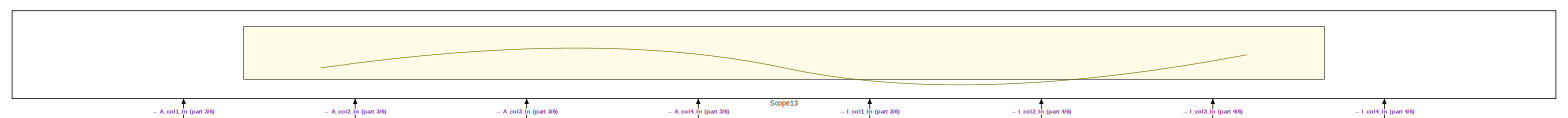
[diagram: root canvas - part 1/6, top left region]
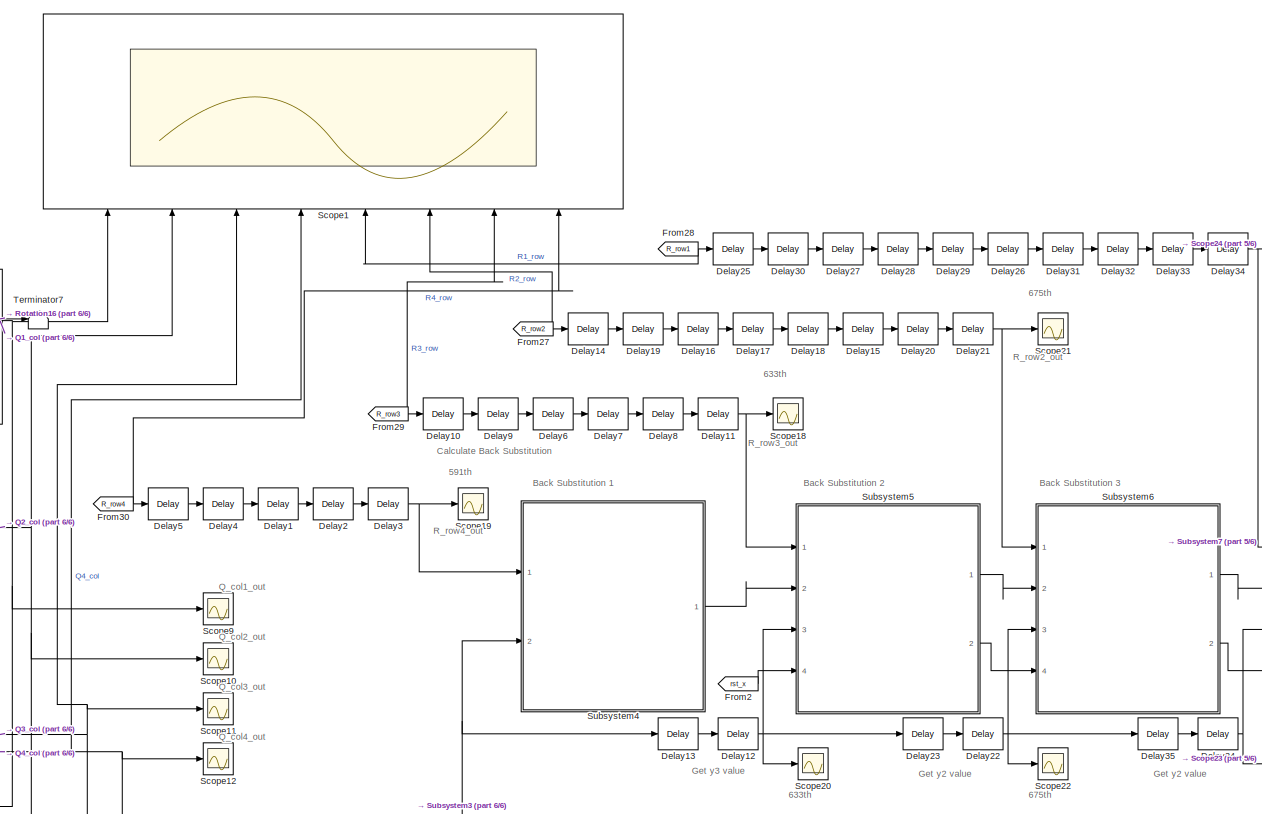
[diagram: root canvas - part 2/6, middle right region]
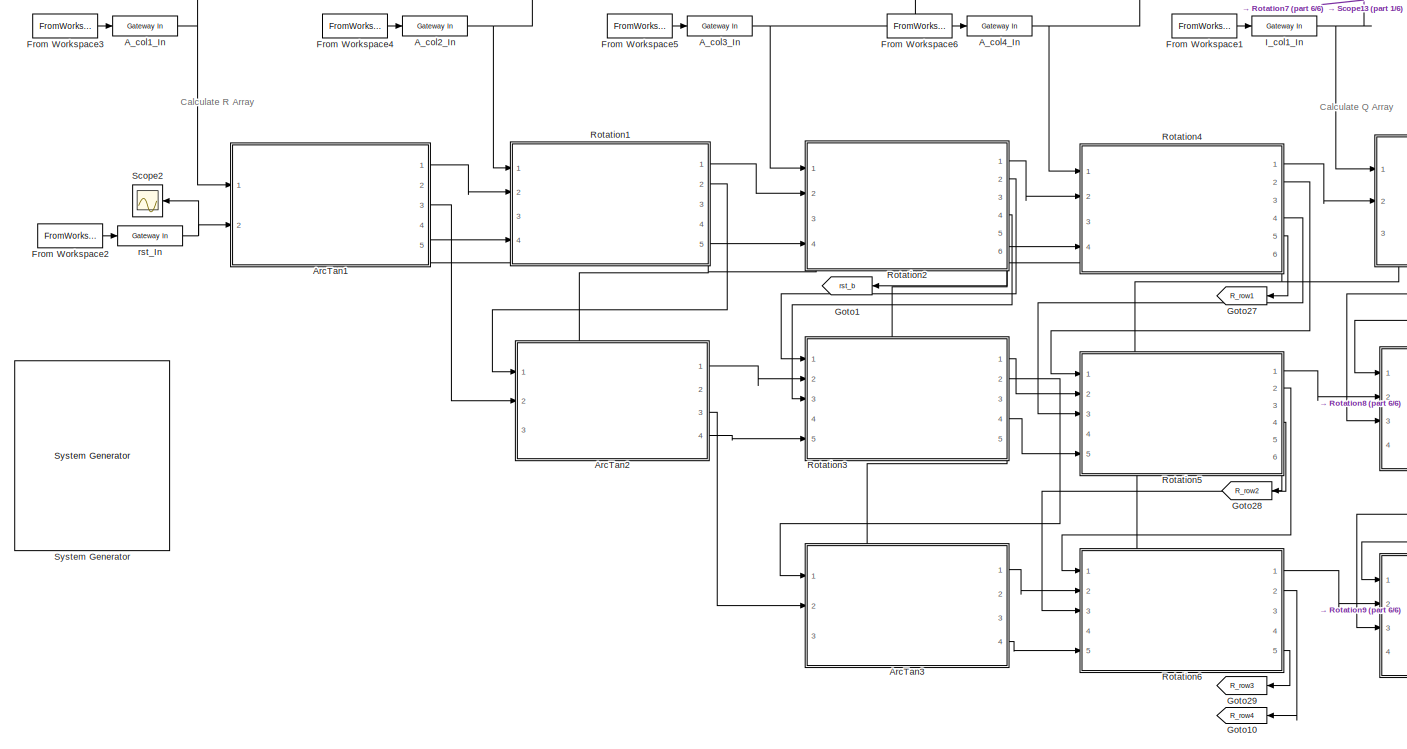
[diagram: root canvas - part 3/6, middle left region]
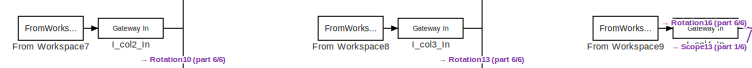
[diagram: root canvas - part 4/6, top center region]
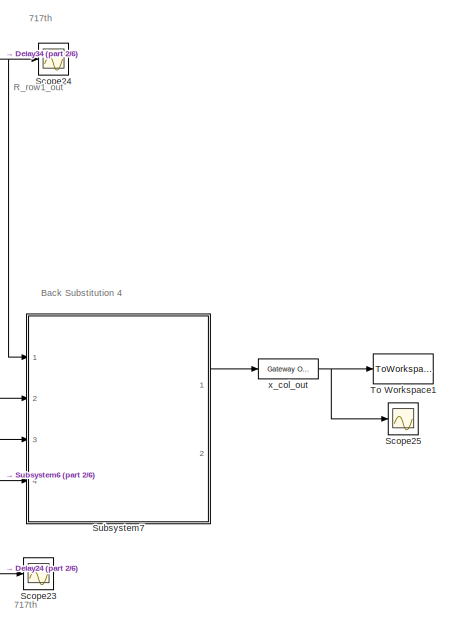
[diagram: root canvas - part 5/6, middle right region]
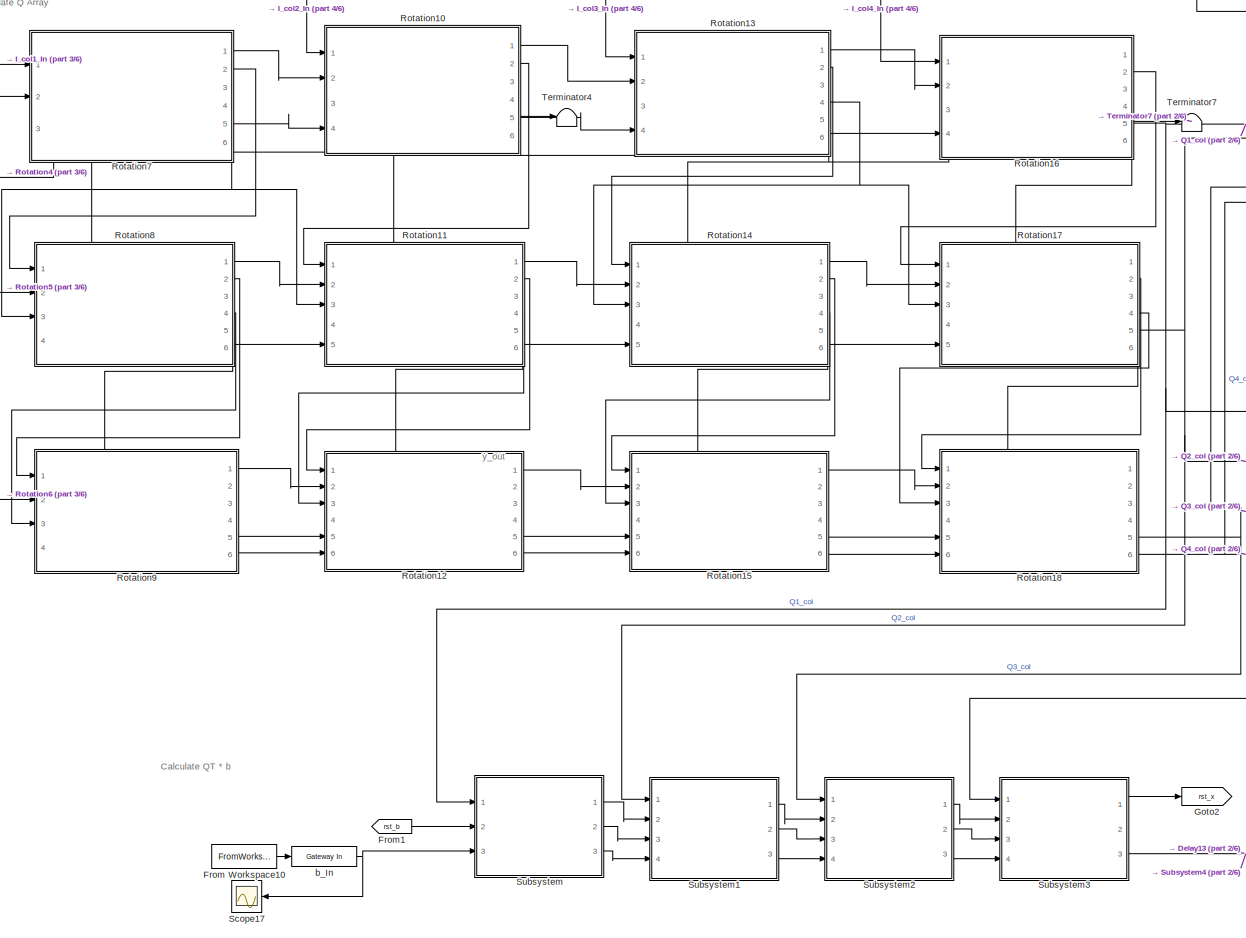
[diagram: root canvas - part 6/6, center side, full height]
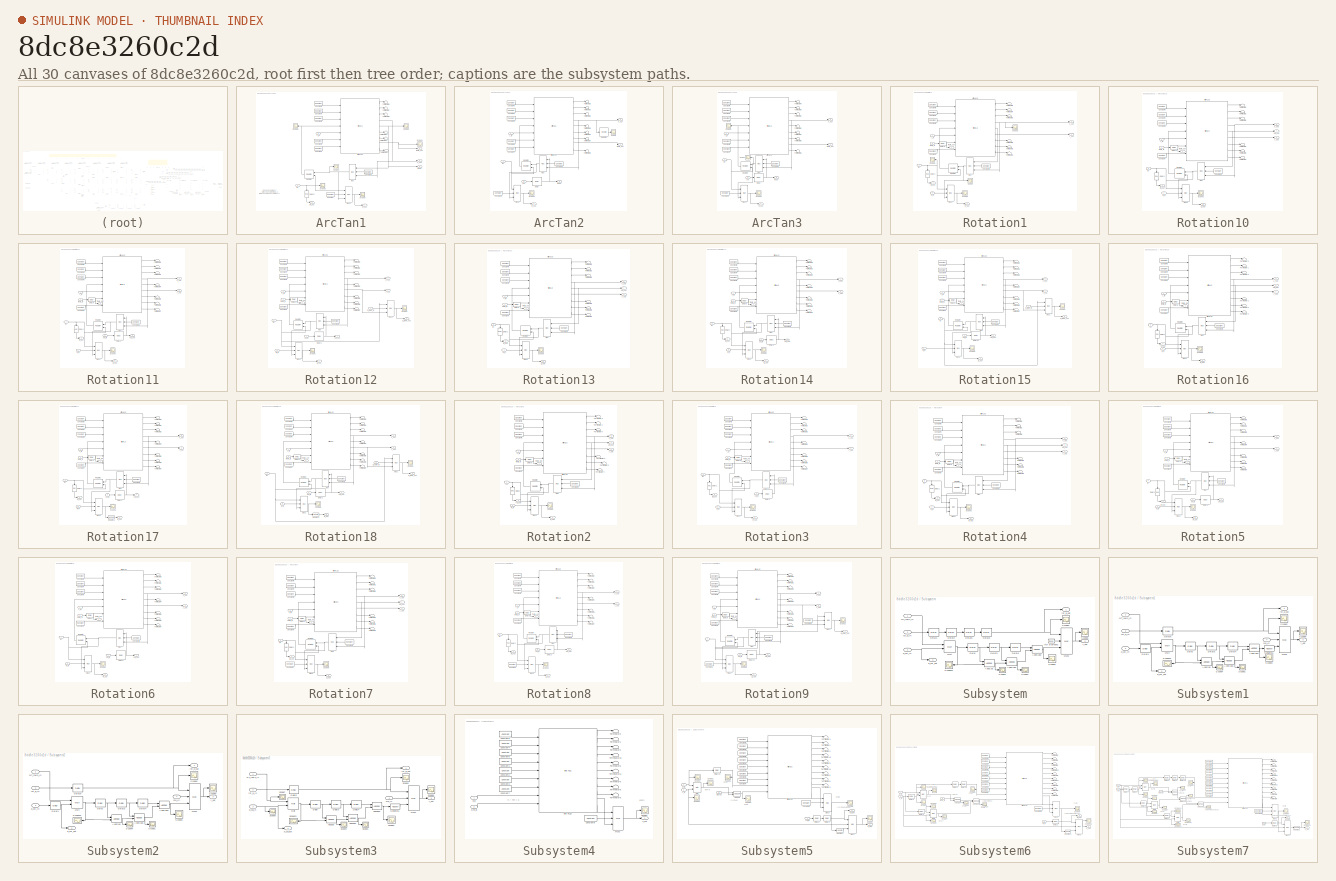
[diagram: thumbnail index - all 30 canvases of the model, root first then tree order]
MODEL slx_8dc8e3260c2d
KIND model
CONFIG AbsTol = auto
CONFIG EnableMultiTasking = off
CONFIG FixedStep = auto
CONFIG MaxStep = auto
CONFIG MinStep = auto
CONFIG RelTol = 1e-3
CONFIG SampleTimeConstraint = Unconstrained
CONFIG SolverName = VariableStepAuto
CONFIG StartTime = 0.0
CONFIG StopTime = 1000
BLOCK [Reference]  System Generator  REF=xbsIndex_r4/ System Generator
  AttributesFormatString = System\nGenerator
  Ports = []
  SourceBlock = xbsIndex_r4/ System Generator
  SourceType = Xilinx System Generator Block
  Tag = genX
  UserDataPersistent = on
BLOCK [Reference] A_col1_In  REF=hdlBasic/Gateway In
  Ports = [1, 1]
  SourceBlock = hdlBasic/Gateway In
  SourceType = Gateway In Block
BLOCK [Reference] A_col2_In  REF=hdlBasic/Gateway In
  Ports = [1, 1]
  SourceBlock = hdlBasic/Gateway In
  SourceType = Gateway In Block
BLOCK [Reference] A_col3_In  REF=hdlBasic/Gateway In
  Ports = [1, 1]
  SourceBlock = hdlBasic/Gateway In
  SourceType = Gateway In Block
BLOCK [Reference] A_col4_In  REF=hdlBasic/Gateway In
  Ports = [1, 1]
  SourceBlock = hdlBasic/Gateway In
  SourceType = Gateway In Block
BLOCK [SubSystem] ArcTan1
  PortSchema = {"entries":[{"content":{"sides":[{"content":{"connectorIds":["In1","In2"]},"type":"ConnectorPlacement.EquallySpacedRectSide","uuid":"caf108fa-2686-498d-a22a-9c5b9b2bbc42"},{"content":{"connectorIds":["Out1","Out2","Out3","Out4"],"side":"RIGHT"},"type":"ConnectorPlacement.EquallySpacedRectSide","uuid":"907814ff-b94e-448a-ba79-154ff3b88489"},{"content":{"connectorIds":[],"side":"TOP"},"type":"Connec...<+417ch>
  Ports = [2, 5]
  RequestExecContextInheritance = off
BLOCK [Reference] ArcTan1/Constant  REF=hdlBasic/Constant
  Ports = [0, 1]
  SourceBlock = hdlBasic/Constant
  SourceType = Constant Block Block
BLOCK [Reference] ArcTan1/Constant3  REF=hdlBasic/Constant
  NameLocation = top
  Ports = [0, 1]
  SourceBlock = hdlBasic/Constant
  SourceType = Constant Block Block
BLOCK [Reference] ArcTan1/Constant4  REF=hdlBasic/Constant
  Ports = [0, 1]
  SourceBlock = hdlBasic/Constant
  SourceType = Constant Block Block
BLOCK [Reference] ArcTan1/Constant5  REF=hdlBasic/Constant
  Ports = [0, 1]
  SourceBlock = hdlBasic/Constant
  SourceType = Constant Block Block
BLOCK [Reference] ArcTan1/Constant6  REF=hdlBasic/Constant
  Ports = [0, 1]
  SourceBlock = hdlBasic/Constant
  SourceType = Constant Block Block
BLOCK [Reference] ArcTan1/Constant7  REF=hdlBasic/Constant
  Ports = [0, 1]
  SourceBlock = hdlBasic/Constant
  SourceType = Constant Block Block
BLOCK [Reference] ArcTan1/Constant8  REF=hdlBasic/Constant
  Ports = [0, 1]
  SourceBlock = hdlBasic/Constant
  SourceType = Constant Block Block
BLOCK [Reference] ArcTan1/Delay5  REF=hdlBasic/Delay
  NameLocation = left
  Ports = [1, 1]
  SourceBlock = hdlBasic/Delay
  SourceType = Delay Block
BLOCK [Reference] ArcTan1/Mux  REF=hdlBasic/Mux
  NameLocation = top
  Ports = [3, 1]
  SourceBlock = hdlBasic/Mux
  SourceType = Bus Multiplexer Block
BLOCK [Reference] ArcTan1/Mux2  REF=hdlBasic/Mux
  Ports = [3, 1]
  SourceBlock = hdlBasic/Mux
  SourceType = Bus Multiplexer Block
BLOCK [Outport] ArcTan1/R_out
  Port = 4
BLOCK [Reference] ArcTan1/Register  REF=hdlBasic/Register
  NameLocation = top
  Ports = [2, 1]
  SourceBlock = hdlBasic/Register
  SourceType = Register Block
BLOCK [Scope] ArcTan1/Scope1
  Floating = off
  NumInputPorts = 1
  Ports = [1]
  ScopeSpecificationString = Simulink.scopes.TimeScopeBlockCfg('CurrentConfiguration', extmgr.ConfigurationSet(extmgr.Configuration('Core','General UI',true),extmgr.Configuration('Core','Source UI',true),extmgr.Configuration('Sources','WiredSimulink',true,'DataLoggingVariableName','ScopeData11'),extmgr.Configuration('Visuals','Time Domain',true,'SerializedDisplays',{struct('MinYLimReal','-0.125','MaxYLimReal','1.125','YLabelR...<+1408ch>
BLOCK [Scope] ArcTan1/Scope2
  Floating = off
  NumInputPorts = 1
  Ports = [1]
  ScopeSpecificationString = Simulink.scopes.TimeScopeBlockCfg('CurrentConfiguration', extmgr.ConfigurationSet(extmgr.Configuration('Core','General UI',true),extmgr.Configuration('Core','Source UI',true),extmgr.Configuration('Sources','WiredSimulink',true,'DataLoggingVariableName','ScopeData12'),extmgr.Configuration('Visuals','Time Domain',true,'SerializedDisplays',{struct('MinYLimReal','-1.00000','MaxYLimReal','1.00000','YLa...<+1372ch>
BLOCK [Scope] ArcTan1/Scope3
  Floating = off
  NumInputPorts = 1
  Ports = [1]
  ScopeSpecificationString = Simulink.scopes.TimeScopeBlockCfg('CurrentConfiguration', extmgr.ConfigurationSet(extmgr.Configuration('Core','General UI',true),extmgr.Configuration('Core','Source UI',true),extmgr.Configuration('Sources','WiredSimulink',true,'DataLoggingVariableName','ScopeData13'),extmgr.Configuration('Visuals','Time Domain',true,'SerializedDisplays',{struct('MinYLimReal','-0.125','MaxYLimReal','1.22693','YLabe...<+1408ch>
BLOCK [Scope] ArcTan1/Scope4
  Floating = off
  NameLocation = top
  NumInputPorts = 1
  Ports = [1]
  ScopeSpecificationString = Simulink.scopes.TimeScopeBlockCfg('CurrentConfiguration', extmgr.ConfigurationSet(extmgr.Configuration('Core','General UI',true),extmgr.Configuration('Core','Source UI',true),extmgr.Configuration('Sources','WiredSimulink',true,'DataLoggingVariableName','ScopeData14'),extmgr.Configuration('Visuals','Time Domain',true,'SerializedDisplays',{struct('MinYLimReal','-0.125','MaxYLimReal','1.125','YLabelR...<+1404ch>
BLOCK [Scope] ArcTan1/Scope5
  Floating = off
  NumInputPorts = 1
  Ports = [1]
  ScopeSpecificationString = Simulink.scopes.TimeScopeBlockCfg('CurrentConfiguration', extmgr.ConfigurationSet(extmgr.Configuration('Core','General UI',true),extmgr.Configuration('Core','Source UI',true),extmgr.Configuration('Sources','WiredSimulink',true,'DataLoggingVariableName','ScopeData4'),extmgr.Configuration('Visuals','Time Domain',true,'SerializedDisplays',{struct('MinYLimReal','-0.02475','MaxYLimReal','0.45492','YLab...<+1411ch>
BLOCK [Scope] ArcTan1/Scope6
  Floating = off
  NumInputPorts = 1
  Ports = [1]
  ScopeSpecificationString = Simulink.scopes.TimeScopeBlockCfg('CurrentConfiguration', extmgr.ConfigurationSet(extmgr.Configuration('Core','General UI',true),extmgr.Configuration('Core','Source UI',true),extmgr.Configuration('Sources','WiredSimulink',true,'DataLoggingVariableName','ScopeData5'),extmgr.Configuration('Visuals','Time Domain',true,'SerializedDisplays',{struct('MinYLimReal','0.02734','MaxYLimReal','0.14491','YLabe...<+1409ch>
BLOCK [Terminator] ArcTan1/Terminator10
BLOCK [Terminator] ArcTan1/Terminator11
BLOCK [Terminator] ArcTan1/Terminator12
BLOCK [Terminator] ArcTan1/Terminator6
BLOCK [Terminator] ArcTan1/Terminator7
BLOCK [Terminator] ArcTan1/Terminator8
BLOCK [Reference] ArcTan1/Vitis HLS2  REF=hdlBasic/Vitis HLS
  Ports = [7, 9]
  SourceBlock = hdlBasic/Vitis HLS
  SourceType = Xilinx High Level Synthesis Block
BLOCK [Outport] ArcTan1/ready
  Port = 3
BLOCK [Inport] ArcTan1/rst
  Port = 2
BLOCK [Outport] ArcTan1/rst_out
  Port = 5
BLOCK [Outport] ArcTan1/theta_out
BLOCK [Outport] ArcTan1/x_out
  Port = 2
BLOCK [Inport] ArcTan1/y_in
BLOCK [SubSystem] ArcTan2
  Ports = [3, 4]
  RequestExecContextInheritance = off
BLOCK [Reference] ArcTan2/Constant1  REF=hdlBasic/Constant
  Ports = [0, 1]
  SourceBlock = hdlBasic/Constant
  SourceType = Constant Block Block
BLOCK [Reference] ArcTan2/Constant3  REF=hdlBasic/Constant
  NameLocation = top
  Ports = [0, 1]
  SourceBlock = hdlBasic/Constant
  SourceType = Constant Block Block
BLOCK [Reference] ArcTan2/Constant4  REF=hdlBasic/Constant
  Ports = [0, 1]
  SourceBlock = hdlBasic/Constant
  SourceType = Constant Block Block
BLOCK [Reference] ArcTan2/Constant5  REF=hdlBasic/Constant
  Ports = [0, 1]
  SourceBlock = hdlBasic/Constant
  SourceType = Constant Block Block
BLOCK [Reference] ArcTan2/Constant6  REF=hdlBasic/Constant
  Ports = [0, 1]
  SourceBlock = hdlBasic/Constant
  SourceType = Constant Block Block
BLOCK [Reference] ArcTan2/Constant7  REF=hdlBasic/Constant
  Ports = [0, 1]
  SourceBlock = hdlBasic/Constant
  SourceType = Constant Block Block
BLOCK [Reference] ArcTan2/Constant8  REF=hdlBasic/Constant
  Ports = [0, 1]
  SourceBlock = hdlBasic/Constant
  SourceType = Constant Block Block
BLOCK [Reference] ArcTan2/Delay  REF=hdlBasic/Delay
  Ports = [1, 1]
  SourceBlock = hdlBasic/Delay
  SourceType = Delay Block
BLOCK [Reference] ArcTan2/Mux  REF=hdlBasic/Mux
  NameLocation = top
  Ports = [3, 1]
  SourceBlock = hdlBasic/Mux
  SourceType = Bus Multiplexer Block
BLOCK [Reference] ArcTan2/Mux2  REF=hdlBasic/Mux
  Ports = [3, 1]
  SourceBlock = hdlBasic/Mux
  SourceType = Bus Multiplexer Block
BLOCK [Reference] ArcTan2/Negate1  REF=hdlBasic/Negate
  Ports = [1, 1]
  SourceBlock = hdlBasic/Negate
  SourceType = Negate Block Block
BLOCK [Outport] ArcTan2/R_out
  Port = 4
BLOCK [Reference] ArcTan2/Register  REF=hdlBasic/Register
  NameLocation = top
  Ports = [2, 1]
  SourceBlock = hdlBasic/Register
  SourceType = Register Block
BLOCK [Scope] ArcTan2/Scope
  Floating = off
  NumInputPorts = 1
  Ports = [1]
  ScopeSpecificationString = Simulink.scopes.TimeScopeBlockCfg('CurrentConfiguration', extmgr.ConfigurationSet(extmgr.Configuration('Core','General UI',true),extmgr.Configuration('Core','Source UI',true),extmgr.Configuration('Sources','WiredSimulink',true,'DataLoggingVariableName','ScopeData3'),extmgr.Configuration('Visuals','Time Domain',true,'SerializedDisplays',{struct('MinYLimReal','-1.12267','MaxYLimReal','0.12474','YLab...<+1385ch>
BLOCK [Scope] ArcTan2/Scope6
  Floating = off
  NumInputPorts = 1
  Ports = [1]
  ScopeSpecificationString = Simulink.scopes.TimeScopeBlockCfg('CurrentConfiguration', extmgr.ConfigurationSet(extmgr.Configuration('Core','General UI',true),extmgr.Configuration('Core','Source UI',true),extmgr.Configuration('Sources','WiredSimulink',true,'DataLoggingVariableName','ScopeData14'),extmgr.Configuration('Visuals','Time Domain',true,'SerializedDisplays',{struct('MinYLimReal','-1.22693','MaxYLimReal','1.22693','YLa...<+1412ch>
BLOCK [Terminator] ArcTan2/Terminator1
BLOCK [Terminator] ArcTan2/Terminator2
BLOCK [Terminator] ArcTan2/Terminator3
BLOCK [Terminator] ArcTan2/Terminator4
BLOCK [Terminator] ArcTan2/Terminator5
BLOCK [Terminator] ArcTan2/Terminator6
BLOCK [Terminator] ArcTan2/Terminator7
BLOCK [Reference] ArcTan2/Vitis HLS2  REF=hdlBasic/Vitis HLS
  Ports = [7, 9]
  SourceBlock = hdlBasic/Vitis HLS
  SourceType = Xilinx High Level Synthesis Block
BLOCK [Outport] ArcTan2/ready
  Port = 3
BLOCK [Inport] ArcTan2/rst
  Port = 3
BLOCK [Inport] ArcTan2/sel
  Port = 2
BLOCK [Outport] ArcTan2/theta_out
BLOCK [Outport] ArcTan2/x_out
  Port = 2
BLOCK [Inport] ArcTan2/y_in
BLOCK [SubSystem] ArcTan3
  Ports = [3, 4]
  RequestExecContextInheritance = off
BLOCK [Reference] ArcTan3/Constant1  REF=hdlBasic/Constant
  Ports = [0, 1]
  SourceBlock = hdlBasic/Constant
  SourceType = Constant Block Block
BLOCK [Reference] ArcTan3/Constant3  REF=hdlBasic/Constant
  NameLocation = top
  Ports = [0, 1]
  SourceBlock = hdlBasic/Constant
  SourceType = Constant Block Block
BLOCK [Reference] ArcTan3/Constant4  REF=hdlBasic/Constant
  Ports = [0, 1]
  SourceBlock = hdlBasic/Constant
  SourceType = Constant Block Block
BLOCK [Reference] ArcTan3/Constant5  REF=hdlBasic/Constant
  Ports = [0, 1]
  SourceBlock = hdlBasic/Constant
  SourceType = Constant Block Block
BLOCK [Reference] ArcTan3/Constant6  REF=hdlBasic/Constant
  Ports = [0, 1]
  SourceBlock = hdlBasic/Constant
  SourceType = Constant Block Block
BLOCK [Reference] ArcTan3/Constant7  REF=hdlBasic/Constant
  Ports = [0, 1]
  SourceBlock = hdlBasic/Constant
  SourceType = Constant Block Block
BLOCK [Reference] ArcTan3/Constant8  REF=hdlBasic/Constant
  Ports = [0, 1]
  SourceBlock = hdlBasic/Constant
  SourceType = Constant Block Block
BLOCK [Reference] ArcTan3/Delay  REF=hdlBasic/Delay
  Ports = [1, 1]
  SourceBlock = hdlBasic/Delay
  SourceType = Delay Block
BLOCK [Reference] ArcTan3/Mux  REF=hdlBasic/Mux
  NameLocation = top
  Ports = [3, 1]
  SourceBlock = hdlBasic/Mux
  SourceType = Bus Multiplexer Block
BLOCK [Reference] ArcTan3/Mux2  REF=hdlBasic/Mux
  Ports = [3, 1]
  SourceBlock = hdlBasic/Mux
  SourceType = Bus Multiplexer Block
BLOCK [Outport] ArcTan3/R_out
  Port = 4
BLOCK [Reference] ArcTan3/Register  REF=hdlBasic/Register
  NameLocation = top
  Ports = [2, 1]
  SourceBlock = hdlBasic/Register
  SourceType = Register Block
BLOCK [Scope] ArcTan3/Scope
  Floating = off
  NameLocation = top
  NumInputPorts = 1
  Ports = [1]
  ScopeSpecificationString = Simulink.scopes.TimeScopeBlockCfg('CurrentConfiguration', extmgr.ConfigurationSet(extmgr.Configuration('Core','General UI',true),extmgr.Configuration('Core','Source UI',true),extmgr.Configuration('Sources','WiredSimulink',true,'DataLoggingVariableName','ScopeData1'),extmgr.Configuration('Visuals','Time Domain',true,'SerializedDisplays',{struct('MinYLimReal','-0.0515','MaxYLimReal','0.46349','YLabe...<+1360ch>
BLOCK [Scope] ArcTan3/Scope1
  Floating = off
  NameLocation = top
  NumInputPorts = 1
  Ports = [1]
  ScopeSpecificationString = Simulink.scopes.TimeScopeBlockCfg('CurrentConfiguration', extmgr.ConfigurationSet(extmgr.Configuration('Core','General UI',true),extmgr.Configuration('Core','Source UI',true),extmgr.Configuration('Sources','WiredSimulink',true,'DataLoggingVariableName','ScopeData2'),extmgr.Configuration('Visuals','Time Domain',true,'SerializedDisplays',{struct('MinYLimReal','-0.0249','MaxYLimReal','0.22412','YLabe...<+1365ch>
BLOCK [Scope] ArcTan3/Scope6
  Floating = off
  NumInputPorts = 1
  Ports = [1]
  ScopeSpecificationString = Simulink.scopes.TimeScopeBlockCfg('CurrentConfiguration', extmgr.ConfigurationSet(extmgr.Configuration('Core','General UI',true),extmgr.Configuration('Core','Source UI',true),extmgr.Configuration('Sources','WiredSimulink',true,'DataLoggingVariableName','ScopeData17'),extmgr.Configuration('Visuals','Time Domain',true,'SerializedDisplays',{struct('MinYLimReal','-1.22693','MaxYLimReal','1.22693','YLa...<+1412ch>
BLOCK [Terminator] ArcTan3/Terminator1
BLOCK [Terminator] ArcTan3/Terminator2
BLOCK [Terminator] ArcTan3/Terminator3
BLOCK [Terminator] ArcTan3/Terminator4
BLOCK [Terminator] ArcTan3/Terminator5
BLOCK [Terminator] ArcTan3/Terminator6
BLOCK [Terminator] ArcTan3/Terminator7
BLOCK [Reference] ArcTan3/Vitis HLS2  REF=hdlBasic/Vitis HLS
  Ports = [7, 9]
  SourceBlock = hdlBasic/Vitis HLS
  SourceType = Xilinx High Level Synthesis Block
BLOCK [Outport] ArcTan3/ready
  Port = 3
BLOCK [Inport] ArcTan3/rst
  Port = 3
BLOCK [Inport] ArcTan3/sel
  Port = 2
BLOCK [Outport] ArcTan3/theta_out
BLOCK [Outport] ArcTan3/x_out
  Port = 2
BLOCK [Inport] ArcTan3/y_in
BLOCK [Reference] Delay1  REF=hdlBasic/Delay
  Ports = [1, 1]
  SourceBlock = hdlBasic/Delay
  SourceType = Delay Block
BLOCK [Reference] Delay10  REF=hdlBasic/Delay
  Ports = [1, 1]
  SourceBlock = hdlBasic/Delay
  SourceType = Delay Block
BLOCK [Reference] Delay11  REF=hdlBasic/Delay
  Ports = [1, 1]
  SourceBlock = hdlBasic/Delay
  SourceType = Delay Block
BLOCK [Reference] Delay12  REF=hdlBasic/Delay
  Ports = [1, 1]
  SourceBlock = hdlBasic/Delay
  SourceType = Delay Block
BLOCK [Reference] Delay13  REF=hdlBasic/Delay
  Ports = [1, 1]
  SourceBlock = hdlBasic/Delay
  SourceType = Delay Block
BLOCK [Reference] Delay14  REF=hdlBasic/Delay
  Ports = [1, 1]
  SourceBlock = hdlBasic/Delay
  SourceType = Delay Block
BLOCK [Reference] Delay15  REF=hdlBasic/Delay
  Ports = [1, 1]
  SourceBlock = hdlBasic/Delay
  SourceType = Delay Block
BLOCK [Reference] Delay16  REF=hdlBasic/Delay
  Ports = [1, 1]
  SourceBlock = hdlBasic/Delay
  SourceType = Delay Block
BLOCK [Reference] Delay17  REF=hdlBasic/Delay
  Ports = [1, 1]
  SourceBlock = hdlBasic/Delay
  SourceType = Delay Block
BLOCK [Reference] Delay18  REF=hdlBasic/Delay
  Ports = [1, 1]
  SourceBlock = hdlBasic/Delay
  SourceType = Delay Block
BLOCK [Reference] Delay19  REF=hdlBasic/Delay
  Ports = [1, 1]
  SourceBlock = hdlBasic/Delay
  SourceType = Delay Block
BLOCK [Reference] Delay2  REF=hdlBasic/Delay
  Ports = [1, 1]
  SourceBlock = hdlBasic/Delay
  SourceType = Delay Block
BLOCK [Reference] Delay20  REF=hdlBasic/Delay
  Ports = [1, 1]
  SourceBlock = hdlBasic/Delay
  SourceType = Delay Block
BLOCK [Reference] Delay21  REF=hdlBasic/Delay
  Ports = [1, 1]
  SourceBlock = hdlBasic/Delay
  SourceType = Delay Block
BLOCK [Reference] Delay22  REF=hdlBasic/Delay
  Ports = [1, 1]
  SourceBlock = hdlBasic/Delay
  SourceType = Delay Block
BLOCK [Reference] Delay23  REF=hdlBasic/Delay
  Ports = [1, 1]
  SourceBlock = hdlBasic/Delay
  SourceType = Delay Block
BLOCK [Reference] Delay24  REF=hdlBasic/Delay
  Ports = [1, 1]
  SourceBlock = hdlBasic/Delay
  SourceType = Delay Block
BLOCK [Reference] Delay25  REF=hdlBasic/Delay
  Ports = [1, 1]
  SourceBlock = hdlBasic/Delay
  SourceType = Delay Block
BLOCK [Reference] Delay26  REF=hdlBasic/Delay
  Ports = [1, 1]
  SourceBlock = hdlBasic/Delay
  SourceType = Delay Block
BLOCK [Reference] Delay27  REF=hdlBasic/Delay
  Ports = [1, 1]
  SourceBlock = hdlBasic/Delay
  SourceType = Delay Block
BLOCK [Reference] Delay28  REF=hdlBasic/Delay
  Ports = [1, 1]
  SourceBlock = hdlBasic/Delay
  SourceType = Delay Block
BLOCK [Reference] Delay29  REF=hdlBasic/Delay
  Ports = [1, 1]
  SourceBlock = hdlBasic/Delay
  SourceType = Delay Block
BLOCK [Reference] Delay3  REF=hdlBasic/Delay
  Ports = [1, 1]
  SourceBlock = hdlBasic/Delay
  SourceType = Delay Block
BLOCK [Reference] Delay30  REF=hdlBasic/Delay
  Ports = [1, 1]
  SourceBlock = hdlBasic/Delay
  SourceType = Delay Block
BLOCK [Reference] Delay31  REF=hdlBasic/Delay
  Ports = [1, 1]
  SourceBlock = hdlBasic/Delay
  SourceType = Delay Block
BLOCK [Reference] Delay32  REF=hdlBasic/Delay
  Ports = [1, 1]
  SourceBlock = hdlBasic/Delay
  SourceType = Delay Block
BLOCK [Reference] Delay33  REF=hdlBasic/Delay
  Ports = [1, 1]
  SourceBlock = hdlBasic/Delay
  SourceType = Delay Block
BLOCK [Reference] Delay34  REF=hdlBasic/Delay
  Ports = [1, 1]
  SourceBlock = hdlBasic/Delay
  SourceType = Delay Block
BLOCK [Reference] Delay35  REF=hdlBasic/Delay
  Ports = [1, 1]
  SourceBlock = hdlBasic/Delay
  SourceType = Delay Block
BLOCK [Reference] Delay4  REF=hdlBasic/Delay
  Ports = [1, 1]
  SourceBlock = hdlBasic/Delay
  SourceType = Delay Block
BLOCK [Reference] Delay5  REF=hdlBasic/Delay
  Ports = [1, 1]
  SourceBlock = hdlBasic/Delay
  SourceType = Delay Block
BLOCK [Reference] Delay6  REF=hdlBasic/Delay
  Ports = [1, 1]
  SourceBlock = hdlBasic/Delay
  SourceType = Delay Block
BLOCK [Reference] Delay7  REF=hdlBasic/Delay
  Ports = [1, 1]
  SourceBlock = hdlBasic/Delay
  SourceType = Delay Block
BLOCK [Reference] Delay8  REF=hdlBasic/Delay
  Ports = [1, 1]
  SourceBlock = hdlBasic/Delay
  SourceType = Delay Block
BLOCK [Reference] Delay9  REF=hdlBasic/Delay
  Ports = [1, 1]
  SourceBlock = hdlBasic/Delay
  SourceType = Delay Block
BLOCK [FromWorkspace] From Workspace1
  VariableName = I_col1
BLOCK [FromWorkspace] From Workspace10
  VariableName = b_col
BLOCK [FromWorkspace] From Workspace2
  VariableName = rst
BLOCK [FromWorkspace] From Workspace3
  VariableName = A_col1
BLOCK [FromWorkspace] From Workspace4
  VariableName = A_col2
BLOCK [FromWorkspace] From Workspace5
  VariableName = A_col3
BLOCK [FromWorkspace] From Workspace6
  VariableName = A_col4
BLOCK [FromWorkspace] From Workspace7
  VariableName = I_col2
BLOCK [FromWorkspace] From Workspace8
  VariableName = I_col3
BLOCK [FromWorkspace] From Workspace9
  VariableName = I_col4
BLOCK [From] From1
  GotoTag = rst_b
BLOCK [From] From2
  GotoTag = rst_x
BLOCK [From] From27
  GotoTag = R_row2
BLOCK [From] From28
  GotoTag = R_row1
BLOCK [From] From29
  GotoTag = R_row3
BLOCK [From] From30
  GotoTag = R_row4
BLOCK [Goto] Goto1
  GotoTag = rst_b
  NameLocation = top
BLOCK [Goto] Goto10
  GotoTag = R_row4
  NameLocation = top
BLOCK [Goto] Goto2
  GotoTag = rst_x
BLOCK [Goto] Goto27
  GotoTag = R_row1
  NameLocation = top
BLOCK [Goto] Goto28
  GotoTag = R_row2
  NameLocation = top
BLOCK [Goto] Goto29
  GotoTag = R_row3
  NameLocation = top
BLOCK [Reference] I_col1_In  REF=hdlBasic/Gateway In
  Ports = [1, 1]
  SourceBlock = hdlBasic/Gateway In
  SourceType = Gateway In Block
BLOCK [Reference] I_col2_In  REF=hdlBasic/Gateway In
  Ports = [1, 1]
  SourceBlock = hdlBasic/Gateway In
  SourceType = Gateway In Block
BLOCK [Reference] I_col3_In  REF=hdlBasic/Gateway In
  Ports = [1, 1]
  SourceBlock = hdlBasic/Gateway In
  SourceType = Gateway In Block
BLOCK [Reference] I_col4_In  REF=hdlBasic/Gateway In
  Ports = [1, 1]
  SourceBlock = hdlBasic/Gateway In
  SourceType = Gateway In Block
BLOCK [SubSystem] Rotation1
  PortSchema = {"entries":[{"content":{"sides":[{"content":{"connectorIds":["In1","In2","In3","In4"]},"type":"ConnectorPlacement.EquallySpacedRectSide","uuid":"c3e45f34-1196-45a4-bcee-69f3d7240640"},{"content":{"connectorIds":["Out1","Out2","Out3","Out4"],"side":"RIGHT"},"type":"ConnectorPlacement.EquallySpacedRectSide","uuid":"79e1b465-033e-4299-96e2-1b0cd35cf0c2"},{"content":{"connectorIds":[],"side":"TOP"},"t...<+429ch>
  Ports = [4, 5]
  RequestExecContextInheritance = off
BLOCK [Reference] Rotation1/Constant3  REF=hdlBasic/Constant
  NameLocation = top
  Ports = [0, 1]
  SourceBlock = hdlBasic/Constant
  SourceType = Constant Block Block
BLOCK [Reference] Rotation1/Constant4  REF=hdlBasic/Constant
  Ports = [0, 1]
  SourceBlock = hdlBasic/Constant
  SourceType = Constant Block Block
BLOCK [Reference] Rotation1/Constant5  REF=hdlBasic/Constant
  Ports = [0, 1]
  SourceBlock = hdlBasic/Constant
  SourceType = Constant Block Block
BLOCK [Reference] Rotation1/Constant6  REF=hdlBasic/Constant
  Ports = [0, 1]
  SourceBlock = hdlBasic/Constant
  SourceType = Constant Block Block
BLOCK [Reference] Rotation1/Constant7  REF=hdlBasic/Constant
  Ports = [0, 1]
  SourceBlock = hdlBasic/Constant
  SourceType = Constant Block Block
BLOCK [Reference] Rotation1/Delay1  REF=hdlBasic/Delay
  NameLocation = left
  Ports = [1, 1]
  SourceBlock = hdlBasic/Delay
  SourceType = Delay Block
BLOCK [Reference] Rotation1/Delay5  REF=hdlBasic/Delay
  Ports = [1, 1]
  SourceBlock = hdlBasic/Delay
  SourceType = Delay Block
BLOCK [Reference] Rotation1/Mux  REF=hdlBasic/Mux
  NameLocation = top
  Ports = [3, 1]
  SourceBlock = hdlBasic/Mux
  SourceType = Bus Multiplexer Block
BLOCK [Reference] Rotation1/Mux2  REF=hdlBasic/Mux
  Ports = [3, 1]
  SourceBlock = hdlBasic/Mux
  SourceType = Bus Multiplexer Block
BLOCK [Inport] Rotation1/R_in
  Port = 4
BLOCK [Outport] Rotation1/R_out
  Port = 4
BLOCK [Reference] Rotation1/Register  REF=hdlBasic/Register
  NameLocation = top
  Ports = [2, 1]
  SourceBlock = hdlBasic/Register
  SourceType = Register Block
BLOCK [Scope] Rotation1/Scope
  Floating = off
  NumInputPorts = 1
  Ports = [1]
  ScopeSpecificationString = Simulink.scopes.TimeScopeBlockCfg('CurrentConfiguration', extmgr.ConfigurationSet(extmgr.Configuration('Core','General UI',true),extmgr.Configuration('Core','Source UI',true),extmgr.Configuration('Sources','WiredSimulink',true,'DataLoggingVariableName','ScopeData1'),extmgr.Configuration('Visuals','Time Domain',true,'SerializedDisplays',{struct('MinYLimReal','-1.01157','MaxYLimReal','0.1124','YLabe...<+1360ch>
BLOCK [Scope] Rotation1/Scope1
  Floating = off
  NameLocation = top
  NumInputPorts = 1
  Ports = [1]
  ScopeSpecificationString = Simulink.scopes.TimeScopeBlockCfg('CurrentConfiguration', extmgr.ConfigurationSet(extmgr.Configuration('Core','General UI',true),extmgr.Configuration('Core','Source UI',true),extmgr.Configuration('Sources','WiredSimulink',true,'DataLoggingVariableName','ScopeData7'),extmgr.Configuration('Visuals','Time Domain',true,'SerializedDisplays',{struct('MinYLimReal','-1.22693','MaxYLimReal','0.10234','YLab...<+1411ch>
BLOCK [Scope] Rotation1/Scope2
  Floating = off
  NumInputPorts = 1
  Ports = [1]
  ScopeSpecificationString = Simulink.scopes.TimeScopeBlockCfg('CurrentConfiguration', extmgr.ConfigurationSet(extmgr.Configuration('Core','General UI',true),extmgr.Configuration('Core','Source UI',true),extmgr.Configuration('Sources','WiredSimulink',true,'DataLoggingVariableName','ScopeData8'),extmgr.Configuration('Visuals','Time Domain',true,'SerializedDisplays',{struct('MinYLimReal','-1.22693','MaxYLimReal','0.10234','YLab...<+1419ch>
BLOCK [Scope] Rotation1/Scope6
  Floating = off
  NumInputPorts = 1
  Ports = [1]
  ScopeSpecificationString = Simulink.scopes.TimeScopeBlockCfg('CurrentConfiguration', extmgr.ConfigurationSet(extmgr.Configuration('Core','General UI',true),extmgr.Configuration('Core','Source UI',true),extmgr.Configuration('Sources','WiredSimulink',true,'DataLoggingVariableName','ScopeData6'),extmgr.Configuration('Visuals','Time Domain',true,'SerializedDisplays',{struct('MinYLimReal','-1.22693','MaxYLimReal','1.22693','YLab...<+1411ch>
BLOCK [Terminator] Rotation1/Terminator1
BLOCK [Terminator] Rotation1/Terminator2
BLOCK [Terminator] Rotation1/Terminator3
BLOCK [Terminator] Rotation1/Terminator4
BLOCK [Terminator] Rotation1/Terminator5
BLOCK [Terminator] Rotation1/Terminator6
BLOCK [Reference] Rotation1/Vitis HLS2  REF=hdlBasic/Vitis HLS
  Ports = [7, 9]
  SourceBlock = hdlBasic/Vitis HLS
  SourceType = Xilinx High Level Synthesis Block
BLOCK [Inport] Rotation1/rst
  Port = 3
BLOCK [Outport] Rotation1/rst_out
  Port = 5
BLOCK [Inport] Rotation1/theta_in
  Port = 2
BLOCK [Outport] Rotation1/theta_out
BLOCK [Outport] Rotation1/x_out
  Port = 3
BLOCK [Inport] Rotation1/y_in
BLOCK [Outport] Rotation1/y_out
  Port = 2
BLOCK [SubSystem] Rotation10
  PortSchema = {"entries":[{"content":{"sides":[{"content":{"connectorIds":["In1","In2","In3","In4"]},"type":"ConnectorPlacement.EquallySpacedRectSide","uuid":"068d33f8-cdb2-46c3-8301-e7e31b8e2d88"},{"content":{"connectorIds":["Out1","Out2","Out3","Out4","Out5"],"side":"RIGHT"},"type":"ConnectorPlacement.EquallySpacedRectSide","uuid":"83214df4-d8af-401f-bd94-7f29e76d3f14"},{"content":{"connectorIds":[],"side":"T...<+436ch>  <repeated x6 — deduplicated; at blocks: Rotation10, Rotation13, Rotation16, Rotation2, Rotation4, Rotation8>
  Ports = [4, 6]
  RequestExecContextInheritance = off
BLOCK [Reference] Rotation10/Constant3  REF=hdlBasic/Constant
  NameLocation = top
  Ports = [0, 1]
  SourceBlock = hdlBasic/Constant
  SourceType = Constant Block Block
BLOCK [Reference] Rotation10/Constant4  REF=hdlBasic/Constant
  Ports = [0, 1]
  SourceBlock = hdlBasic/Constant
  SourceType = Constant Block Block
BLOCK [Reference] Rotation10/Constant5  REF=hdlBasic/Constant
  Ports = [0, 1]
  SourceBlock = hdlBasic/Constant
  SourceType = Constant Block Block
BLOCK [Reference] Rotation10/Constant6  REF=hdlBasic/Constant
  Ports = [0, 1]
  SourceBlock = hdlBasic/Constant
  SourceType = Constant Block Block
BLOCK [Reference] Rotation10/Constant7  REF=hdlBasic/Constant
  Ports = [0, 1]
  SourceBlock = hdlBasic/Constant
  SourceType = Constant Block Block
BLOCK [Reference] Rotation10/Delay1  REF=hdlBasic/Delay
  NameLocation = left
  Ports = [1, 1]
  SourceBlock = hdlBasic/Delay
  SourceType = Delay Block
BLOCK [Reference] Rotation10/Delay5  REF=hdlBasic/Delay
  Ports = [1, 1]
  SourceBlock = hdlBasic/Delay
  SourceType = Delay Block
BLOCK [Reference] Rotation10/Mux  REF=hdlBasic/Mux
  NameLocation = top
  Ports = [3, 1]
  SourceBlock = hdlBasic/Mux
  SourceType = Bus Multiplexer Block
BLOCK [Reference] Rotation10/Mux2  REF=hdlBasic/Mux
  Ports = [3, 1]
  SourceBlock = hdlBasic/Mux
  SourceType = Bus Multiplexer Block
BLOCK [Inport] Rotation10/Q_in
  Port = 4
BLOCK [Outport] Rotation10/Q_out
  Port = 5
BLOCK [Reference] Rotation10/Register  REF=hdlBasic/Register
  NameLocation = top
  Ports = [2, 1]
  SourceBlock = hdlBasic/Register
  SourceType = Register Block
BLOCK [Scope] Rotation10/Scope6
  Floating = off
  NumInputPorts = 1
  Ports = [1]
  ScopeSpecificationString = Simulink.scopes.TimeScopeBlockCfg('CurrentConfiguration', extmgr.ConfigurationSet(extmgr.Configuration('Core','General UI',true),extmgr.Configuration('Core','Source UI',true),extmgr.Configuration('Sources','WiredSimulink',true,'DataLoggingVariableName','ScopeData12'),extmgr.Configuration('Visuals','Time Domain',true,'SerializedDisplays',{struct('MinYLimReal','-1.22693','MaxYLimReal','1.22693','YLa...<+1412ch>
BLOCK [Terminator] Rotation10/Terminator1
BLOCK [Terminator] Rotation10/Terminator2
BLOCK [Terminator] Rotation10/Terminator3
BLOCK [Terminator] Rotation10/Terminator4
BLOCK [Terminator] Rotation10/Terminator5
BLOCK [Terminator] Rotation10/Terminator6
BLOCK [Reference] Rotation10/Vitis HLS2  REF=hdlBasic/Vitis HLS
  Ports = [7, 9]
  SourceBlock = hdlBasic/Vitis HLS
  SourceType = Xilinx High Level Synthesis Block
BLOCK [Inport] Rotation10/rst
  Port = 3
BLOCK [Outport] Rotation10/rst_out
  Port = 6
BLOCK [Outport] Rotation10/sel_out
  Port = 4
BLOCK [Inport] Rotation10/theta_in
  Port = 2
BLOCK [Outport] Rotation10/theta_out
BLOCK [Outport] Rotation10/x_out
  Port = 3
BLOCK [Inport] Rotation10/y_in
BLOCK [Outport] Rotation10/y_out
  Port = 2
BLOCK [SubSystem] Rotation11
  PortSchema = {"entries":[{"content":{"sides":[{"content":{"connectorIds":["In1","In2","In3","In4","In5"]},"type":"ConnectorPlacement.EquallySpacedRectSide","uuid":"6b6527a3-8e8e-46a8-ba4c-353728d938d4"},{"content":{"connectorIds":["Out1","Out2","Out3","Out4","Out5"],"side":"RIGHT"},"type":"ConnectorPlacement.EquallySpacedRectSide","uuid":"57a7f6f1-c89c-4a9c-80a9-96f08cfe423f"},{"content":{"connectorIds":[],"si...<+442ch>  <repeated x4 — deduplicated; at blocks: Rotation11, Rotation14, Rotation17, Rotation5>
  Ports = [5, 6]
  RequestExecContextInheritance = off
BLOCK [Reference] Rotation11/Constant3  REF=hdlBasic/Constant
  NameLocation = top
  Ports = [0, 1]
  SourceBlock = hdlBasic/Constant
  SourceType = Constant Block Block
BLOCK [Reference] Rotation11/Constant4  REF=hdlBasic/Constant
  Ports = [0, 1]
  SourceBlock = hdlBasic/Constant
  SourceType = Constant Block Block
BLOCK [Reference] Rotation11/Constant5  REF=hdlBasic/Constant
  Ports = [0, 1]
  SourceBlock = hdlBasic/Constant
  SourceType = Constant Block Block
BLOCK [Reference] Rotation11/Constant6  REF=hdlBasic/Constant
  Ports = [0, 1]
  SourceBlock = hdlBasic/Constant
  SourceType = Constant Block Block
BLOCK [Reference] Rotation11/Constant7  REF=hdlBasic/Constant
  Ports = [0, 1]
  SourceBlock = hdlBasic/Constant
  SourceType = Constant Block Block
BLOCK [Reference] Rotation11/Delay1  REF=hdlBasic/Delay
  NameLocation = left
  Ports = [1, 1]
  SourceBlock = hdlBasic/Delay
  SourceType = Delay Block
BLOCK [Reference] Rotation11/Delay2  REF=hdlBasic/Delay
  Ports = [1, 1]
  SourceBlock = hdlBasic/Delay
  SourceType = Delay Block
BLOCK [Reference] Rotation11/Delay5  REF=hdlBasic/Delay
  Ports = [1, 1]
  SourceBlock = hdlBasic/Delay
  SourceType = Delay Block
BLOCK [Reference] Rotation11/Mux  REF=hdlBasic/Mux
  NameLocation = top
  Ports = [3, 1]
  SourceBlock = hdlBasic/Mux
  SourceType = Bus Multiplexer Block
BLOCK [Reference] Rotation11/Mux2  REF=hdlBasic/Mux
  Ports = [3, 1]
  SourceBlock = hdlBasic/Mux
  SourceType = Bus Multiplexer Block
BLOCK [Inport] Rotation11/Q_in
  Port = 5
BLOCK [Outport] Rotation11/Q_out
  Port = 5
BLOCK [Reference] Rotation11/Register  REF=hdlBasic/Register
  NameLocation = top
  Ports = [2, 1]
  SourceBlock = hdlBasic/Register
  SourceType = Register Block
BLOCK [Scope] Rotation11/Scope6
  Floating = off
  NumInputPorts = 1
  Ports = [1]
  ScopeSpecificationString = Simulink.scopes.TimeScopeBlockCfg('CurrentConfiguration', extmgr.ConfigurationSet(extmgr.Configuration('Core','General UI',true),extmgr.Configuration('Core','Source UI',true),extmgr.Configuration('Sources','WiredSimulink',true,'DataLoggingVariableName','ScopeData21'),extmgr.Configuration('Visuals','Time Domain',true,'SerializedDisplays',{struct('MinYLimReal','-1.22693','MaxYLimReal','1.22693','YLa...<+1412ch>
BLOCK [Terminator] Rotation11/Terminator1
BLOCK [Terminator] Rotation11/Terminator2
BLOCK [Terminator] Rotation11/Terminator3
BLOCK [Terminator] Rotation11/Terminator4
BLOCK [Terminator] Rotation11/Terminator5
BLOCK [Terminator] Rotation11/Terminator6
BLOCK [Terminator] Rotation11/Terminator7
BLOCK [Reference] Rotation11/Vitis HLS2  REF=hdlBasic/Vitis HLS
  Ports = [7, 9]
  SourceBlock = hdlBasic/Vitis HLS
  SourceType = Xilinx High Level Synthesis Block
BLOCK [Inport] Rotation11/rst
  Port = 4
BLOCK [Outport] Rotation11/rst_out
  Port = 6
BLOCK [Inport] Rotation11/sel_in
  Port = 3
BLOCK [Outport] Rotation11/sel_out
  Port = 4
BLOCK [Inport] Rotation11/theta_in
  Port = 2
BLOCK [Outport] Rotation11/theta_out
BLOCK [Outport] Rotation11/x_out
  Port = 3
BLOCK [Inport] Rotation11/y_in
BLOCK [Outport] Rotation11/y_out
  Port = 2
BLOCK [SubSystem] Rotation12
  Ports = [6, 6]
  RequestExecContextInheritance = off
BLOCK [Reference] Rotation12/Constant3  REF=hdlBasic/Constant
  NameLocation = top
  Ports = [0, 1]
  SourceBlock = hdlBasic/Constant
  SourceType = Constant Block Block
BLOCK [Reference] Rotation12/Constant4  REF=hdlBasic/Constant
  Ports = [0, 1]
  SourceBlock = hdlBasic/Constant
  SourceType = Constant Block Block
BLOCK [Reference] Rotation12/Constant5  REF=hdlBasic/Constant
  Ports = [0, 1]
  SourceBlock = hdlBasic/Constant
  SourceType = Constant Block Block
BLOCK [Reference] Rotation12/Constant6  REF=hdlBasic/Constant
  Ports = [0, 1]
  SourceBlock = hdlBasic/Constant
  SourceType = Constant Block Block
BLOCK [Reference] Rotation12/Constant7  REF=hdlBasic/Constant
  Ports = [0, 1]
  SourceBlock = hdlBasic/Constant
  SourceType = Constant Block Block
BLOCK [Reference] Rotation12/Delay2  REF=hdlBasic/Delay
  Ports = [1, 1]
  SourceBlock = hdlBasic/Delay
  SourceType = Delay Block
BLOCK [Reference] Rotation12/Delay5  REF=hdlBasic/Delay
  Ports = [1, 1]
  SourceBlock = hdlBasic/Delay
  SourceType = Delay Block
BLOCK [Reference] Rotation12/Mux  REF=hdlBasic/Mux
  NameLocation = top
  Ports = [3, 1]
  SourceBlock = hdlBasic/Mux
  SourceType = Bus Multiplexer Block
BLOCK [Reference] Rotation12/Mux1  REF=hdlBasic/Mux
  Ports = [3, 1]
  SourceBlock = hdlBasic/Mux
  SourceType = Bus Multiplexer Block
BLOCK [Reference] Rotation12/Mux2  REF=hdlBasic/Mux
  Ports = [3, 1]
  SourceBlock = hdlBasic/Mux
  SourceType = Bus Multiplexer Block
BLOCK [Inport] Rotation12/Q_in
  Port = 5
BLOCK [Outport] Rotation12/Q_out
  Port = 5
BLOCK [Inport] Rotation12/Q_row4_in
  Port = 6
BLOCK [Outport] Rotation12/Q_row4_out
  Port = 6
BLOCK [Reference] Rotation12/Register  REF=hdlBasic/Register
  NameLocation = top
  Ports = [2, 1]
  SourceBlock = hdlBasic/Register
  SourceType = Register Block
BLOCK [Scope] Rotation12/Scope1
  Floating = off
  NumInputPorts = 1
  Ports = [1]
  ScopeSpecificationString = Simulink.scopes.TimeScopeBlockCfg('CurrentConfiguration', extmgr.ConfigurationSet(extmgr.Configuration('Core','General UI',true),extmgr.Configuration('Core','Source UI',true),extmgr.Configuration('Sources','WiredSimulink',true,'DataLoggingVariableName','ScopeData32'),extmgr.Configuration('Visuals','Time Domain',true,'SerializedDisplays',{struct('MinYLimReal','-1.10086','MaxYLimReal','1.0189','YLab...<+1410ch>
BLOCK [Scope] Rotation12/Scope6
  Floating = off
  NumInputPorts = 1
  Ports = [1]
  ScopeSpecificationString = Simulink.scopes.TimeScopeBlockCfg('CurrentConfiguration', extmgr.ConfigurationSet(extmgr.Configuration('Core','General UI',true),extmgr.Configuration('Core','Source UI',true),extmgr.Configuration('Sources','WiredSimulink',true,'DataLoggingVariableName','ScopeData22'),extmgr.Configuration('Visuals','Time Domain',true,'SerializedDisplays',{struct('MinYLimReal','-1.22693','MaxYLimReal','1.22693','YLa...<+1412ch>
BLOCK [Terminator] Rotation12/Terminator1
BLOCK [Terminator] Rotation12/Terminator2
BLOCK [Terminator] Rotation12/Terminator3
BLOCK [Terminator] Rotation12/Terminator4
BLOCK [Terminator] Rotation12/Terminator5
BLOCK [Terminator] Rotation12/Terminator6
BLOCK [Terminator] Rotation12/Terminator7
BLOCK [Reference] Rotation12/Vitis HLS2  REF=hdlBasic/Vitis HLS
  Ports = [7, 9]
  SourceBlock = hdlBasic/Vitis HLS
  SourceType = Xilinx High Level Synthesis Block
BLOCK [Inport] Rotation12/rst
  Port = 4
BLOCK [Inport] Rotation12/sel_in
  Port = 3
BLOCK [Outport] Rotation12/sel_out
  Port = 4
BLOCK [Inport] Rotation12/theta_in
  Port = 2
BLOCK [Outport] Rotation12/theta_out
BLOCK [Outport] Rotation12/x_out
  Port = 3
BLOCK [Inport] Rotation12/y_in
BLOCK [Outport] Rotation12/y_out
  Port = 2
BLOCK [SubSystem] Rotation13
  Ports = [4, 6]
  RequestExecContextInheritance = off
BLOCK [Reference] Rotation13/Constant3  REF=hdlBasic/Constant
  NameLocation = top
  Ports = [0, 1]
  SourceBlock = hdlBasic/Constant
  SourceType = Constant Block Block
BLOCK [Reference] Rotation13/Constant4  REF=hdlBasic/Constant
  Ports = [0, 1]
  SourceBlock = hdlBasic/Constant
  SourceType = Constant Block Block
BLOCK [Reference] Rotation13/Constant5  REF=hdlBasic/Constant
  Ports = [0, 1]
  SourceBlock = hdlBasic/Constant
  SourceType = Constant Block Block
BLOCK [Reference] Rotation13/Constant6  REF=hdlBasic/Constant
  Ports = [0, 1]
  SourceBlock = hdlBasic/Constant
  SourceType = Constant Block Block
BLOCK [Reference] Rotation13/Constant7  REF=hdlBasic/Constant
  Ports = [0, 1]
  SourceBlock = hdlBasic/Constant
  SourceType = Constant Block Block
BLOCK [Reference] Rotation13/Delay1  REF=hdlBasic/Delay
  NameLocation = left
  Ports = [1, 1]
  SourceBlock = hdlBasic/Delay
  SourceType = Delay Block
BLOCK [Reference] Rotation13/Delay5  REF=hdlBasic/Delay
  Ports = [1, 1]
  SourceBlock = hdlBasic/Delay
  SourceType = Delay Block
BLOCK [Reference] Rotation13/Mux  REF=hdlBasic/Mux
  NameLocation = top
  Ports = [3, 1]
  SourceBlock = hdlBasic/Mux
  SourceType = Bus Multiplexer Block
BLOCK [Reference] Rotation13/Mux2  REF=hdlBasic/Mux
  Ports = [3, 1]
  SourceBlock = hdlBasic/Mux
  SourceType = Bus Multiplexer Block
BLOCK [Inport] Rotation13/Q_in
  Port = 4
BLOCK [Outport] Rotation13/Q_out
  Port = 5
BLOCK [Reference] Rotation13/Register  REF=hdlBasic/Register
  NameLocation = top
  Ports = [2, 1]
  SourceBlock = hdlBasic/Register
  SourceType = Register Block
BLOCK [Scope] Rotation13/Scope6
  Floating = off
  NumInputPorts = 1
  Ports = [1]
  ScopeSpecificationString = Simulink.scopes.TimeScopeBlockCfg('CurrentConfiguration', extmgr.ConfigurationSet(extmgr.Configuration('Core','General UI',true),extmgr.Configuration('Core','Source UI',true),extmgr.Configuration('Sources','WiredSimulink',true,'DataLoggingVariableName','ScopeData15'),extmgr.Configuration('Visuals','Time Domain',true,'SerializedDisplays',{struct('MinYLimReal','-1.22693','MaxYLimReal','1.22693','YLa...<+1412ch>
BLOCK [Terminator] Rotation13/Terminator1
BLOCK [Terminator] Rotation13/Terminator2
BLOCK [Terminator] Rotation13/Terminator3
BLOCK [Terminator] Rotation13/Terminator4
BLOCK [Terminator] Rotation13/Terminator5
BLOCK [Terminator] Rotation13/Terminator6
BLOCK [Reference] Rotation13/Vitis HLS2  REF=hdlBasic/Vitis HLS
  Ports = [7, 9]
  SourceBlock = hdlBasic/Vitis HLS
  SourceType = Xilinx High Level Synthesis Block
BLOCK [Inport] Rotation13/rst
  Port = 3
BLOCK [Outport] Rotation13/rst_out
  Port = 6
BLOCK [Outport] Rotation13/sel_out
  Port = 4
BLOCK [Inport] Rotation13/theta_in
  Port = 2
BLOCK [Outport] Rotation13/theta_out
BLOCK [Outport] Rotation13/x_out
  Port = 3
BLOCK [Inport] Rotation13/y_in
BLOCK [Outport] Rotation13/y_out
  Port = 2
BLOCK [SubSystem] Rotation14
  Ports = [5, 6]
  RequestExecContextInheritance = off
BLOCK [Reference] Rotation14/Constant3  REF=hdlBasic/Constant
  NameLocation = top
  Ports = [0, 1]
  SourceBlock = hdlBasic/Constant
  SourceType = Constant Block Block
BLOCK [Reference] Rotation14/Constant4  REF=hdlBasic/Constant
  Ports = [0, 1]
  SourceBlock = hdlBasic/Constant
  SourceType = Constant Block Block
BLOCK [Reference] Rotation14/Constant5  REF=hdlBasic/Constant
  Ports = [0, 1]
  SourceBlock = hdlBasic/Constant
  SourceType = Constant Block Block
BLOCK [Reference] Rotation14/Constant6  REF=hdlBasic/Constant
  Ports = [0, 1]
  SourceBlock = hdlBasic/Constant
  SourceType = Constant Block Block
BLOCK [Reference] Rotation14/Constant7  REF=hdlBasic/Constant
  Ports = [0, 1]
  SourceBlock = hdlBasic/Constant
  SourceType = Constant Block Block
BLOCK [Reference] Rotation14/Delay1  REF=hdlBasic/Delay
  NameLocation = left
  Ports = [1, 1]
  SourceBlock = hdlBasic/Delay
  SourceType = Delay Block
BLOCK [Reference] Rotation14/Delay2  REF=hdlBasic/Delay
  Ports = [1, 1]
  SourceBlock = hdlBasic/Delay
  SourceType = Delay Block
BLOCK [Reference] Rotation14/Delay5  REF=hdlBasic/Delay
  Ports = [1, 1]
  SourceBlock = hdlBasic/Delay
  SourceType = Delay Block
BLOCK [Reference] Rotation14/Mux  REF=hdlBasic/Mux
  NameLocation = top
  Ports = [3, 1]
  SourceBlock = hdlBasic/Mux
  SourceType = Bus Multiplexer Block
BLOCK [Reference] Rotation14/Mux2  REF=hdlBasic/Mux
  Ports = [3, 1]
  SourceBlock = hdlBasic/Mux
  SourceType = Bus Multiplexer Block
BLOCK [Inport] Rotation14/Q_in
  Port = 5
BLOCK [Outport] Rotation14/Q_out
  Port = 5
BLOCK [Reference] Rotation14/Register  REF=hdlBasic/Register
  NameLocation = top
  Ports = [2, 1]
  SourceBlock = hdlBasic/Register
  SourceType = Register Block
BLOCK [Scope] Rotation14/Scope6
  Floating = off
  NumInputPorts = 1
  Ports = [1]
  ScopeSpecificationString = Simulink.scopes.TimeScopeBlockCfg('CurrentConfiguration', extmgr.ConfigurationSet(extmgr.Configuration('Core','General UI',true),extmgr.Configuration('Core','Source UI',true),extmgr.Configuration('Sources','WiredSimulink',true,'DataLoggingVariableName','ScopeData15'),extmgr.Configuration('Visuals','Time Domain',true,'SerializedDisplays',{struct('MinYLimReal','-1.22693','MaxYLimReal','1.22693','YLa...<+1412ch>
BLOCK [Terminator] Rotation14/Terminator1
BLOCK [Terminator] Rotation14/Terminator2
BLOCK [Terminator] Rotation14/Terminator3
BLOCK [Terminator] Rotation14/Terminator4
BLOCK [Terminator] Rotation14/Terminator5
BLOCK [Terminator] Rotation14/Terminator6
BLOCK [Terminator] Rotation14/Terminator7
BLOCK [Reference] Rotation14/Vitis HLS2  REF=hdlBasic/Vitis HLS
  Ports = [7, 9]
  SourceBlock = hdlBasic/Vitis HLS
  SourceType = Xilinx High Level Synthesis Block
BLOCK [Inport] Rotation14/rst
  Port = 4
BLOCK [Outport] Rotation14/rst_out
  Port = 6
BLOCK [Inport] Rotation14/sel_in
  Port = 3
BLOCK [Outport] Rotation14/sel_out
  Port = 4
BLOCK [Inport] Rotation14/theta_in
  Port = 2
BLOCK [Outport] Rotation14/theta_out
BLOCK [Outport] Rotation14/x_out
  Port = 3
BLOCK [Inport] Rotation14/y_in
BLOCK [Outport] Rotation14/y_out
  Port = 2
BLOCK [SubSystem] Rotation15
  Ports = [6, 6]
  RequestExecContextInheritance = off
BLOCK [Reference] Rotation15/Constant3  REF=hdlBasic/Constant
  NameLocation = top
  Ports = [0, 1]
  SourceBlock = hdlBasic/Constant
  SourceType = Constant Block Block
BLOCK [Reference] Rotation15/Constant4  REF=hdlBasic/Constant
  Ports = [0, 1]
  SourceBlock = hdlBasic/Constant
  SourceType = Constant Block Block
BLOCK [Reference] Rotation15/Constant5  REF=hdlBasic/Constant
  Ports = [0, 1]
  SourceBlock = hdlBasic/Constant
  SourceType = Constant Block Block
BLOCK [Reference] Rotation15/Constant6  REF=hdlBasic/Constant
  Ports = [0, 1]
  SourceBlock = hdlBasic/Constant
  SourceType = Constant Block Block
BLOCK [Reference] Rotation15/Constant7  REF=hdlBasic/Constant
  Ports = [0, 1]
  SourceBlock = hdlBasic/Constant
  SourceType = Constant Block Block
BLOCK [Reference] Rotation15/Delay21  REF=hdlBasic/Delay
  Ports = [1, 1]
  SourceBlock = hdlBasic/Delay
  SourceType = Delay Block
BLOCK [Reference] Rotation15/Delay5  REF=hdlBasic/Delay
  Ports = [1, 1]
  SourceBlock = hdlBasic/Delay
  SourceType = Delay Block
BLOCK [Reference] Rotation15/Mux  REF=hdlBasic/Mux
  NameLocation = top
  Ports = [3, 1]
  SourceBlock = hdlBasic/Mux
  SourceType = Bus Multiplexer Block
BLOCK [Reference] Rotation15/Mux1  REF=hdlBasic/Mux
  Ports = [3, 1]
  SourceBlock = hdlBasic/Mux
  SourceType = Bus Multiplexer Block
BLOCK [Reference] Rotation15/Mux2  REF=hdlBasic/Mux
  Ports = [3, 1]
  SourceBlock = hdlBasic/Mux
  SourceType = Bus Multiplexer Block
BLOCK [Inport] Rotation15/Q_in
  Port = 5
BLOCK [Outport] Rotation15/Q_out
  Port = 5
BLOCK [Inport] Rotation15/Q_row4_in
  Port = 6
BLOCK [Outport] Rotation15/Q_row4_out
  Port = 6
BLOCK [Reference] Rotation15/Register  REF=hdlBasic/Register
  NameLocation = top
  Ports = [2, 1]
  SourceBlock = hdlBasic/Register
  SourceType = Register Block
BLOCK [Scope] Rotation15/Scope1
  Floating = off
  NumInputPorts = 1
  Ports = [1]
  ScopeSpecificationString = Simulink.scopes.TimeScopeBlockCfg('CurrentConfiguration', extmgr.ConfigurationSet(extmgr.Configuration('Core','General UI',true),extmgr.Configuration('Core','Source UI',true),extmgr.Configuration('Sources','WiredSimulink',true,'DataLoggingVariableName','ScopeData33'),extmgr.Configuration('Visuals','Time Domain',true,'SerializedDisplays',{struct('MinYLimReal','-1.10086','MaxYLimReal','1.0189','YLab...<+1410ch>
BLOCK [Scope] Rotation15/Scope6
  Floating = off
  NumInputPorts = 1
  Ports = [1]
  ScopeSpecificationString = Simulink.scopes.TimeScopeBlockCfg('CurrentConfiguration', extmgr.ConfigurationSet(extmgr.Configuration('Core','General UI',true),extmgr.Configuration('Core','Source UI',true),extmgr.Configuration('Sources','WiredSimulink',true,'DataLoggingVariableName','ScopeData23'),extmgr.Configuration('Visuals','Time Domain',true,'SerializedDisplays',{struct('MinYLimReal','-1.22693','MaxYLimReal','1.22693','YLa...<+1412ch>
BLOCK [Terminator] Rotation15/Terminator1
BLOCK [Terminator] Rotation15/Terminator2
BLOCK [Terminator] Rotation15/Terminator3
BLOCK [Terminator] Rotation15/Terminator4
BLOCK [Terminator] Rotation15/Terminator5
BLOCK [Terminator] Rotation15/Terminator6
BLOCK [Terminator] Rotation15/Terminator7
BLOCK [Reference] Rotation15/Vitis HLS2  REF=hdlBasic/Vitis HLS
  Ports = [7, 9]
  SourceBlock = hdlBasic/Vitis HLS
  SourceType = Xilinx High Level Synthesis Block
BLOCK [Inport] Rotation15/rst
  Port = 4
BLOCK [Inport] Rotation15/sel_in
  Port = 3
BLOCK [Outport] Rotation15/sel_out
  Port = 4
BLOCK [Inport] Rotation15/theta_in
  Port = 2
BLOCK [Outport] Rotation15/theta_out
BLOCK [Outport] Rotation15/x_out
  Port = 3
BLOCK [Inport] Rotation15/y_in
BLOCK [Outport] Rotation15/y_out
  Port = 2
BLOCK [SubSystem] Rotation16
  Ports = [4, 6]
  RequestExecContextInheritance = off
BLOCK [Reference] Rotation16/Constant3  REF=hdlBasic/Constant
  NameLocation = top
  Ports = [0, 1]
  SourceBlock = hdlBasic/Constant
  SourceType = Constant Block Block
BLOCK [Reference] Rotation16/Constant4  REF=hdlBasic/Constant
  Ports = [0, 1]
  SourceBlock = hdlBasic/Constant
  SourceType = Constant Block Block
BLOCK [Reference] Rotation16/Constant5  REF=hdlBasic/Constant
  Ports = [0, 1]
  SourceBlock = hdlBasic/Constant
  SourceType = Constant Block Block
BLOCK [Reference] Rotation16/Constant6  REF=hdlBasic/Constant
  Ports = [0, 1]
  SourceBlock = hdlBasic/Constant
  SourceType = Constant Block Block
BLOCK [Reference] Rotation16/Constant7  REF=hdlBasic/Constant
  Ports = [0, 1]
  SourceBlock = hdlBasic/Constant
  SourceType = Constant Block Block
BLOCK [Reference] Rotation16/Delay1  REF=hdlBasic/Delay
  NameLocation = left
  Ports = [1, 1]
  SourceBlock = hdlBasic/Delay
  SourceType = Delay Block
BLOCK [Reference] Rotation16/Delay5  REF=hdlBasic/Delay
  Ports = [1, 1]
  SourceBlock = hdlBasic/Delay
  SourceType = Delay Block
BLOCK [Reference] Rotation16/Mux  REF=hdlBasic/Mux
  NameLocation = top
  Ports = [3, 1]
  SourceBlock = hdlBasic/Mux
  SourceType = Bus Multiplexer Block
BLOCK [Reference] Rotation16/Mux2  REF=hdlBasic/Mux
  Ports = [3, 1]
  SourceBlock = hdlBasic/Mux
  SourceType = Bus Multiplexer Block
BLOCK [Inport] Rotation16/Q_in
  Port = 4
BLOCK [Outport] Rotation16/Q_out
  Port = 5
BLOCK [Reference] Rotation16/Register  REF=hdlBasic/Register
  NameLocation = top
  Ports = [2, 1]
  SourceBlock = hdlBasic/Register
  SourceType = Register Block
BLOCK [Scope] Rotation16/Scope6
  Floating = off
  NumInputPorts = 1
  Ports = [1]
  ScopeSpecificationString = Simulink.scopes.TimeScopeBlockCfg('CurrentConfiguration', extmgr.ConfigurationSet(extmgr.Configuration('Core','General UI',true),extmgr.Configuration('Core','Source UI',true),extmgr.Configuration('Sources','WiredSimulink',true,'DataLoggingVariableName','ScopeData16'),extmgr.Configuration('Visuals','Time Domain',true,'SerializedDisplays',{struct('MinYLimReal','-1.22693','MaxYLimReal','1.22693','YLa...<+1412ch>
BLOCK [Terminator] Rotation16/Terminator1
BLOCK [Terminator] Rotation16/Terminator2
BLOCK [Terminator] Rotation16/Terminator3
BLOCK [Terminator] Rotation16/Terminator4
BLOCK [Terminator] Rotation16/Terminator5
BLOCK [Terminator] Rotation16/Terminator6
BLOCK [Reference] Rotation16/Vitis HLS2  REF=hdlBasic/Vitis HLS
  Ports = [7, 9]
  SourceBlock = hdlBasic/Vitis HLS
  SourceType = Xilinx High Level Synthesis Block
BLOCK [Inport] Rotation16/rst
  Port = 3
BLOCK [Outport] Rotation16/rst_out
  Port = 6
BLOCK [Outport] Rotation16/sel_out
  Port = 4
BLOCK [Inport] Rotation16/theta_in
  Port = 2
BLOCK [Outport] Rotation16/theta_out
BLOCK [Outport] Rotation16/x_out
  Port = 3
BLOCK [Inport] Rotation16/y_in
BLOCK [Outport] Rotation16/y_out
  Port = 2
BLOCK [SubSystem] Rotation17
  Ports = [5, 6]
  RequestExecContextInheritance = off
BLOCK [Reference] Rotation17/Constant3  REF=hdlBasic/Constant
  NameLocation = top
  Ports = [0, 1]
  SourceBlock = hdlBasic/Constant
  SourceType = Constant Block Block
BLOCK [Reference] Rotation17/Constant4  REF=hdlBasic/Constant
  Ports = [0, 1]
  SourceBlock = hdlBasic/Constant
  SourceType = Constant Block Block
BLOCK [Reference] Rotation17/Constant5  REF=hdlBasic/Constant
  Ports = [0, 1]
  SourceBlock = hdlBasic/Constant
  SourceType = Constant Block Block
BLOCK [Reference] Rotation17/Constant6  REF=hdlBasic/Constant
  Ports = [0, 1]
  SourceBlock = hdlBasic/Constant
  SourceType = Constant Block Block
BLOCK [Reference] Rotation17/Constant7  REF=hdlBasic/Constant
  Ports = [0, 1]
  SourceBlock = hdlBasic/Constant
  SourceType = Constant Block Block
BLOCK [Reference] Rotation17/Delay1  REF=hdlBasic/Delay
  NameLocation = left
  Ports = [1, 1]
  SourceBlock = hdlBasic/Delay
  SourceType = Delay Block
BLOCK [Reference] Rotation17/Delay2  REF=hdlBasic/Delay
  Ports = [1, 1]
  SourceBlock = hdlBasic/Delay
  SourceType = Delay Block
BLOCK [Reference] Rotation17/Delay5  REF=hdlBasic/Delay
  Ports = [1, 1]
  SourceBlock = hdlBasic/Delay
  SourceType = Delay Block
BLOCK [Reference] Rotation17/Mux  REF=hdlBasic/Mux
  NameLocation = top
  Ports = [3, 1]
  SourceBlock = hdlBasic/Mux
  SourceType = Bus Multiplexer Block
BLOCK [Reference] Rotation17/Mux2  REF=hdlBasic/Mux
  Ports = [3, 1]
  SourceBlock = hdlBasic/Mux
  SourceType = Bus Multiplexer Block
BLOCK [Reference] Rotation17/Negate11  REF=hdlBasic/Negate
  Ports = [1, 1]
  SourceBlock = hdlBasic/Negate
  SourceType = Negate Block Block
BLOCK [Inport] Rotation17/Q_in
  Port = 5
BLOCK [Outport] Rotation17/Q_out
  Port = 5
BLOCK [Reference] Rotation17/Register  REF=hdlBasic/Register
  NameLocation = top
  Ports = [2, 1]
  SourceBlock = hdlBasic/Register
  SourceType = Register Block
BLOCK [Scope] Rotation17/Scope6
  Floating = off
  NumInputPorts = 1
  Ports = [1]
  ScopeSpecificationString = Simulink.scopes.TimeScopeBlockCfg('CurrentConfiguration', extmgr.ConfigurationSet(extmgr.Configuration('Core','General UI',true),extmgr.Configuration('Core','Source UI',true),extmgr.Configuration('Sources','WiredSimulink',true,'DataLoggingVariableName','ScopeData24'),extmgr.Configuration('Visuals','Time Domain',true,'SerializedDisplays',{struct('MinYLimReal','-1.22693','MaxYLimReal','1.22693','YLa...<+1412ch>
BLOCK [Terminator] Rotation17/Terminator1
BLOCK [Terminator] Rotation17/Terminator2
BLOCK [Terminator] Rotation17/Terminator3
BLOCK [Terminator] Rotation17/Terminator4
BLOCK [Terminator] Rotation17/Terminator5
BLOCK [Terminator] Rotation17/Terminator6
BLOCK [Terminator] Rotation17/Terminator7
BLOCK [Reference] Rotation17/Vitis HLS2  REF=hdlBasic/Vitis HLS
  Ports = [7, 9]
  SourceBlock = hdlBasic/Vitis HLS
  SourceType = Xilinx High Level Synthesis Block
BLOCK [Inport] Rotation17/rst
  Port = 4
BLOCK [Outport] Rotation17/rst_out
  Port = 6
BLOCK [Inport] Rotation17/sel_in
  Port = 3
BLOCK [Outport] Rotation17/sel_out
  Port = 4
BLOCK [Inport] Rotation17/theta_in
  Port = 2
BLOCK [Outport] Rotation17/theta_out
BLOCK [Outport] Rotation17/x_out
  Port = 3
BLOCK [Inport] Rotation17/y_in
BLOCK [Outport] Rotation17/y_out
  Port = 2
BLOCK [SubSystem] Rotation18
  Ports = [6, 6]
  RequestExecContextInheritance = off
BLOCK [Reference] Rotation18/Constant3  REF=hdlBasic/Constant
  NameLocation = top
  Ports = [0, 1]
  SourceBlock = hdlBasic/Constant
  SourceType = Constant Block Block
BLOCK [Reference] Rotation18/Constant4  REF=hdlBasic/Constant
  Ports = [0, 1]
  SourceBlock = hdlBasic/Constant
  SourceType = Constant Block Block
BLOCK [Reference] Rotation18/Constant5  REF=hdlBasic/Constant
  Ports = [0, 1]
  SourceBlock = hdlBasic/Constant
  SourceType = Constant Block Block
BLOCK [Reference] Rotation18/Constant6  REF=hdlBasic/Constant
  Ports = [0, 1]
  SourceBlock = hdlBasic/Constant
  SourceType = Constant Block Block
BLOCK [Reference] Rotation18/Constant7  REF=hdlBasic/Constant
  Ports = [0, 1]
  SourceBlock = hdlBasic/Constant
  SourceType = Constant Block Block
BLOCK [Reference] Rotation18/Delay2  REF=hdlBasic/Delay
  Ports = [1, 1]
  SourceBlock = hdlBasic/Delay
  SourceType = Delay Block
BLOCK [Reference] Rotation18/Delay5  REF=hdlBasic/Delay
  Ports = [1, 1]
  SourceBlock = hdlBasic/Delay
  SourceType = Delay Block
BLOCK [Reference] Rotation18/Mux  REF=hdlBasic/Mux
  NameLocation = top
  Ports = [3, 1]
  SourceBlock = hdlBasic/Mux
  SourceType = Bus Multiplexer Block
BLOCK [Reference] Rotation18/Mux1  REF=hdlBasic/Mux
  Ports = [3, 1]
  SourceBlock = hdlBasic/Mux
  SourceType = Bus Multiplexer Block
BLOCK [Reference] Rotation18/Mux2  REF=hdlBasic/Mux
  Ports = [3, 1]
  SourceBlock = hdlBasic/Mux
  SourceType = Bus Multiplexer Block
BLOCK [Reference] Rotation18/Negate11  REF=hdlBasic/Negate
  Ports = [1, 1]
  SourceBlock = hdlBasic/Negate
  SourceType = Negate Block Block
BLOCK [Inport] Rotation18/Q_in
  Port = 5
BLOCK [Outport] Rotation18/Q_out
  Port = 5
BLOCK [Inport] Rotation18/Q_row4_in
  Port = 6
BLOCK [Outport] Rotation18/Q_row4_out
  Port = 6
BLOCK [Reference] Rotation18/Register  REF=hdlBasic/Register
  NameLocation = top
  Ports = [2, 1]
  SourceBlock = hdlBasic/Register
  SourceType = Register Block
BLOCK [Scope] Rotation18/Scope1
  Floating = off
  NumInputPorts = 1
  Ports = [1]
  ScopeSpecificationString = Simulink.scopes.TimeScopeBlockCfg('CurrentConfiguration', extmgr.ConfigurationSet(extmgr.Configuration('Core','General UI',true),extmgr.Configuration('Core','Source UI',true),extmgr.Configuration('Sources','WiredSimulink',true,'DataLoggingVariableName','ScopeData34'),extmgr.Configuration('Visuals','Time Domain',true,'SerializedDisplays',{struct('MinYLimReal','-1.10086','MaxYLimReal','1.0189','YLab...<+1410ch>
BLOCK [Scope] Rotation18/Scope6
  Floating = off
  NumInputPorts = 1
  Ports = [1]
  ScopeSpecificationString = Simulink.scopes.TimeScopeBlockCfg('CurrentConfiguration', extmgr.ConfigurationSet(extmgr.Configuration('Core','General UI',true),extmgr.Configuration('Core','Source UI',true),extmgr.Configuration('Sources','WiredSimulink',true,'DataLoggingVariableName','ScopeData25'),extmgr.Configuration('Visuals','Time Domain',true,'SerializedDisplays',{struct('MinYLimReal','-1.22693','MaxYLimReal','1.22693','YLa...<+1412ch>
BLOCK [Terminator] Rotation18/Terminator1
BLOCK [Terminator] Rotation18/Terminator2
BLOCK [Terminator] Rotation18/Terminator3
BLOCK [Terminator] Rotation18/Terminator4
BLOCK [Terminator] Rotation18/Terminator5
BLOCK [Terminator] Rotation18/Terminator6
BLOCK [Terminator] Rotation18/Terminator7
BLOCK [Reference] Rotation18/Vitis HLS2  REF=hdlBasic/Vitis HLS
  Ports = [7, 9]
  SourceBlock = hdlBasic/Vitis HLS
  SourceType = Xilinx High Level Synthesis Block
BLOCK [Inport] Rotation18/rst
  Port = 4
BLOCK [Inport] Rotation18/sel_in
  Port = 3
BLOCK [Outport] Rotation18/sel_out
  Port = 4
BLOCK [Inport] Rotation18/theta_in
  Port = 2
BLOCK [Outport] Rotation18/theta_out
BLOCK [Outport] Rotation18/x_out
  Port = 3
BLOCK [Inport] Rotation18/y_in
BLOCK [Outport] Rotation18/y_out
  Port = 2
BLOCK [SubSystem] Rotation2
  Ports = [4, 6]
  RequestExecContextInheritance = off
BLOCK [Reference] Rotation2/Constant3  REF=hdlBasic/Constant
  NameLocation = top
  Ports = [0, 1]
  SourceBlock = hdlBasic/Constant
  SourceType = Constant Block Block
BLOCK [Reference] Rotation2/Constant4  REF=hdlBasic/Constant
  Ports = [0, 1]
  SourceBlock = hdlBasic/Constant
  SourceType = Constant Block Block
BLOCK [Reference] Rotation2/Constant5  REF=hdlBasic/Constant
  Ports = [0, 1]
  SourceBlock = hdlBasic/Constant
  SourceType = Constant Block Block
BLOCK [Reference] Rotation2/Constant6  REF=hdlBasic/Constant
  Ports = [0, 1]
  SourceBlock = hdlBasic/Constant
  SourceType = Constant Block Block
BLOCK [Reference] Rotation2/Constant7  REF=hdlBasic/Constant
  Ports = [0, 1]
  SourceBlock = hdlBasic/Constant
  SourceType = Constant Block Block
BLOCK [Reference] Rotation2/Delay1  REF=hdlBasic/Delay
  NameLocation = left
  Ports = [1, 1]
  SourceBlock = hdlBasic/Delay
  SourceType = Delay Block
BLOCK [Reference] Rotation2/Delay5  REF=hdlBasic/Delay
  Ports = [1, 1]
  SourceBlock = hdlBasic/Delay
  SourceType = Delay Block
BLOCK [Reference] Rotation2/Mux  REF=hdlBasic/Mux
  NameLocation = top
  Ports = [3, 1]
  SourceBlock = hdlBasic/Mux
  SourceType = Bus Multiplexer Block
BLOCK [Reference] Rotation2/Mux2  REF=hdlBasic/Mux
  Ports = [3, 1]
  SourceBlock = hdlBasic/Mux
  SourceType = Bus Multiplexer Block
BLOCK [Inport] Rotation2/R_in
  Port = 4
BLOCK [Outport] Rotation2/R_out
  Port = 5
BLOCK [Reference] Rotation2/Register  REF=hdlBasic/Register
  NameLocation = top
  Ports = [2, 1]
  SourceBlock = hdlBasic/Register
  SourceType = Register Block
BLOCK [Scope] Rotation2/Scope6
  Floating = off
  NumInputPorts = 1
  Ports = [1]
  ScopeSpecificationString = Simulink.scopes.TimeScopeBlockCfg('CurrentConfiguration', extmgr.ConfigurationSet(extmgr.Configuration('Core','General UI',true),extmgr.Configuration('Core','Source UI',true),extmgr.Configuration('Sources','WiredSimulink',true,'DataLoggingVariableName','ScopeData9'),extmgr.Configuration('Visuals','Time Domain',true,'SerializedDisplays',{struct('MinYLimReal','-1.22693','MaxYLimReal','0.10234','YLab...<+1411ch>
BLOCK [Terminator] Rotation2/Terminator1
BLOCK [Terminator] Rotation2/Terminator2
BLOCK [Terminator] Rotation2/Terminator3
BLOCK [Terminator] Rotation2/Terminator4
BLOCK [Terminator] Rotation2/Terminator5
BLOCK [Terminator] Rotation2/Terminator6
BLOCK [Reference] Rotation2/Vitis HLS2  REF=hdlBasic/Vitis HLS
  Ports = [7, 9]
  SourceBlock = hdlBasic/Vitis HLS
  SourceType = Xilinx High Level Synthesis Block
BLOCK [Inport] Rotation2/rst
  Port = 3
BLOCK [Outport] Rotation2/rst_out
  Port = 6
BLOCK [Outport] Rotation2/sel_out
  Port = 4
BLOCK [Inport] Rotation2/theta_in
  Port = 2
BLOCK [Outport] Rotation2/theta_out
BLOCK [Outport] Rotation2/x_out
  Port = 3
BLOCK [Inport] Rotation2/y_in
BLOCK [Outport] Rotation2/y_out
  Port = 2
BLOCK [SubSystem] Rotation3
  PortSchema = {"entries":[{"content":{"sides":[{"content":{"connectorIds":["In1","In2","In3","In4","In5"]},"type":"ConnectorPlacement.EquallySpacedRectSide","uuid":"5a2488f2-5ccf-45a0-803f-ac02516baf2a"},{"content":{"connectorIds":["Out1","Out2","Out3","Out4"],"side":"RIGHT"},"type":"ConnectorPlacement.EquallySpacedRectSide","uuid":"04a338b1-3409-43d4-bd2c-1e3a68bdc033"},{"content":{"connectorIds":[],"side":"TO...<+435ch>
  Ports = [5, 5]
  RequestExecContextInheritance = off
BLOCK [Reference] Rotation3/Constant3  REF=hdlBasic/Constant
  NameLocation = top
  Ports = [0, 1]
  SourceBlock = hdlBasic/Constant
  SourceType = Constant Block Block
BLOCK [Reference] Rotation3/Constant4  REF=hdlBasic/Constant
  Ports = [0, 1]
  SourceBlock = hdlBasic/Constant
  SourceType = Constant Block Block
BLOCK [Reference] Rotation3/Constant5  REF=hdlBasic/Constant
  Ports = [0, 1]
  SourceBlock = hdlBasic/Constant
  SourceType = Constant Block Block
BLOCK [Reference] Rotation3/Constant6  REF=hdlBasic/Constant
  Ports = [0, 1]
  SourceBlock = hdlBasic/Constant
  SourceType = Constant Block Block
BLOCK [Reference] Rotation3/Constant7  REF=hdlBasic/Constant
  Ports = [0, 1]
  SourceBlock = hdlBasic/Constant
  SourceType = Constant Block Block
BLOCK [Reference] Rotation3/Delay1  REF=hdlBasic/Delay
  NameLocation = left
  Ports = [1, 1]
  SourceBlock = hdlBasic/Delay
  SourceType = Delay Block
BLOCK [Reference] Rotation3/Delay2  REF=hdlBasic/Delay
  Ports = [1, 1]
  SourceBlock = hdlBasic/Delay
  SourceType = Delay Block
BLOCK [Reference] Rotation3/Delay5  REF=hdlBasic/Delay
  Ports = [1, 1]
  SourceBlock = hdlBasic/Delay
  SourceType = Delay Block
BLOCK [Reference] Rotation3/Mux  REF=hdlBasic/Mux
  NameLocation = top
  Ports = [3, 1]
  SourceBlock = hdlBasic/Mux
  SourceType = Bus Multiplexer Block
BLOCK [Reference] Rotation3/Mux2  REF=hdlBasic/Mux
  Ports = [3, 1]
  SourceBlock = hdlBasic/Mux
  SourceType = Bus Multiplexer Block
BLOCK [Inport] Rotation3/R_in
  Port = 5
BLOCK [Outport] Rotation3/R_out
  Port = 4
BLOCK [Reference] Rotation3/Register  REF=hdlBasic/Register
  NameLocation = top
  Ports = [2, 1]
  SourceBlock = hdlBasic/Register
  SourceType = Register Block
BLOCK [Scope] Rotation3/Scope6
  Floating = off
  NumInputPorts = 1
  Ports = [1]
  ScopeSpecificationString = Simulink.scopes.TimeScopeBlockCfg('CurrentConfiguration', extmgr.ConfigurationSet(extmgr.Configuration('Core','General UI',true),extmgr.Configuration('Core','Source UI',true),extmgr.Configuration('Sources','WiredSimulink',true,'DataLoggingVariableName','ScopeData13'),extmgr.Configuration('Visuals','Time Domain',true,'SerializedDisplays',{struct('MinYLimReal','-1.22693','MaxYLimReal','1.22693','YLa...<+1412ch>
BLOCK [Terminator] Rotation3/Terminator1
BLOCK [Terminator] Rotation3/Terminator2
BLOCK [Terminator] Rotation3/Terminator3
BLOCK [Terminator] Rotation3/Terminator4
BLOCK [Terminator] Rotation3/Terminator5
BLOCK [Terminator] Rotation3/Terminator6
BLOCK [Terminator] Rotation3/Terminator7
BLOCK [Reference] Rotation3/Vitis HLS2  REF=hdlBasic/Vitis HLS
  Ports = [7, 9]
  SourceBlock = hdlBasic/Vitis HLS
  SourceType = Xilinx High Level Synthesis Block
BLOCK [Inport] Rotation3/rst
  Port = 4
BLOCK [Outport] Rotation3/rst_out
  Port = 5
BLOCK [Inport] Rotation3/sel_in
  Port = 3
BLOCK [Inport] Rotation3/theta_in
  Port = 2
BLOCK [Outport] Rotation3/theta_out
BLOCK [Outport] Rotation3/x_out
  Port = 3
BLOCK [Inport] Rotation3/y_in
BLOCK [Outport] Rotation3/y_out
  Port = 2
BLOCK [SubSystem] Rotation4
  Ports = [4, 6]
  RequestExecContextInheritance = off
BLOCK [Reference] Rotation4/Constant3  REF=hdlBasic/Constant
  NameLocation = top
  Ports = [0, 1]
  SourceBlock = hdlBasic/Constant
  SourceType = Constant Block Block
BLOCK [Reference] Rotation4/Constant4  REF=hdlBasic/Constant
  Ports = [0, 1]
  SourceBlock = hdlBasic/Constant
  SourceType = Constant Block Block
BLOCK [Reference] Rotation4/Constant5  REF=hdlBasic/Constant
  Ports = [0, 1]
  SourceBlock = hdlBasic/Constant
  SourceType = Constant Block Block
BLOCK [Reference] Rotation4/Constant6  REF=hdlBasic/Constant
  Ports = [0, 1]
  SourceBlock = hdlBasic/Constant
  SourceType = Constant Block Block
BLOCK [Reference] Rotation4/Constant7  REF=hdlBasic/Constant
  Ports = [0, 1]
  SourceBlock = hdlBasic/Constant
  SourceType = Constant Block Block
BLOCK [Reference] Rotation4/Delay1  REF=hdlBasic/Delay
  NameLocation = left
  Ports = [1, 1]
  SourceBlock = hdlBasic/Delay
  SourceType = Delay Block
BLOCK [Reference] Rotation4/Delay5  REF=hdlBasic/Delay
  Ports = [1, 1]
  SourceBlock = hdlBasic/Delay
  SourceType = Delay Block
BLOCK [Reference] Rotation4/Mux  REF=hdlBasic/Mux
  NameLocation = top
  Ports = [3, 1]
  SourceBlock = hdlBasic/Mux
  SourceType = Bus Multiplexer Block
BLOCK [Reference] Rotation4/Mux2  REF=hdlBasic/Mux
  Ports = [3, 1]
  SourceBlock = hdlBasic/Mux
  SourceType = Bus Multiplexer Block
BLOCK [Inport] Rotation4/R_in
  Port = 4
BLOCK [Outport] Rotation4/R_out
  Port = 5
BLOCK [Reference] Rotation4/Register  REF=hdlBasic/Register
  NameLocation = top
  Ports = [2, 1]
  SourceBlock = hdlBasic/Register
  SourceType = Register Block
BLOCK [Scope] Rotation4/Scope6
  Floating = off
  NumInputPorts = 1
  Ports = [1]
  ScopeSpecificationString = Simulink.scopes.TimeScopeBlockCfg('CurrentConfiguration', extmgr.ConfigurationSet(extmgr.Configuration('Core','General UI',true),extmgr.Configuration('Core','Source UI',true),extmgr.Configuration('Sources','WiredSimulink',true,'DataLoggingVariableName','ScopeData10'),extmgr.Configuration('Visuals','Time Domain',true,'SerializedDisplays',{struct('MinYLimReal','-1.22693','MaxYLimReal','1.22693','YLa...<+1411ch>
BLOCK [Terminator] Rotation4/Terminator1
BLOCK [Terminator] Rotation4/Terminator2
BLOCK [Terminator] Rotation4/Terminator3
BLOCK [Terminator] Rotation4/Terminator4
BLOCK [Terminator] Rotation4/Terminator5
BLOCK [Terminator] Rotation4/Terminator6
BLOCK [Reference] Rotation4/Vitis HLS2  REF=hdlBasic/Vitis HLS
  Ports = [7, 9]
  SourceBlock = hdlBasic/Vitis HLS
  SourceType = Xilinx High Level Synthesis Block
BLOCK [Inport] Rotation4/rst
  Port = 3
BLOCK [Outport] Rotation4/rst_out
  Port = 6
BLOCK [Outport] Rotation4/sel_out
  Port = 4
BLOCK [Inport] Rotation4/theta_in
  Port = 2
BLOCK [Outport] Rotation4/theta_out
BLOCK [Outport] Rotation4/x_out
  Port = 3
BLOCK [Inport] Rotation4/y_in
BLOCK [Outport] Rotation4/y_out
  Port = 2
BLOCK [SubSystem] Rotation5
  Ports = [5, 6]
  RequestExecContextInheritance = off
BLOCK [Reference] Rotation5/Constant3  REF=hdlBasic/Constant
  NameLocation = top
  Ports = [0, 1]
  SourceBlock = hdlBasic/Constant
  SourceType = Constant Block Block
BLOCK [Reference] Rotation5/Constant4  REF=hdlBasic/Constant
  Ports = [0, 1]
  SourceBlock = hdlBasic/Constant
  SourceType = Constant Block Block
BLOCK [Reference] Rotation5/Constant5  REF=hdlBasic/Constant
  Ports = [0, 1]
  SourceBlock = hdlBasic/Constant
  SourceType = Constant Block Block
BLOCK [Reference] Rotation5/Constant6  REF=hdlBasic/Constant
  Ports = [0, 1]
  SourceBlock = hdlBasic/Constant
  SourceType = Constant Block Block
BLOCK [Reference] Rotation5/Constant7  REF=hdlBasic/Constant
  Ports = [0, 1]
  SourceBlock = hdlBasic/Constant
  SourceType = Constant Block Block
BLOCK [Reference] Rotation5/Delay1  REF=hdlBasic/Delay
  NameLocation = left
  Ports = [1, 1]
  SourceBlock = hdlBasic/Delay
  SourceType = Delay Block
BLOCK [Reference] Rotation5/Delay2  REF=hdlBasic/Delay
  Ports = [1, 1]
  SourceBlock = hdlBasic/Delay
  SourceType = Delay Block
BLOCK [Reference] Rotation5/Delay5  REF=hdlBasic/Delay
  Ports = [1, 1]
  SourceBlock = hdlBasic/Delay
  SourceType = Delay Block
BLOCK [Reference] Rotation5/Mux  REF=hdlBasic/Mux
  NameLocation = top
  Ports = [3, 1]
  SourceBlock = hdlBasic/Mux
  SourceType = Bus Multiplexer Block
BLOCK [Reference] Rotation5/Mux2  REF=hdlBasic/Mux
  Ports = [3, 1]
  SourceBlock = hdlBasic/Mux
  SourceType = Bus Multiplexer Block
BLOCK [Inport] Rotation5/R_in
  Port = 5
BLOCK [Outport] Rotation5/R_out
  Port = 5
BLOCK [Reference] Rotation5/Register  REF=hdlBasic/Register
  NameLocation = top
  Ports = [2, 1]
  SourceBlock = hdlBasic/Register
  SourceType = Register Block
BLOCK [Scope] Rotation5/Scope6
  Floating = off
  NumInputPorts = 1
  Ports = [1]
  ScopeSpecificationString = Simulink.scopes.TimeScopeBlockCfg('CurrentConfiguration', extmgr.ConfigurationSet(extmgr.Configuration('Core','General UI',true),extmgr.Configuration('Core','Source UI',true),extmgr.Configuration('Sources','WiredSimulink',true,'DataLoggingVariableName','ScopeData19'),extmgr.Configuration('Visuals','Time Domain',true,'SerializedDisplays',{struct('MinYLimReal','-1.22693','MaxYLimReal','1.22693','YLa...<+1412ch>
BLOCK [Terminator] Rotation5/Terminator1
BLOCK [Terminator] Rotation5/Terminator2
BLOCK [Terminator] Rotation5/Terminator3
BLOCK [Terminator] Rotation5/Terminator4
BLOCK [Terminator] Rotation5/Terminator5
BLOCK [Terminator] Rotation5/Terminator6
BLOCK [Terminator] Rotation5/Terminator7
BLOCK [Reference] Rotation5/Vitis HLS2  REF=hdlBasic/Vitis HLS
  Ports = [7, 9]
  SourceBlock = hdlBasic/Vitis HLS
  SourceType = Xilinx High Level Synthesis Block
BLOCK [Inport] Rotation5/rst
  Port = 4
BLOCK [Outport] Rotation5/rst_out
  Port = 6
BLOCK [Inport] Rotation5/sel_in
  Port = 3
BLOCK [Outport] Rotation5/sel_out
  Port = 4
BLOCK [Inport] Rotation5/theta_in
  Port = 2
BLOCK [Outport] Rotation5/theta_out
BLOCK [Outport] Rotation5/x_out
  Port = 3
BLOCK [Inport] Rotation5/y_in
BLOCK [Outport] Rotation5/y_out
  Port = 2
BLOCK [SubSystem] Rotation6
  Ports = [5, 5]
  RequestExecContextInheritance = off
BLOCK [Reference] Rotation6/Constant3  REF=hdlBasic/Constant
  NameLocation = top
  Ports = [0, 1]
  SourceBlock = hdlBasic/Constant
  SourceType = Constant Block Block
BLOCK [Reference] Rotation6/Constant4  REF=hdlBasic/Constant
  Ports = [0, 1]
  SourceBlock = hdlBasic/Constant
  SourceType = Constant Block Block
BLOCK [Reference] Rotation6/Constant5  REF=hdlBasic/Constant
  Ports = [0, 1]
  SourceBlock = hdlBasic/Constant
  SourceType = Constant Block Block
BLOCK [Reference] Rotation6/Constant6  REF=hdlBasic/Constant
  Ports = [0, 1]
  SourceBlock = hdlBasic/Constant
  SourceType = Constant Block Block
BLOCK [Reference] Rotation6/Constant7  REF=hdlBasic/Constant
  Ports = [0, 1]
  SourceBlock = hdlBasic/Constant
  SourceType = Constant Block Block
BLOCK [Reference] Rotation6/Delay2  REF=hdlBasic/Delay
  Ports = [1, 1]
  SourceBlock = hdlBasic/Delay
  SourceType = Delay Block
BLOCK [Reference] Rotation6/Delay5  REF=hdlBasic/Delay
  Ports = [1, 1]
  SourceBlock = hdlBasic/Delay
  SourceType = Delay Block
BLOCK [Reference] Rotation6/Mux  REF=hdlBasic/Mux
  NameLocation = top
  Ports = [3, 1]
  SourceBlock = hdlBasic/Mux
  SourceType = Bus Multiplexer Block
BLOCK [Reference] Rotation6/Mux2  REF=hdlBasic/Mux
  Ports = [3, 1]
  SourceBlock = hdlBasic/Mux
  SourceType = Bus Multiplexer Block
BLOCK [Inport] Rotation6/R_in
  Port = 5
BLOCK [Outport] Rotation6/R_out
  Port = 5
BLOCK [Reference] Rotation6/Register  REF=hdlBasic/Register
  NameLocation = top
  Ports = [2, 1]
  SourceBlock = hdlBasic/Register
  SourceType = Register Block
BLOCK [Scope] Rotation6/Scope6
  Floating = off
  NumInputPorts = 1
  Ports = [1]
  ScopeSpecificationString = Simulink.scopes.TimeScopeBlockCfg('CurrentConfiguration', extmgr.ConfigurationSet(extmgr.Configuration('Core','General UI',true),extmgr.Configuration('Core','Source UI',true),extmgr.Configuration('Sources','WiredSimulink',true,'DataLoggingVariableName','ScopeData18'),extmgr.Configuration('Visuals','Time Domain',true,'SerializedDisplays',{struct('MinYLimReal','-1.22693','MaxYLimReal','1.22693','YLa...<+1412ch>
BLOCK [Terminator] Rotation6/Terminator1
BLOCK [Terminator] Rotation6/Terminator2
BLOCK [Terminator] Rotation6/Terminator3
BLOCK [Terminator] Rotation6/Terminator4
BLOCK [Terminator] Rotation6/Terminator5
BLOCK [Terminator] Rotation6/Terminator6
BLOCK [Terminator] Rotation6/Terminator7
BLOCK [Reference] Rotation6/Vitis HLS2  REF=hdlBasic/Vitis HLS
  Ports = [7, 9]
  SourceBlock = hdlBasic/Vitis HLS
  SourceType = Xilinx High Level Synthesis Block
BLOCK [Inport] Rotation6/rst
  Port = 4
BLOCK [Inport] Rotation6/sel_in
  Port = 3
BLOCK [Outport] Rotation6/sel_out
  Port = 4
BLOCK [Inport] Rotation6/theta_in
  Port = 2
BLOCK [Outport] Rotation6/theta_out
BLOCK [Outport] Rotation6/x_out
  Port = 3
BLOCK [Inport] Rotation6/y_in
BLOCK [Outport] Rotation6/y_out
  Port = 2
BLOCK [SubSystem] Rotation7
  PortSchema = {"entries":[{"content":{"sides":[{"content":{"connectorIds":["In1","In2","In3"]},"type":"ConnectorPlacement.EquallySpacedRectSide","uuid":"1e76d85c-3914-4810-b88f-69e12f1ce3e7"},{"content":{"connectorIds":["Out1","Out2","Out3","Out4","Out5"],"side":"RIGHT"},"type":"ConnectorPlacement.EquallySpacedRectSide","uuid":"b2a3ae44-27c5-4e6a-a77b-0f976930a7b4"},{"content":{"connectorIds":[],"side":"TOP"},"...<+430ch>
  Ports = [3, 6]
  RequestExecContextInheritance = off
BLOCK [Reference] Rotation7/Constant1  REF=hdlBasic/Constant
  Ports = [0, 1]
  SourceBlock = hdlBasic/Constant
  SourceType = Constant Block Block
BLOCK [Reference] Rotation7/Constant3  REF=hdlBasic/Constant
  NameLocation = top
  Ports = [0, 1]
  SourceBlock = hdlBasic/Constant
  SourceType = Constant Block Block
BLOCK [Reference] Rotation7/Constant4  REF=hdlBasic/Constant
  Ports = [0, 1]
  SourceBlock = hdlBasic/Constant
  SourceType = Constant Block Block
BLOCK [Reference] Rotation7/Constant5  REF=hdlBasic/Constant
  Ports = [0, 1]
  SourceBlock = hdlBasic/Constant
  SourceType = Constant Block Block
BLOCK [Reference] Rotation7/Constant6  REF=hdlBasic/Constant
  Ports = [0, 1]
  SourceBlock = hdlBasic/Constant
  SourceType = Constant Block Block
BLOCK [Reference] Rotation7/Constant7  REF=hdlBasic/Constant
  Ports = [0, 1]
  SourceBlock = hdlBasic/Constant
  SourceType = Constant Block Block
BLOCK [Reference] Rotation7/Delay1  REF=hdlBasic/Delay
  NameLocation = left
  Ports = [1, 1]
  SourceBlock = hdlBasic/Delay
  SourceType = Delay Block
BLOCK [Reference] Rotation7/Delay5  REF=hdlBasic/Delay
  Ports = [1, 1]
  SourceBlock = hdlBasic/Delay
  SourceType = Delay Block
BLOCK [Reference] Rotation7/Mux  REF=hdlBasic/Mux
  NameLocation = top
  Ports = [3, 1]
  SourceBlock = hdlBasic/Mux
  SourceType = Bus Multiplexer Block
BLOCK [Reference] Rotation7/Mux2  REF=hdlBasic/Mux
  Ports = [3, 1]
  SourceBlock = hdlBasic/Mux
  SourceType = Bus Multiplexer Block
BLOCK [Outport] Rotation7/Q_out
  Port = 5
BLOCK [Reference] Rotation7/Register  REF=hdlBasic/Register
  NameLocation = top
  Ports = [2, 1]
  SourceBlock = hdlBasic/Register
  SourceType = Register Block
BLOCK [Scope] Rotation7/Scope6
  Floating = off
  NumInputPorts = 1
  Ports = [1]
  ScopeSpecificationString = Simulink.scopes.TimeScopeBlockCfg('CurrentConfiguration', extmgr.ConfigurationSet(extmgr.Configuration('Core','General UI',true),extmgr.Configuration('Core','Source UI',true),extmgr.Configuration('Sources','WiredSimulink',true,'DataLoggingVariableName','ScopeData11'),extmgr.Configuration('Visuals','Time Domain',true,'SerializedDisplays',{struct('MinYLimReal','-0.15759','MaxYLimReal','-0.14585','YL...<+1414ch>
BLOCK [Terminator] Rotation7/Terminator1
BLOCK [Terminator] Rotation7/Terminator2
BLOCK [Terminator] Rotation7/Terminator3
BLOCK [Terminator] Rotation7/Terminator4
BLOCK [Terminator] Rotation7/Terminator5
BLOCK [Terminator] Rotation7/Terminator6
BLOCK [Reference] Rotation7/Vitis HLS2  REF=hdlBasic/Vitis HLS
  Ports = [7, 9]
  SourceBlock = hdlBasic/Vitis HLS
  SourceType = Xilinx High Level Synthesis Block
BLOCK [Inport] Rotation7/rst
  Port = 3
BLOCK [Outport] Rotation7/rst_out
  Port = 6
BLOCK [Outport] Rotation7/sel_out
  Port = 4
BLOCK [Inport] Rotation7/theta_in
  Port = 2
BLOCK [Outport] Rotation7/theta_out
BLOCK [Outport] Rotation7/x_out
  Port = 3
BLOCK [Inport] Rotation7/y_in
BLOCK [Outport] Rotation7/y_out
  Port = 2
BLOCK [SubSystem] Rotation8
  Ports = [4, 6]
  RequestExecContextInheritance = off
BLOCK [Reference] Rotation8/Constant1  REF=hdlBasic/Constant
  Ports = [0, 1]
  SourceBlock = hdlBasic/Constant
  SourceType = Constant Block Block
BLOCK [Reference] Rotation8/Constant3  REF=hdlBasic/Constant
  NameLocation = top
  Ports = [0, 1]
  SourceBlock = hdlBasic/Constant
  SourceType = Constant Block Block
BLOCK [Reference] Rotation8/Constant4  REF=hdlBasic/Constant
  Ports = [0, 1]
  SourceBlock = hdlBasic/Constant
  SourceType = Constant Block Block
BLOCK [Reference] Rotation8/Constant5  REF=hdlBasic/Constant
  Ports = [0, 1]
  SourceBlock = hdlBasic/Constant
  SourceType = Constant Block Block
BLOCK [Reference] Rotation8/Constant6  REF=hdlBasic/Constant
  Ports = [0, 1]
  SourceBlock = hdlBasic/Constant
  SourceType = Constant Block Block
BLOCK [Reference] Rotation8/Constant7  REF=hdlBasic/Constant
  Ports = [0, 1]
  SourceBlock = hdlBasic/Constant
  SourceType = Constant Block Block
BLOCK [Reference] Rotation8/Delay1  REF=hdlBasic/Delay
  NameLocation = left
  Ports = [1, 1]
  SourceBlock = hdlBasic/Delay
  SourceType = Delay Block
BLOCK [Reference] Rotation8/Delay2  REF=hdlBasic/Delay
  Ports = [1, 1]
  SourceBlock = hdlBasic/Delay
  SourceType = Delay Block
BLOCK [Reference] Rotation8/Delay5  REF=hdlBasic/Delay
  Ports = [1, 1]
  SourceBlock = hdlBasic/Delay
  SourceType = Delay Block
BLOCK [Reference] Rotation8/Mux  REF=hdlBasic/Mux
  NameLocation = top
  Ports = [3, 1]
  SourceBlock = hdlBasic/Mux
  SourceType = Bus Multiplexer Block
BLOCK [Reference] Rotation8/Mux2  REF=hdlBasic/Mux
  Ports = [3, 1]
  SourceBlock = hdlBasic/Mux
  SourceType = Bus Multiplexer Block
BLOCK [Outport] Rotation8/Q_out
  Port = 5
BLOCK [Reference] Rotation8/Register  REF=hdlBasic/Register
  NameLocation = top
  Ports = [2, 1]
  SourceBlock = hdlBasic/Register
  SourceType = Register Block
BLOCK [Scope] Rotation8/Scope6
  Floating = off
  NumInputPorts = 1
  Ports = [1]
  ScopeSpecificationString = Simulink.scopes.TimeScopeBlockCfg('CurrentConfiguration', extmgr.ConfigurationSet(extmgr.Configuration('Core','General UI',true),extmgr.Configuration('Core','Source UI',true),extmgr.Configuration('Sources','WiredSimulink',true,'DataLoggingVariableName','ScopeData18'),extmgr.Configuration('Visuals','Time Domain',true,'SerializedDisplays',{struct('MinYLimReal','-0.15759','MaxYLimReal','-0.14585','YL...<+1414ch>
BLOCK [Terminator] Rotation8/Terminator1
BLOCK [Terminator] Rotation8/Terminator2
BLOCK [Terminator] Rotation8/Terminator3
BLOCK [Terminator] Rotation8/Terminator4
BLOCK [Terminator] Rotation8/Terminator5
BLOCK [Terminator] Rotation8/Terminator6
BLOCK [Terminator] Rotation8/Terminator7
BLOCK [Reference] Rotation8/Vitis HLS2  REF=hdlBasic/Vitis HLS
  Ports = [7, 9]
  SourceBlock = hdlBasic/Vitis HLS
  SourceType = Xilinx High Level Synthesis Block
BLOCK [Inport] Rotation8/rst
  Port = 4
BLOCK [Outport] Rotation8/rst_out
  Port = 6
BLOCK [Inport] Rotation8/sel_in
  Port = 3
BLOCK [Outport] Rotation8/sel_out
  Port = 4
BLOCK [Inport] Rotation8/theta_in
  Port = 2
BLOCK [Outport] Rotation8/theta_out
BLOCK [Outport] Rotation8/x_out
  Port = 3
BLOCK [Inport] Rotation8/y_in
BLOCK [Outport] Rotation8/y_out
  Port = 2
BLOCK [SubSystem] Rotation9
  Ports = [4, 6]
  RequestExecContextInheritance = off
BLOCK [Reference] Rotation9/Constant1  REF=hdlBasic/Constant
  Ports = [0, 1]
  SourceBlock = hdlBasic/Constant
  SourceType = Constant Block Block
BLOCK [Reference] Rotation9/Constant2  REF=hdlBasic/Constant
  Ports = [0, 1]
  SourceBlock = hdlBasic/Constant
  SourceType = Constant Block Block
BLOCK [Reference] Rotation9/Constant3  REF=hdlBasic/Constant
  NameLocation = top
  Ports = [0, 1]
  SourceBlock = hdlBasic/Constant
  SourceType = Constant Block Block
BLOCK [Reference] Rotation9/Constant4  REF=hdlBasic/Constant
  Ports = [0, 1]
  SourceBlock = hdlBasic/Constant
  SourceType = Constant Block Block
BLOCK [Reference] Rotation9/Constant5  REF=hdlBasic/Constant
  Ports = [0, 1]
  SourceBlock = hdlBasic/Constant
  SourceType = Constant Block Block
BLOCK [Reference] Rotation9/Constant6  REF=hdlBasic/Constant
  Ports = [0, 1]
  SourceBlock = hdlBasic/Constant
  SourceType = Constant Block Block
BLOCK [Reference] Rotation9/Constant7  REF=hdlBasic/Constant
  Ports = [0, 1]
  SourceBlock = hdlBasic/Constant
  SourceType = Constant Block Block
BLOCK [Reference] Rotation9/Delay21  REF=hdlBasic/Delay
  Ports = [1, 1]
  SourceBlock = hdlBasic/Delay
  SourceType = Delay Block
BLOCK [Reference] Rotation9/Delay5  REF=hdlBasic/Delay
  Ports = [1, 1]
  SourceBlock = hdlBasic/Delay
  SourceType = Delay Block
BLOCK [Reference] Rotation9/Mux  REF=hdlBasic/Mux
  NameLocation = top
  Ports = [3, 1]
  SourceBlock = hdlBasic/Mux
  SourceType = Bus Multiplexer Block
BLOCK [Reference] Rotation9/Mux1  REF=hdlBasic/Mux
  Ports = [3, 1]
  SourceBlock = hdlBasic/Mux
  SourceType = Bus Multiplexer Block
BLOCK [Reference] Rotation9/Mux2  REF=hdlBasic/Mux
  Ports = [3, 1]
  SourceBlock = hdlBasic/Mux
  SourceType = Bus Multiplexer Block
BLOCK [Outport] Rotation9/Q_out
  Port = 5
BLOCK [Outport] Rotation9/Q_row4_out
  Port = 6
BLOCK [Reference] Rotation9/Register  REF=hdlBasic/Register
  NameLocation = top
  Ports = [2, 1]
  SourceBlock = hdlBasic/Register
  SourceType = Register Block
BLOCK [Scope] Rotation9/Scope2
  Floating = off
  NumInputPorts = 1
  Ports = [1]
  ScopeSpecificationString = Simulink.scopes.TimeScopeBlockCfg('CurrentConfiguration', extmgr.ConfigurationSet(extmgr.Configuration('Core','General UI',true),extmgr.Configuration('Core','Source UI',true),extmgr.Configuration('Sources','WiredSimulink',true,'DataLoggingVariableName','ScopeData31'),extmgr.Configuration('Visuals','Time Domain',true,'SerializedDisplays',{struct('MinYLimReal','-0.40723','MaxYLimReal','0.63513','YLa...<+1412ch>
BLOCK [Scope] Rotation9/Scope6
  Floating = off
  NumInputPorts = 1
  Ports = [1]
  ScopeSpecificationString = Simulink.scopes.TimeScopeBlockCfg('CurrentConfiguration', extmgr.ConfigurationSet(extmgr.Configuration('Core','General UI',true),extmgr.Configuration('Core','Source UI',true),extmgr.Configuration('Sources','WiredSimulink',true,'DataLoggingVariableName','ScopeData20'),extmgr.Configuration('Visuals','Time Domain',true,'SerializedDisplays',{struct('MinYLimReal','-0.20129','MaxYLimReal','-0.10252','YL...<+1414ch>
BLOCK [Terminator] Rotation9/Terminator1
BLOCK [Terminator] Rotation9/Terminator2
BLOCK [Terminator] Rotation9/Terminator3
BLOCK [Terminator] Rotation9/Terminator4
BLOCK [Terminator] Rotation9/Terminator5
BLOCK [Terminator] Rotation9/Terminator6
BLOCK [Terminator] Rotation9/Terminator7
BLOCK [Reference] Rotation9/Vitis HLS2  REF=hdlBasic/Vitis HLS
  Ports = [7, 9]
  SourceBlock = hdlBasic/Vitis HLS
  SourceType = Xilinx High Level Synthesis Block
BLOCK [Inport] Rotation9/rst
  Port = 4
BLOCK [Inport] Rotation9/sel_in
  Port = 3
BLOCK [Outport] Rotation9/sel_out
  Port = 4
BLOCK [Inport] Rotation9/theta_in
  Port = 2
BLOCK [Outport] Rotation9/theta_out
BLOCK [Outport] Rotation9/x_out
  Port = 3
BLOCK [Inport] Rotation9/y_in
BLOCK [Outport] Rotation9/y_out
  Port = 2
BLOCK [Scope] Scope1
  Floating = off
  NameLocation = right
  NumInputPorts = 8
  Ports = [8]
  ScopeSpecificationString = Simulink.scopes.TimeScopeBlockCfg('CurrentConfiguration', extmgr.ConfigurationSet(extmgr.Configuration('Core','General UI',true),extmgr.Configuration('Core','Source UI',true),extmgr.Configuration('Sources','WiredSimulink',true,'DataLoggingVariableName','ScopeData1'),extmgr.Configuration('Visuals','Time Domain',true,'SerializedDisplays',{struct('MinYLimReal','-1.0312','MaxYLimReal','0.11458','YLabe...<+6210ch>
BLOCK [Scope] Scope10
  Floating = off
  NumInputPorts = 1
  Ports = [1]
  ScopeSpecificationString = Simulink.scopes.TimeScopeBlockCfg('CurrentConfiguration', extmgr.ConfigurationSet(extmgr.Configuration('Core','General UI',true),extmgr.Configuration('Core','Source UI',true),extmgr.Configuration('Sources','WiredSimulink',true,'DataLoggingVariableName','ScopeData1'),extmgr.Configuration('Visuals','Time Domain',true,'SerializedDisplays',{struct('MinYLimReal','-0.61095','MaxYLimReal','1.07103','YLab...<+1933ch>
BLOCK [Scope] Scope11
  Floating = off
  NumInputPorts = 1
  Ports = [1]
  ScopeSpecificationString = Simulink.scopes.TimeScopeBlockCfg('CurrentConfiguration', extmgr.ConfigurationSet(extmgr.Configuration('Core','General UI',true),extmgr.Configuration('Core','Source UI',true),extmgr.Configuration('Sources','WiredSimulink',true,'DataLoggingVariableName','ScopeData2'),extmgr.Configuration('Visuals','Time Domain',true,'SerializedDisplays',{struct('MinYLimReal','-1.06064','MaxYLimReal','0.71396','YLab...<+1933ch>
BLOCK [Scope] Scope12
  Floating = off
  NumInputPorts = 1
  Ports = [1]
  ScopeSpecificationString = Simulink.scopes.TimeScopeBlockCfg('CurrentConfiguration', extmgr.ConfigurationSet(extmgr.Configuration('Core','General UI',true),extmgr.Configuration('Core','Source UI',true),extmgr.Configuration('Sources','WiredSimulink',true,'DataLoggingVariableName','ScopeData3'),extmgr.Configuration('Visuals','Time Domain',true,'SerializedDisplays',{struct('MinYLimReal','-0.92619','MaxYLimReal','1.00298','YLab...<+1932ch>
BLOCK [Scope] Scope13
  Floating = off
  NameLocation = right
  NumInputPorts = 8
  Ports = [8]
  ScopeSpecificationString = Simulink.scopes.TimeScopeBlockCfg('CurrentConfiguration', extmgr.ConfigurationSet(extmgr.Configuration('Core','General UI',true),extmgr.Configuration('Core','Source UI',true),extmgr.Configuration('Sources','WiredSimulink',true,'DataLoggingVariableName','ScopeData4'),extmgr.Configuration('Visuals','Time Domain',true,'SerializedDisplays',{struct('MinYLimReal','-0.1125','MaxYLimReal','1.01253','YLabe...<+6242ch>
BLOCK [Scope] Scope17
  Floating = off
  NameLocation = top
  NumInputPorts = 1
  Ports = [1]
  ScopeSpecificationString = Simulink.scopes.TimeScopeBlockCfg('CurrentConfiguration', extmgr.ConfigurationSet(extmgr.Configuration('Core','General UI',true),extmgr.Configuration('Core','Source UI',true),extmgr.Configuration('Sources','WiredSimulink',true,'DataLoggingVariableName','ScopeData5'),extmgr.Configuration('Visuals','Time Domain',true,'SerializedDisplays',{struct('MinYLimReal','-0.125','MaxYLimReal','1.125','YLabelRe...<+1399ch>
BLOCK [Scope] Scope18
  Floating = off
  NumInputPorts = 1
  Ports = [1]
  ScopeSpecificationString = Simulink.scopes.TimeScopeBlockCfg('CurrentConfiguration', extmgr.ConfigurationSet(extmgr.Configuration('Core','General UI',true),extmgr.Configuration('Core','Source UI',true),extmgr.Configuration('Sources','WiredSimulink',true,'DataLoggingVariableName','ScopeData6'),extmgr.Configuration('Visuals','Time Domain',true,'SerializedDisplays',{struct('MinYLimReal','-0.453','MaxYLimReal','0.50794','YLabel...<+1926ch>
BLOCK [Scope] Scope19
  Floating = off
  NumInputPorts = 1
  Ports = [1]
  ScopeSpecificationString = Simulink.scopes.TimeScopeBlockCfg('CurrentConfiguration', extmgr.ConfigurationSet(extmgr.Configuration('Core','General UI',true),extmgr.Configuration('Core','Source UI',true),extmgr.Configuration('Sources','WiredSimulink',true,'DataLoggingVariableName','ScopeData7'),extmgr.Configuration('Visuals','Time Domain',true,'SerializedDisplays',{struct('MinYLimReal','-0.27187','MaxYLimReal','0.15675','YLab...<+1908ch>
BLOCK [Scope] Scope2
  Floating = off
  NameLocation = top
  NumInputPorts = 1
  Ports = [1]
  ScopeSpecificationString = Simulink.scopes.TimeScopeBlockCfg('CurrentConfiguration', extmgr.ConfigurationSet(extmgr.Configuration('Core','General UI',true),extmgr.Configuration('Core','Source UI',true),extmgr.Configuration('Sources','WiredSimulink',true,'DataLoggingVariableName','ScopeData8'),extmgr.Configuration('Visuals','Time Domain',true,'SerializedDisplays',{struct('MinYLimReal','-0.125','MaxYLimReal','1.125','YLabelRe...<+1402ch>
BLOCK [Scope] Scope20
  Floating = off
  NumInputPorts = 1
  Ports = [1]
  ScopeSpecificationString = Simulink.scopes.TimeScopeBlockCfg('CurrentConfiguration', extmgr.ConfigurationSet(extmgr.Configuration('Core','General UI',true),extmgr.Configuration('Core','Source UI',true),extmgr.Configuration('Sources','WiredSimulink',true,'DataLoggingVariableName','ScopeData9'),extmgr.Configuration('Visuals','Time Domain',true,'SerializedDisplays',{struct('MinYLimReal','-0.47107','MaxYLimReal','0.50805','YLab...<+1905ch>
BLOCK [Scope] Scope21
  Floating = off
  NumInputPorts = 1
  Ports = [1]
  ScopeSpecificationString = Simulink.scopes.TimeScopeBlockCfg('CurrentConfiguration', extmgr.ConfigurationSet(extmgr.Configuration('Core','General UI',true),extmgr.Configuration('Core','Source UI',true),extmgr.Configuration('Sources','WiredSimulink',true,'DataLoggingVariableName','ScopeData10'),extmgr.Configuration('Visuals','Time Domain',true,'SerializedDisplays',{struct('MinYLimReal','-0.03537','MaxYLimReal','0.19136','YLa...<+1931ch>
BLOCK [Scope] Scope22
  Floating = off
  NumInputPorts = 1
  Ports = [1]
  ScopeSpecificationString = Simulink.scopes.TimeScopeBlockCfg('CurrentConfiguration', extmgr.ConfigurationSet(extmgr.Configuration('Core','General UI',true),extmgr.Configuration('Core','Source UI',true),extmgr.Configuration('Sources','WiredSimulink',true,'DataLoggingVariableName','ScopeData11'),extmgr.Configuration('Visuals','Time Domain',true,'SerializedDisplays',{struct('MinYLimReal','-0.47107','MaxYLimReal','0.50805','YLa...<+1906ch>
BLOCK [Scope] Scope23
  Floating = off
  NumInputPorts = 1
  Ports = [1]
  ScopeSpecificationString = Simulink.scopes.TimeScopeBlockCfg('CurrentConfiguration', extmgr.ConfigurationSet(extmgr.Configuration('Core','General UI',true),extmgr.Configuration('Core','Source UI',true),extmgr.Configuration('Sources','WiredSimulink',true,'DataLoggingVariableName','ScopeData12'),extmgr.Configuration('Visuals','Time Domain',true,'SerializedDisplays',{struct('MinYLimReal','-0.47107','MaxYLimReal','0.50805','YLa...<+1906ch>
BLOCK [Scope] Scope24
  Floating = off
  NumInputPorts = 1
  Ports = [1]
  ScopeSpecificationString = Simulink.scopes.TimeScopeBlockCfg('CurrentConfiguration', extmgr.ConfigurationSet(extmgr.Configuration('Core','General UI',true),extmgr.Configuration('Core','Source UI',true),extmgr.Configuration('Sources','WiredSimulink',true,'DataLoggingVariableName','ScopeData13'),extmgr.Configuration('Visuals','Time Domain',true,'SerializedDisplays',{struct('MinYLimReal','-0.03537','MaxYLimReal','0.19136','YLa...<+1931ch>
BLOCK [Scope] Scope25
  Floating = off
  NumInputPorts = 1
  Ports = [1]
  ScopeSpecificationString = Simulink.scopes.TimeScopeBlockCfg('CurrentConfiguration', extmgr.ConfigurationSet(extmgr.Configuration('Core','General UI',true),extmgr.Configuration('Core','Source UI',true),extmgr.Configuration('Sources','WiredSimulink',true,'DataLoggingVariableName','ScopeData14'),extmgr.Configuration('Visuals','Time Domain',true,'SerializedDisplays',{struct('MinYLimReal','-1.46021','MaxYLimReal','1.62817','YLa...<+1933ch>
BLOCK [Scope] Scope9
  Floating = off
  NumInputPorts = 1
  Ports = [1]
  ScopeSpecificationString = Simulink.scopes.TimeScopeBlockCfg('CurrentConfiguration', extmgr.ConfigurationSet(extmgr.Configuration('Core','General UI',true),extmgr.Configuration('Core','Source UI',true),extmgr.Configuration('Sources','WiredSimulink',true,'DataLoggingVariableName','ScopeData15'),extmgr.Configuration('Visuals','Time Domain',true,'SerializedDisplays',{struct('MinYLimReal','-0.70691','MaxYLimReal','0.08836','YLa...<+1930ch>
BLOCK [SubSystem] Subsystem
  Ports = [3, 3]
  RequestExecContextInheritance = off
BLOCK [Reference] Subsystem/AddSub  REF=hdlBasic/AddSub
  Ports = [2, 1]
  SourceBlock = hdlBasic/AddSub
  SourceType = Adder/Subtracter Block
BLOCK [Reference] Subsystem/AddSub1  REF=hdlBasic/AddSub
  Ports = [2, 1]
  SourceBlock = hdlBasic/AddSub
  SourceType = Adder/Subtracter Block
BLOCK [Reference] Subsystem/AddSub2  REF=hdlBasic/AddSub
  Ports = [2, 1]
  SourceBlock = hdlBasic/AddSub
  SourceType = Adder/Subtracter Block
BLOCK [Reference] Subsystem/Delay  REF=hdlBasic/Delay
  Ports = [1, 1]
  SourceBlock = hdlBasic/Delay
  SourceType = Delay Block
BLOCK [Reference] Subsystem/Delay1  REF=hdlBasic/Delay
  Ports = [1, 1]
  SourceBlock = hdlBasic/Delay
  SourceType = Delay Block
BLOCK [Reference] Subsystem/Delay2  REF=hdlBasic/Delay
  Ports = [1, 1]
  SourceBlock = hdlBasic/Delay
  SourceType = Delay Block
BLOCK [Reference] Subsystem/Delay3  REF=hdlBasic/Delay
  Ports = [1, 1]
  SourceBlock = hdlBasic/Delay
  SourceType = Delay Block
BLOCK [Reference] Subsystem/Delay4  REF=hdlBasic/Delay
  Ports = [1, 1]
  SourceBlock = hdlBasic/Delay
  SourceType = Delay Block
BLOCK [Reference] Subsystem/Delay5  REF=hdlBasic/Delay
  Ports = [1, 1]
  SourceBlock = hdlBasic/Delay
  SourceType = Delay Block
BLOCK [Reference] Subsystem/Delay6  REF=hdlBasic/Delay
  Ports = [1, 1]
  SourceBlock = hdlBasic/Delay
  SourceType = Delay Block
BLOCK [Reference] Subsystem/Init Boolean1  REF=hdlBasic/Constant
  Ports = [0, 1]
  SourceBlock = hdlBasic/Constant
  SourceType = Constant Block Block
BLOCK [Reference] Subsystem/Mult  REF=hdlBasic/Mult
  Ports = [2, 1]
  SourceBlock = hdlBasic/Mult
  SourceType = Multiplier Block
BLOCK [Reference] Subsystem/Mux2  REF=hdlBasic/Mux
  Ports = [3, 1]
  SourceBlock = hdlBasic/Mux
  SourceType = Bus Multiplexer Block
BLOCK [Inport] Subsystem/QT_row1_In
BLOCK [Scope] Subsystem/Scope1
  Floating = off
  NumInputPorts = 1
  Ports = [1]
  ScopeSpecificationString = Simulink.scopes.TimeScopeBlockCfg('CurrentConfiguration', extmgr.ConfigurationSet(extmgr.Configuration('Core','General UI',true),extmgr.Configuration('Core','Source UI',true),extmgr.Configuration('Sources','WiredSimulink',true,'DataLoggingVariableName','ScopeData1'),extmgr.Configuration('Visuals','Time Domain',true,'SerializedDisplays',{struct('MinYLimReal','-1.10086','MaxYLimReal','1.0189','YLabe...<+1411ch>
BLOCK [Scope] Subsystem/Scope2
  Floating = off
  NumInputPorts = 1
  Ports = [1]
  ScopeSpecificationString = Simulink.scopes.TimeScopeBlockCfg('CurrentConfiguration', extmgr.ConfigurationSet(extmgr.Configuration('Core','General UI',true),extmgr.Configuration('Core','Source UI',true),extmgr.Configuration('Sources','WiredSimulink',true,'DataLoggingVariableName','ScopeData2'),extmgr.Configuration('Visuals','Time Domain',true,'SerializedDisplays',{struct('MinYLimReal','-1.10086','MaxYLimReal','1.0189','YLabe...<+1411ch>
BLOCK [Scope] Subsystem/Scope23
  Floating = off
  NameLocation = top
  NumInputPorts = 1
  Ports = [1]
  ScopeSpecificationString = Simulink.scopes.TimeScopeBlockCfg('CurrentConfiguration', extmgr.ConfigurationSet(extmgr.Configuration('Core','General UI',true),extmgr.Configuration('Core','Source UI',true),extmgr.Configuration('Sources','WiredSimulink',true,'DataLoggingVariableName','ScopeData7'),extmgr.Configuration('Visuals','Time Domain',true,'SerializedDisplays',{struct('MinYLimReal','-0.31813','MaxYLimReal','0.03535','YLab...<+2166ch>  <repeated x4 — deduplicated; at blocks: Scope23>
BLOCK [Scope] Subsystem/Scope3
  Floating = off
  NumInputPorts = 1
  Ports = [1]
  ScopeSpecificationString = Simulink.scopes.TimeScopeBlockCfg('CurrentConfiguration', extmgr.ConfigurationSet(extmgr.Configuration('Core','General UI',true),extmgr.Configuration('Core','Source UI',true),extmgr.Configuration('Sources','WiredSimulink',true,'DataLoggingVariableName','ScopeData3'),extmgr.Configuration('Visuals','Time Domain',true,'SerializedDisplays',{struct('MinYLimReal','-1.10086','MaxYLimReal','1.0189','YLabe...<+1412ch>
BLOCK [Scope] Subsystem/Scope4
  Floating = off
  NumInputPorts = 1
  Ports = [1]
  ScopeSpecificationString = Simulink.scopes.TimeScopeBlockCfg('CurrentConfiguration', extmgr.ConfigurationSet(extmgr.Configuration('Core','General UI',true),extmgr.Configuration('Core','Source UI',true),extmgr.Configuration('Sources','WiredSimulink',true,'DataLoggingVariableName','ScopeData4'),extmgr.Configuration('Visuals','Time Domain',true,'SerializedDisplays',{struct('MinYLimReal','-1.10086','MaxYLimReal','1.0189','YLabe...<+1411ch>
BLOCK [Scope] Subsystem/Scope5
  Floating = off
  NumInputPorts = 1
  Ports = [1]
  ScopeSpecificationString = Simulink.scopes.TimeScopeBlockCfg('CurrentConfiguration', extmgr.ConfigurationSet(extmgr.Configuration('Core','General UI',true),extmgr.Configuration('Core','Source UI',true),extmgr.Configuration('Sources','WiredSimulink',true,'DataLoggingVariableName','ScopeData5'),extmgr.Configuration('Visuals','Time Domain',true,'SerializedDisplays',{struct('MinYLimReal','-1.10086','MaxYLimReal','1.0189','YLabe...<+1409ch>
BLOCK [Inport] Subsystem/b_col_In
  Port = 3
BLOCK [Outport] Subsystem/b_col_out
  Port = 2
BLOCK [Inport] Subsystem/rst_b_In
  Port = 2
BLOCK [Outport] Subsystem/rst_b_out
BLOCK [Outport] Subsystem/y_out
  Port = 3
BLOCK [SubSystem] Subsystem1
  Ports = [4, 3]
  RequestExecContextInheritance = off
BLOCK [Reference] Subsystem1/AddSub  REF=hdlBasic/AddSub
  Ports = [2, 1]
  SourceBlock = hdlBasic/AddSub
  SourceType = Adder/Subtracter Block
BLOCK [Reference] Subsystem1/AddSub1  REF=hdlBasic/AddSub
  Ports = [2, 1]
  SourceBlock = hdlBasic/AddSub
  SourceType = Adder/Subtracter Block
BLOCK [Reference] Subsystem1/AddSub2  REF=hdlBasic/AddSub
  Ports = [2, 1]
  SourceBlock = hdlBasic/AddSub
  SourceType = Adder/Subtracter Block
BLOCK [Reference] Subsystem1/Delay  REF=hdlBasic/Delay
  Ports = [1, 1]
  SourceBlock = hdlBasic/Delay
  SourceType = Delay Block
BLOCK [Reference] Subsystem1/Delay1  REF=hdlBasic/Delay
  Ports = [1, 1]
  SourceBlock = hdlBasic/Delay
  SourceType = Delay Block
BLOCK [Reference] Subsystem1/Delay3  REF=hdlBasic/Delay
  Ports = [1, 1]
  SourceBlock = hdlBasic/Delay
  SourceType = Delay Block
BLOCK [Reference] Subsystem1/Delay4  REF=hdlBasic/Delay
  Ports = [1, 1]
  SourceBlock = hdlBasic/Delay
  SourceType = Delay Block
BLOCK [Reference] Subsystem1/Delay5  REF=hdlBasic/Delay
  Ports = [1, 1]
  SourceBlock = hdlBasic/Delay
  SourceType = Delay Block
BLOCK [Reference] Subsystem1/Mult  REF=hdlBasic/Mult
  Ports = [2, 1]
  SourceBlock = hdlBasic/Mult
  SourceType = Multiplier Block
BLOCK [Reference] Subsystem1/Mux2  REF=hdlBasic/Mux
  Ports = [3, 1]
  SourceBlock = hdlBasic/Mux
  SourceType = Bus Multiplexer Block
BLOCK [Reference] Subsystem1/Negate11  REF=hdlBasic/Negate
  Ports = [1, 1]
  SourceBlock = hdlBasic/Negate
  SourceType = Negate Block Block
BLOCK [Inport] Subsystem1/QT_row2_In
BLOCK [Inport] Subsystem1/Qb_In
  Port = 4
BLOCK [Scope] Subsystem1/Scope1
  Floating = off
  NumInputPorts = 1
  Ports = [1]
  ScopeSpecificationString = Simulink.scopes.TimeScopeBlockCfg('CurrentConfiguration', extmgr.ConfigurationSet(extmgr.Configuration('Core','General UI',true),extmgr.Configuration('Core','Source UI',true),extmgr.Configuration('Sources','WiredSimulink',true,'DataLoggingVariableName','ScopeData9'),extmgr.Configuration('Visuals','Time Domain',true,'SerializedDisplays',{struct('MinYLimReal','-1.10086','MaxYLimReal','1.0189','YLabe...<+1411ch>
BLOCK [Scope] Subsystem1/Scope2
  Floating = off
  NumInputPorts = 1
  Ports = [1]
  ScopeSpecificationString = Simulink.scopes.TimeScopeBlockCfg('CurrentConfiguration', extmgr.ConfigurationSet(extmgr.Configuration('Core','General UI',true),extmgr.Configuration('Core','Source UI',true),extmgr.Configuration('Sources','WiredSimulink',true,'DataLoggingVariableName','ScopeData7'),extmgr.Configuration('Visuals','Time Domain',true,'SerializedDisplays',{struct('MinYLimReal','-1.10086','MaxYLimReal','1.0189','YLabe...<+1411ch>  <repeated x5 — deduplicated; at blocks: Scope2, Scope3>
BLOCK [Scope] Subsystem1/Scope23
  Floating = off
  NameLocation = top
  NumInputPorts = 1
  Ports = [1]
BLOCK [Scope] Subsystem1/Scope3
  Floating = off
  NumInputPorts = 1
  Ports = [1]
  ScopeSpecificationString = Simulink.scopes.TimeScopeBlockCfg('CurrentConfiguration', extmgr.ConfigurationSet(extmgr.Configuration('Core','General UI',true),extmgr.Configuration('Core','Source UI',true),extmgr.Configuration('Sources','WiredSimulink',true,'DataLoggingVariableName','ScopeData8'),extmgr.Configuration('Visuals','Time Domain',true,'SerializedDisplays',{struct('MinYLimReal','-1.10086','MaxYLimReal','1.0189','YLabe...<+1412ch>  <repeated x6 — deduplicated; at blocks: Scope3, Scope5>
BLOCK [Scope] Subsystem1/Scope4
  Floating = off
  NumInputPorts = 1
  Ports = [1]
  ScopeSpecificationString = Simulink.scopes.TimeScopeBlockCfg('CurrentConfiguration', extmgr.ConfigurationSet(extmgr.Configuration('Core','General UI',true),extmgr.Configuration('Core','Source UI',true),extmgr.Configuration('Sources','WiredSimulink',true,'DataLoggingVariableName','ScopeData6'),extmgr.Configuration('Visuals','Time Domain',true,'SerializedDisplays',{struct('MinYLimReal','-1.10086','MaxYLimReal','1.0189','YLabe...<+1411ch>
BLOCK [Scope] Subsystem1/Scope5
  Floating = off
  NumInputPorts = 1
  Ports = [1]
  ScopeSpecificationString = Simulink.scopes.TimeScopeBlockCfg('CurrentConfiguration', extmgr.ConfigurationSet(extmgr.Configuration('Core','General UI',true),extmgr.Configuration('Core','Source UI',true),extmgr.Configuration('Sources','WiredSimulink',true,'DataLoggingVariableName','ScopeData10'),extmgr.Configuration('Visuals','Time Domain',true,'SerializedDisplays',{struct('MinYLimReal','-1.10086','MaxYLimReal','1.0189','YLab...<+1410ch>
BLOCK [Inport] Subsystem1/b_col_In
  Port = 3
BLOCK [Outport] Subsystem1/b_col_out
  Port = 2
BLOCK [Inport] Subsystem1/rst_b_In
  Port = 2
BLOCK [Outport] Subsystem1/rst_b_out
BLOCK [Outport] Subsystem1/y_out
  Port = 3
BLOCK [SubSystem] Subsystem2
  Ports = [4, 3]
  RequestExecContextInheritance = off
BLOCK [Reference] Subsystem2/AddSub  REF=hdlBasic/AddSub
  Ports = [2, 1]
  SourceBlock = hdlBasic/AddSub
  SourceType = Adder/Subtracter Block
BLOCK [Reference] Subsystem2/AddSub1  REF=hdlBasic/AddSub
  Ports = [2, 1]
  SourceBlock = hdlBasic/AddSub
  SourceType = Adder/Subtracter Block
BLOCK [Reference] Subsystem2/AddSub2  REF=hdlBasic/AddSub
  Ports = [2, 1]
  SourceBlock = hdlBasic/AddSub
  SourceType = Adder/Subtracter Block
BLOCK [Reference] Subsystem2/Delay  REF=hdlBasic/Delay
  Ports = [1, 1]
  SourceBlock = hdlBasic/Delay
  SourceType = Delay Block
BLOCK [Reference] Subsystem2/Delay1  REF=hdlBasic/Delay
  Ports = [1, 1]
  SourceBlock = hdlBasic/Delay
  SourceType = Delay Block
BLOCK [Reference] Subsystem2/Delay3  REF=hdlBasic/Delay
  Ports = [1, 1]
  SourceBlock = hdlBasic/Delay
  SourceType = Delay Block
BLOCK [Reference] Subsystem2/Delay4  REF=hdlBasic/Delay
  Ports = [1, 1]
  SourceBlock = hdlBasic/Delay
  SourceType = Delay Block
BLOCK [Reference] Subsystem2/Delay5  REF=hdlBasic/Delay
  Ports = [1, 1]
  SourceBlock = hdlBasic/Delay
  SourceType = Delay Block
BLOCK [Reference] Subsystem2/Mult  REF=hdlBasic/Mult
  Ports = [2, 1]
  SourceBlock = hdlBasic/Mult
  SourceType = Multiplier Block
BLOCK [Reference] Subsystem2/Mux2  REF=hdlBasic/Mux
  Ports = [3, 1]
  SourceBlock = hdlBasic/Mux
  SourceType = Bus Multiplexer Block
BLOCK [Inport] Subsystem2/QT_row3_In
BLOCK [Inport] Subsystem2/Qb_In
  Port = 4
BLOCK [Scope] Subsystem2/Scope1
  Floating = off
  NumInputPorts = 1
  Ports = [1]
  ScopeSpecificationString = Simulink.scopes.TimeScopeBlockCfg('CurrentConfiguration', extmgr.ConfigurationSet(extmgr.Configuration('Core','General UI',true),extmgr.Configuration('Core','Source UI',true),extmgr.Configuration('Sources','WiredSimulink',true,'DataLoggingVariableName','ScopeData9'),extmgr.Configuration('Visuals','Time Domain',true,'SerializedDisplays',{struct('MinYLimReal','-1.10086','MaxYLimReal','1.0189','YLabe...<+1411ch>
BLOCK [Scope] Subsystem2/Scope2
  Floating = off
  NumInputPorts = 1
  Ports = [1]
BLOCK [Scope] Subsystem2/Scope23
  Floating = off
  NameLocation = top
  NumInputPorts = 1
  Ports = [1]
BLOCK [Scope] Subsystem2/Scope3
  Floating = off
  NumInputPorts = 1
  Ports = [1]
BLOCK [Scope] Subsystem2/Scope4
  Floating = off
  NumInputPorts = 1
  Ports = [1]
  ScopeSpecificationString = Simulink.scopes.TimeScopeBlockCfg('CurrentConfiguration', extmgr.ConfigurationSet(extmgr.Configuration('Core','General UI',true),extmgr.Configuration('Core','Source UI',true),extmgr.Configuration('Sources','WiredSimulink',true,'DataLoggingVariableName','ScopeData6'),extmgr.Configuration('Visuals','Time Domain',true,'SerializedDisplays',{struct('MinYLimReal','-1.10086','MaxYLimReal','1.0189','YLabe...<+1411ch>
BLOCK [Scope] Subsystem2/Scope5
  Floating = off
  NumInputPorts = 1
  Ports = [1]
  ScopeSpecificationString = Simulink.scopes.TimeScopeBlockCfg('CurrentConfiguration', extmgr.ConfigurationSet(extmgr.Configuration('Core','General UI',true),extmgr.Configuration('Core','Source UI',true),extmgr.Configuration('Sources','WiredSimulink',true,'DataLoggingVariableName','ScopeData10'),extmgr.Configuration('Visuals','Time Domain',true,'SerializedDisplays',{struct('MinYLimReal','-1.10086','MaxYLimReal','1.0189','YLab...<+1410ch>
BLOCK [Inport] Subsystem2/b_col_In
  Port = 3
BLOCK [Outport] Subsystem2/b_col_out
  Port = 2
BLOCK [Inport] Subsystem2/rst_b_In
  Port = 2
BLOCK [Outport] Subsystem2/rst_b_out
BLOCK [Outport] Subsystem2/y_out
  Port = 3
BLOCK [SubSystem] Subsystem3
  Ports = [4, 3]
  RequestExecContextInheritance = off
BLOCK [Reference] Subsystem3/AddSub  REF=hdlBasic/AddSub
  Ports = [2, 1]
  SourceBlock = hdlBasic/AddSub
  SourceType = Adder/Subtracter Block
BLOCK [Reference] Subsystem3/AddSub1  REF=hdlBasic/AddSub
  Ports = [2, 1]
  SourceBlock = hdlBasic/AddSub
  SourceType = Adder/Subtracter Block
BLOCK [Reference] Subsystem3/AddSub2  REF=hdlBasic/AddSub
  Ports = [2, 1]
  SourceBlock = hdlBasic/AddSub
  SourceType = Adder/Subtracter Block
BLOCK [Reference] Subsystem3/Delay  REF=hdlBasic/Delay
  Ports = [1, 1]
  SourceBlock = hdlBasic/Delay
  SourceType = Delay Block
BLOCK [Reference] Subsystem3/Delay3  REF=hdlBasic/Delay
  Ports = [1, 1]
  SourceBlock = hdlBasic/Delay
  SourceType = Delay Block
BLOCK [Reference] Subsystem3/Delay4  REF=hdlBasic/Delay
  Ports = [1, 1]
  SourceBlock = hdlBasic/Delay
  SourceType = Delay Block
BLOCK [Reference] Subsystem3/Delay5  REF=hdlBasic/Delay
  Ports = [1, 1]
  SourceBlock = hdlBasic/Delay
  SourceType = Delay Block
BLOCK [Reference] Subsystem3/Mult  REF=hdlBasic/Mult
  Ports = [2, 1]
  SourceBlock = hdlBasic/Mult
  SourceType = Multiplier Block
BLOCK [Reference] Subsystem3/Mux2  REF=hdlBasic/Mux
  Ports = [3, 1]
  SourceBlock = hdlBasic/Mux
  SourceType = Bus Multiplexer Block
BLOCK [Reference] Subsystem3/Negate11  REF=hdlBasic/Negate
  Ports = [1, 1]
  SourceBlock = hdlBasic/Negate
  SourceType = Negate Block Block
BLOCK [Inport] Subsystem3/QT_row4_In
BLOCK [Inport] Subsystem3/Qb_In
  Port = 4
BLOCK [Scope] Subsystem3/Scope1
  Floating = off
  NumInputPorts = 1
  Ports = [1]
  ScopeSpecificationString = Simulink.scopes.TimeScopeBlockCfg('CurrentConfiguration', extmgr.ConfigurationSet(extmgr.Configuration('Core','General UI',true),extmgr.Configuration('Core','Source UI',true),extmgr.Configuration('Sources','WiredSimulink',true,'DataLoggingVariableName','ScopeData9'),extmgr.Configuration('Visuals','Time Domain',true,'SerializedDisplays',{struct('MinYLimReal','-1.10086','MaxYLimReal','1.0189','YLabe...<+1412ch>
BLOCK [Scope] Subsystem3/Scope2
  Floating = off
  NumInputPorts = 1
  Ports = [1]
BLOCK [Scope] Subsystem3/Scope23
  Floating = off
  NameLocation = top
  NumInputPorts = 1
  Ports = [1]
BLOCK [Scope] Subsystem3/Scope3
  Floating = off
  NumInputPorts = 1
  Ports = [1]
BLOCK [Scope] Subsystem3/Scope4
  Floating = off
  NumInputPorts = 1
  Ports = [1]
  ScopeSpecificationString = Simulink.scopes.TimeScopeBlockCfg('CurrentConfiguration', extmgr.ConfigurationSet(extmgr.Configuration('Core','General UI',true),extmgr.Configuration('Core','Source UI',true),extmgr.Configuration('Sources','WiredSimulink',true,'DataLoggingVariableName','ScopeData6'),extmgr.Configuration('Visuals','Time Domain',true,'SerializedDisplays',{struct('MinYLimReal','-0.47825','MaxYLimReal','0.26888','YLab...<+1413ch>
BLOCK [Scope] Subsystem3/Scope5
  Floating = off
  NumInputPorts = 1
  Ports = [1]
  ScopeSpecificationString = Simulink.scopes.TimeScopeBlockCfg('CurrentConfiguration', extmgr.ConfigurationSet(extmgr.Configuration('Core','General UI',true),extmgr.Configuration('Core','Source UI',true),extmgr.Configuration('Sources','WiredSimulink',true,'DataLoggingVariableName','ScopeData10'),extmgr.Configuration('Visuals','Time Domain',true,'SerializedDisplays',{struct('MinYLimReal','-1.02808','MaxYLimReal','0.30249','YLa...<+1433ch>
BLOCK [Scope] Subsystem3/Scope6
  Floating = off
  NumInputPorts = 1
  Ports = [1]
  ScopeSpecificationString = Simulink.scopes.TimeScopeBlockCfg('CurrentConfiguration', extmgr.ConfigurationSet(extmgr.Configuration('Core','General UI',true),extmgr.Configuration('Core','Source UI',true),extmgr.Configuration('Sources','WiredSimulink',true,'DataLoggingVariableName','ScopeData16'),extmgr.Configuration('Visuals','Time Domain',true,'SerializedDisplays',{struct('MinYLimReal','-1.10086','MaxYLimReal','1.0189','YLab...<+1414ch>
BLOCK [Scope] Subsystem3/Scope7
  Floating = off
  NumInputPorts = 1
  Ports = [1]
  ScopeSpecificationString = Simulink.scopes.TimeScopeBlockCfg('CurrentConfiguration', extmgr.ConfigurationSet(extmgr.Configuration('Core','General UI',true),extmgr.Configuration('Core','Source UI',true),extmgr.Configuration('Sources','WiredSimulink',true,'DataLoggingVariableName','ScopeData17'),extmgr.Configuration('Visuals','Time Domain',true,'SerializedDisplays',{struct('MinYLimReal','-1.10086','MaxYLimReal','1.0189','YLab...<+1416ch>
BLOCK [Inport] Subsystem3/b_col_In
  Port = 3
BLOCK [Outport] Subsystem3/b_col_out
  Port = 2
BLOCK [Inport] Subsystem3/rst_b_In
  Port = 2
BLOCK [Outport] Subsystem3/rst_b_out
BLOCK [Outport] Subsystem3/y_out
  Port = 3
BLOCK [SubSystem] Subsystem4
  Ports = [2, 1]
  RequestExecContextInheritance = off
BLOCK [Reference] Subsystem4/Constant1  REF=hdlBasic/Constant
  Ports = [0, 1]
  SourceBlock = hdlBasic/Constant
  SourceType = Constant Block Block
BLOCK [Reference] Subsystem4/Constant2  REF=hdlBasic/Constant
  Ports = [0, 1]
  SourceBlock = hdlBasic/Constant
  SourceType = Constant Block Block
BLOCK [Reference] Subsystem4/Constant3  REF=hdlBasic/Constant
  Ports = [0, 1]
  SourceBlock = hdlBasic/Constant
  SourceType = Constant Block Block
BLOCK [Reference] Subsystem4/Constant4  REF=hdlBasic/Constant
  Ports = [0, 1]
  SourceBlock = hdlBasic/Constant
  SourceType = Constant Block Block
BLOCK [Reference] Subsystem4/Constant5  REF=hdlBasic/Constant
  Ports = [0, 1]
  SourceBlock = hdlBasic/Constant
  SourceType = Constant Block Block
BLOCK [Reference] Subsystem4/Constant6  REF=hdlBasic/Constant
  Ports = [0, 1]
  SourceBlock = hdlBasic/Constant
  SourceType = Constant Block Block
BLOCK [Reference] Subsystem4/Constant7  REF=hdlBasic/Constant
  Ports = [0, 1]
  SourceBlock = hdlBasic/Constant
  SourceType = Constant Block Block
BLOCK [Reference] Subsystem4/Constant8  REF=hdlBasic/Constant
  Ports = [0, 1]
  SourceBlock = hdlBasic/Constant
  SourceType = Constant Block Block
BLOCK [Reference] Subsystem4/Mux2  REF=hdlBasic/Mux
  Ports = [3, 1]
  SourceBlock = hdlBasic/Mux
  SourceType = Bus Multiplexer Block
BLOCK [Inport] Subsystem4/QTb_in
  Port = 2
BLOCK [Inport] Subsystem4/R_in
BLOCK [Scope] Subsystem4/Scope1
  Floating = off
  NumInputPorts = 1
  Ports = [1]
  ScopeSpecificationString = Simulink.scopes.TimeScopeBlockCfg('CurrentConfiguration', extmgr.ConfigurationSet(extmgr.Configuration('Core','General UI',true),extmgr.Configuration('Core','Source UI',true),extmgr.Configuration('Sources','WiredSimulink',true,'DataLoggingVariableName','ScopeData9'),extmgr.Configuration('Visuals','Time Domain',true,'SerializedDisplays',{struct('MinYLimReal','-0.61758','MaxYLimReal','0.06876','YLab...<+1411ch>
BLOCK [Terminator] Subsystem4/Terminator1
BLOCK [Terminator] Subsystem4/Terminator10
BLOCK [Terminator] Subsystem4/Terminator11
BLOCK [Terminator] Subsystem4/Terminator2
BLOCK [Terminator] Subsystem4/Terminator3
BLOCK [Terminator] Subsystem4/Terminator5
BLOCK [Terminator] Subsystem4/Terminator6
BLOCK [Terminator] Subsystem4/Terminator8
BLOCK [Terminator] Subsystem4/Terminator9
BLOCK [Reference] Subsystem4/Vitis HLS2  REF=hdlBasic/Vitis HLS
  Ports = [9, 11]
  SourceBlock = hdlBasic/Vitis HLS
  SourceType = Xilinx High Level Synthesis Block
BLOCK [Outport] Subsystem4/X_out
BLOCK [SubSystem] Subsystem5
  Ports = [4, 2]
  RequestExecContextInheritance = off
BLOCK [Reference] Subsystem5/AddSub  REF=hdlBasic/AddSub
  Ports = [2, 1]
  SourceBlock = hdlBasic/AddSub
  SourceType = Adder/Subtracter Block
BLOCK [Reference] Subsystem5/Constant1  REF=hdlBasic/Constant
  Ports = [0, 1]
  SourceBlock = hdlBasic/Constant
  SourceType = Constant Block Block
BLOCK [Reference] Subsystem5/Constant2  REF=hdlBasic/Constant
  Ports = [0, 1]
  SourceBlock = hdlBasic/Constant
  SourceType = Constant Block Block
BLOCK [Reference] Subsystem5/Constant3  REF=hdlBasic/Constant
  Ports = [0, 1]
  SourceBlock = hdlBasic/Constant
  SourceType = Constant Block Block
BLOCK [Reference] Subsystem5/Constant4  REF=hdlBasic/Constant
  Ports = [0, 1]
  SourceBlock = hdlBasic/Constant
  SourceType = Constant Block Block
BLOCK [Reference] Subsystem5/Constant5  REF=hdlBasic/Constant
  Ports = [0, 1]
  SourceBlock = hdlBasic/Constant
  SourceType = Constant Block Block
BLOCK [Reference] Subsystem5/Constant6  REF=hdlBasic/Constant
  Ports = [0, 1]
  SourceBlock = hdlBasic/Constant
  SourceType = Constant Block Block
BLOCK [Reference] Subsystem5/Constant7  REF=hdlBasic/Constant
  Ports = [0, 1]
  SourceBlock = hdlBasic/Constant
  SourceType = Constant Block Block
BLOCK [Reference] Subsystem5/Constant8  REF=hdlBasic/Constant
  Ports = [0, 1]
  SourceBlock = hdlBasic/Constant
  SourceType = Constant Block Block
BLOCK [Reference] Subsystem5/Delay1  REF=hdlBasic/Delay
  Ports = [1, 1]
  SourceBlock = hdlBasic/Delay
  SourceType = Delay Block
BLOCK [Reference] Subsystem5/Delay13  REF=hdlBasic/Delay
  Ports = [1, 1]
  SourceBlock = hdlBasic/Delay
  SourceType = Delay Block
BLOCK [Reference] Subsystem5/Delay2  REF=hdlBasic/Delay
  Ports = [1, 1]
  SourceBlock = hdlBasic/Delay
  SourceType = Delay Block
BLOCK [Reference] Subsystem5/Mult  REF=hdlBasic/Mult
  Ports = [2, 1]
  SourceBlock = hdlBasic/Mult
  SourceType = Multiplier Block
BLOCK [Reference] Subsystem5/Mux1  REF=hdlBasic/Mux
  Ports = [3, 1]
  SourceBlock = hdlBasic/Mux
  SourceType = Bus Multiplexer Block
BLOCK [Reference] Subsystem5/Mux2  REF=hdlBasic/Mux
  Ports = [3, 1]
  SourceBlock = hdlBasic/Mux
  SourceType = Bus Multiplexer Block
BLOCK [Reference] Subsystem5/Negate11  REF=hdlBasic/Negate
  Ports = [1, 1]
  SourceBlock = hdlBasic/Negate
  SourceType = Negate Block Block
BLOCK [Inport] Subsystem5/QTb_in
  Port = 3
BLOCK [Inport] Subsystem5/R_in
BLOCK [Scope] Subsystem5/Scope1
  Floating = off
  NumInputPorts = 1
  Ports = [1]
  ScopeSpecificationString = Simulink.scopes.TimeScopeBlockCfg('CurrentConfiguration', extmgr.ConfigurationSet(extmgr.Configuration('Core','General UI',true),extmgr.Configuration('Core','Source UI',true),extmgr.Configuration('Sources','WiredSimulink',true,'DataLoggingVariableName','ScopeData4'),extmgr.Configuration('Visuals','Time Domain',true,'SerializedDisplays',{struct('MinYLimReal','-1.10086','MaxYLimReal','1.0189','YLabe...<+1409ch>  <repeated x3 — deduplicated; at blocks: Scope1>
BLOCK [Scope] Subsystem5/Scope2
  Floating = off
  NumInputPorts = 1
  Ports = [1]
  ScopeSpecificationString = Simulink.scopes.TimeScopeBlockCfg('CurrentConfiguration', extmgr.ConfigurationSet(extmgr.Configuration('Core','General UI',true),extmgr.Configuration('Core','Source UI',true),extmgr.Configuration('Sources','WiredSimulink',true,'DataLoggingVariableName','ScopeData6'),extmgr.Configuration('Visuals','Time Domain',true,'SerializedDisplays',{struct('MinYLimReal','-1.10086','MaxYLimReal','1.0189','YLabe...<+1409ch>  <repeated x5 — deduplicated; at blocks: Scope2, Scope9>
BLOCK [Scope] Subsystem5/Scope3
  Floating = off
  NumInputPorts = 1
  Ports = [1]
  ScopeSpecificationString = Simulink.scopes.TimeScopeBlockCfg('CurrentConfiguration', extmgr.ConfigurationSet(extmgr.Configuration('Core','General UI',true),extmgr.Configuration('Core','Source UI',true),extmgr.Configuration('Sources','WiredSimulink',true,'DataLoggingVariableName','ScopeData7'),extmgr.Configuration('Visuals','Time Domain',true,'SerializedDisplays',{struct('MinYLimReal','-1.10086','MaxYLimReal','1.0189','YLabe...<+1409ch>
BLOCK [Scope] Subsystem5/Scope4
  Floating = off
  NumInputPorts = 1
  Ports = [1]
  ScopeSpecificationString = Simulink.scopes.TimeScopeBlockCfg('CurrentConfiguration', extmgr.ConfigurationSet(extmgr.Configuration('Core','General UI',true),extmgr.Configuration('Core','Source UI',true),extmgr.Configuration('Sources','WiredSimulink',true,'DataLoggingVariableName','ScopeData4'),extmgr.Configuration('Visuals','Time Domain',true,'SerializedDisplays',{struct('MinYLimReal','-1.10086','MaxYLimReal','1.0189','YLabe...<+1412ch>  <repeated x3 — deduplicated; at blocks: Scope4>
BLOCK [Scope] Subsystem5/Scope5
  Floating = off
  NameLocation = top
  NumInputPorts = 1
  Ports = [1]
BLOCK [Scope] Subsystem5/Scope6
  Floating = off
  NumInputPorts = 1
  Ports = [1]
  ScopeSpecificationString = Simulink.scopes.TimeScopeBlockCfg('CurrentConfiguration', extmgr.ConfigurationSet(extmgr.Configuration('Core','General UI',true),extmgr.Configuration('Core','Source UI',true),extmgr.Configuration('Sources','WiredSimulink',true,'DataLoggingVariableName','ScopeData1'),extmgr.Configuration('Visuals','Time Domain',true,'SerializedDisplays',{struct('MinYLimReal','-0.78436','MaxYLimReal','1.50873','YLab...<+1411ch>  <repeated x3 — deduplicated; at blocks: Scope6>
BLOCK [Scope] Subsystem5/Scope7
  Floating = off
  NumInputPorts = 1
  Ports = [1]
  ScopeSpecificationString = Simulink.scopes.TimeScopeBlockCfg('CurrentConfiguration', extmgr.ConfigurationSet(extmgr.Configuration('Core','General UI',true),extmgr.Configuration('Core','Source UI',true),extmgr.Configuration('Sources','WiredSimulink',true,'DataLoggingVariableName','ScopeData3'),extmgr.Configuration('Visuals','Time Domain',true,'SerializedDisplays',{struct('MinYLimReal','-0.78436','MaxYLimReal','1.50873','YLab...<+1411ch>
BLOCK [Terminator] Subsystem5/Terminator1
BLOCK [Terminator] Subsystem5/Terminator10
BLOCK [Terminator] Subsystem5/Terminator11
BLOCK [Terminator] Subsystem5/Terminator2
BLOCK [Terminator] Subsystem5/Terminator3
BLOCK [Terminator] Subsystem5/Terminator5
BLOCK [Terminator] Subsystem5/Terminator6
BLOCK [Terminator] Subsystem5/Terminator8
BLOCK [Terminator] Subsystem5/Terminator9
BLOCK [Reference] Subsystem5/Vitis HLS2  REF=hdlBasic/Vitis HLS
  Ports = [9, 11]
  SourceBlock = hdlBasic/Vitis HLS
  SourceType = Xilinx High Level Synthesis Block
BLOCK [Outport] Subsystem5/X_out
BLOCK [Inport] Subsystem5/rst_in
  Port = 4
BLOCK [Outport] Subsystem5/rst_out
  Port = 2
BLOCK [Inport] Subsystem5/x_in
  Port = 2
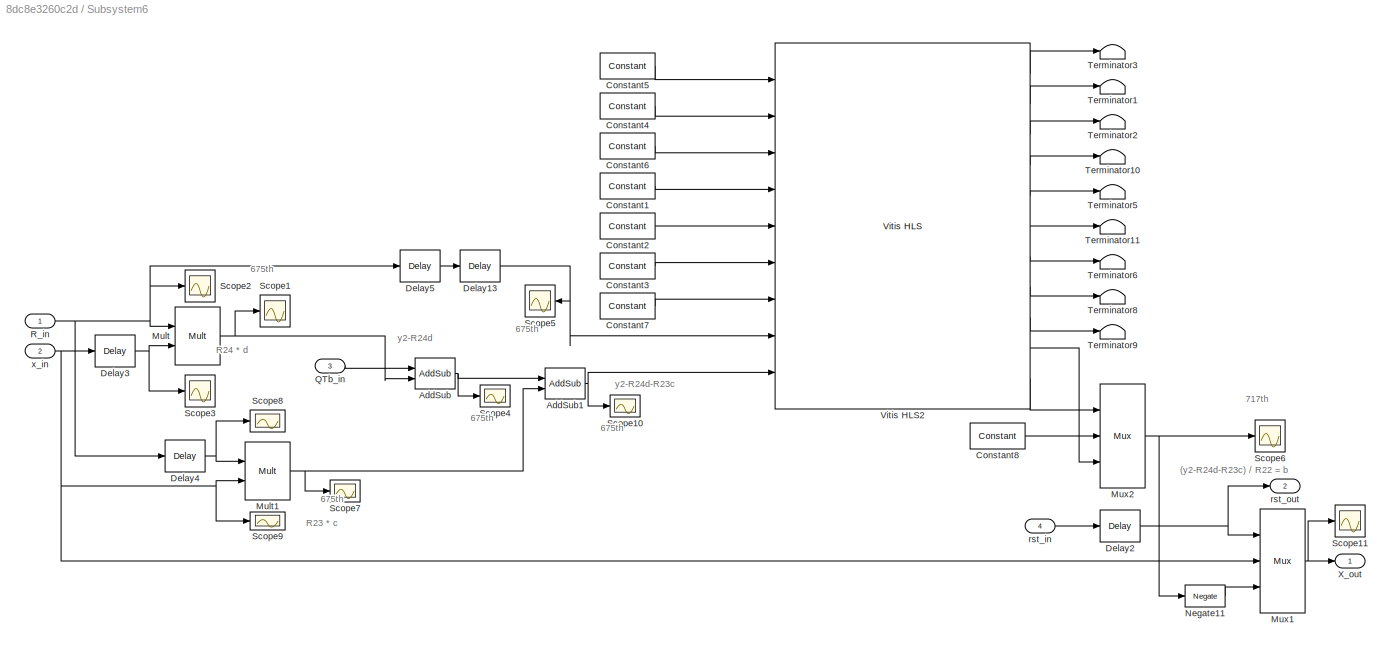
BLOCK [SubSystem] Subsystem6
  Ports = [4, 2]
  RequestExecContextInheritance = off
BLOCK [Reference] Subsystem6/AddSub  REF=hdlBasic/AddSub
  Ports = [2, 1]
  SourceBlock = hdlBasic/AddSub
  SourceType = Adder/Subtracter Block
BLOCK [Reference] Subsystem6/AddSub1  REF=hdlBasic/AddSub
  Ports = [2, 1]
  SourceBlock = hdlBasic/AddSub
  SourceType = Adder/Subtracter Block
BLOCK [Reference] Subsystem6/Constant1  REF=hdlBasic/Constant
  Ports = [0, 1]
  SourceBlock = hdlBasic/Constant
  SourceType = Constant Block Block
BLOCK [Reference] Subsystem6/Constant2  REF=hdlBasic/Constant
  Ports = [0, 1]
  SourceBlock = hdlBasic/Constant
  SourceType = Constant Block Block
BLOCK [Reference] Subsystem6/Constant3  REF=hdlBasic/Constant
  Ports = [0, 1]
  SourceBlock = hdlBasic/Constant
  SourceType = Constant Block Block
BLOCK [Reference] Subsystem6/Constant4  REF=hdlBasic/Constant
  Ports = [0, 1]
  SourceBlock = hdlBasic/Constant
  SourceType = Constant Block Block
BLOCK [Reference] Subsystem6/Constant5  REF=hdlBasic/Constant
  Ports = [0, 1]
  SourceBlock = hdlBasic/Constant
  SourceType = Constant Block Block
BLOCK [Reference] Subsystem6/Constant6  REF=hdlBasic/Constant
  Ports = [0, 1]
  SourceBlock = hdlBasic/Constant
  SourceType = Constant Block Block
BLOCK [Reference] Subsystem6/Constant7  REF=hdlBasic/Constant
  Ports = [0, 1]
  SourceBlock = hdlBasic/Constant
  SourceType = Constant Block Block
BLOCK [Reference] Subsystem6/Constant8  REF=hdlBasic/Constant
  Ports = [0, 1]
  SourceBlock = hdlBasic/Constant
  SourceType = Constant Block Block
BLOCK [Reference] Subsystem6/Delay13  REF=hdlBasic/Delay
  Ports = [1, 1]
  SourceBlock = hdlBasic/Delay
  SourceType = Delay Block
BLOCK [Reference] Subsystem6/Delay2  REF=hdlBasic/Delay
  Ports = [1, 1]
  SourceBlock = hdlBasic/Delay
  SourceType = Delay Block
BLOCK [Reference] Subsystem6/Delay3  REF=hdlBasic/Delay
  Ports = [1, 1]
  SourceBlock = hdlBasic/Delay
  SourceType = Delay Block
BLOCK [Reference] Subsystem6/Delay4  REF=hdlBasic/Delay
  Ports = [1, 1]
  SourceBlock = hdlBasic/Delay
  SourceType = Delay Block
BLOCK [Reference] Subsystem6/Delay5  REF=hdlBasic/Delay
  Ports = [1, 1]
  SourceBlock = hdlBasic/Delay
  SourceType = Delay Block
BLOCK [Reference] Subsystem6/Mult  REF=hdlBasic/Mult
  Ports = [2, 1]
  SourceBlock = hdlBasic/Mult
  SourceType = Multiplier Block
BLOCK [Reference] Subsystem6/Mult1  REF=hdlBasic/Mult
  Ports = [2, 1]
  SourceBlock = hdlBasic/Mult
  SourceType = Multiplier Block
BLOCK [Reference] Subsystem6/Mux1  REF=hdlBasic/Mux
  Ports = [3, 1]
  SourceBlock = hdlBasic/Mux
  SourceType = Bus Multiplexer Block
BLOCK [Reference] Subsystem6/Mux2  REF=hdlBasic/Mux
  Ports = [3, 1]
  SourceBlock = hdlBasic/Mux
  SourceType = Bus Multiplexer Block
BLOCK [Reference] Subsystem6/Negate11  REF=hdlBasic/Negate
  Ports = [1, 1]
  SourceBlock = hdlBasic/Negate
  SourceType = Negate Block Block
BLOCK [Inport] Subsystem6/QTb_in
  Port = 3
BLOCK [Inport] Subsystem6/R_in
BLOCK [Scope] Subsystem6/Scope1
  Floating = off
  NumInputPorts = 1
  Ports = [1]
BLOCK [Scope] Subsystem6/Scope10
  Floating = off
  NumInputPorts = 1
  Ports = [1]
  ScopeSpecificationString = Simulink.scopes.TimeScopeBlockCfg('CurrentConfiguration', extmgr.ConfigurationSet(extmgr.Configuration('Core','General UI',true),extmgr.Configuration('Core','Source UI',true),extmgr.Configuration('Sources','WiredSimulink',true,'DataLoggingVariableName','ScopeData7'),extmgr.Configuration('Visuals','Time Domain',true,'SerializedDisplays',{struct('MinYLimReal','-1.10086','MaxYLimReal','1.0189','YLabe...<+1412ch>
BLOCK [Scope] Subsystem6/Scope11
  Floating = off
  NumInputPorts = 1
  Ports = [1]
  ScopeSpecificationString = Simulink.scopes.TimeScopeBlockCfg('CurrentConfiguration', extmgr.ConfigurationSet(extmgr.Configuration('Core','General UI',true),extmgr.Configuration('Core','Source UI',true),extmgr.Configuration('Sources','WiredSimulink',true,'DataLoggingVariableName','ScopeData8'),extmgr.Configuration('Visuals','Time Domain',true,'SerializedDisplays',{struct('MinYLimReal','-0.78436','MaxYLimReal','1.50873','YLab...<+1411ch>
BLOCK [Scope] Subsystem6/Scope2
  Floating = off
  NumInputPorts = 1
  Ports = [1]
BLOCK [Scope] Subsystem6/Scope3
  Floating = off
  NumInputPorts = 1
  Ports = [1]
BLOCK [Scope] Subsystem6/Scope4
  Floating = off
  NumInputPorts = 1
  Ports = [1]
BLOCK [Scope] Subsystem6/Scope5
  Floating = off
  NameLocation = top
  NumInputPorts = 1
  Ports = [1]
BLOCK [Scope] Subsystem6/Scope6
  Floating = off
  NumInputPorts = 1
  Ports = [1]
BLOCK [Scope] Subsystem6/Scope7
  Floating = off
  NumInputPorts = 1
  Ports = [1]
  ScopeSpecificationString = Simulink.scopes.TimeScopeBlockCfg('CurrentConfiguration', extmgr.ConfigurationSet(extmgr.Configuration('Core','General UI',true),extmgr.Configuration('Core','Source UI',true),extmgr.Configuration('Sources','WiredSimulink',true,'DataLoggingVariableName','ScopeData4'),extmgr.Configuration('Visuals','Time Domain',true,'SerializedDisplays',{struct('MinYLimReal','-1.10086','MaxYLimReal','1.0189','YLabe...<+1410ch>
BLOCK [Scope] Subsystem6/Scope8
  Floating = off
  NumInputPorts = 1
  Ports = [1]
  ScopeSpecificationString = Simulink.scopes.TimeScopeBlockCfg('CurrentConfiguration', extmgr.ConfigurationSet(extmgr.Configuration('Core','General UI',true),extmgr.Configuration('Core','Source UI',true),extmgr.Configuration('Sources','WiredSimulink',true,'DataLoggingVariableName','ScopeData5'),extmgr.Configuration('Visuals','Time Domain',true,'SerializedDisplays',{struct('MinYLimReal','-1.10086','MaxYLimReal','1.0189','YLabe...<+1411ch>
BLOCK [Scope] Subsystem6/Scope9
  Floating = off
  NumInputPorts = 1
  Ports = [1]
BLOCK [Terminator] Subsystem6/Terminator1
BLOCK [Terminator] Subsystem6/Terminator10
BLOCK [Terminator] Subsystem6/Terminator11
BLOCK [Terminator] Subsystem6/Terminator2
BLOCK [Terminator] Subsystem6/Terminator3
BLOCK [Terminator] Subsystem6/Terminator5
BLOCK [Terminator] Subsystem6/Terminator6
BLOCK [Terminator] Subsystem6/Terminator8
BLOCK [Terminator] Subsystem6/Terminator9
BLOCK [Reference] Subsystem6/Vitis HLS2  REF=hdlBasic/Vitis HLS
  Ports = [9, 11]
  SourceBlock = hdlBasic/Vitis HLS
  SourceType = Xilinx High Level Synthesis Block
BLOCK [Outport] Subsystem6/X_out
BLOCK [Inport] Subsystem6/rst_in
  Port = 4
BLOCK [Outport] Subsystem6/rst_out
  Port = 2
BLOCK [Inport] Subsystem6/x_in
  Port = 2
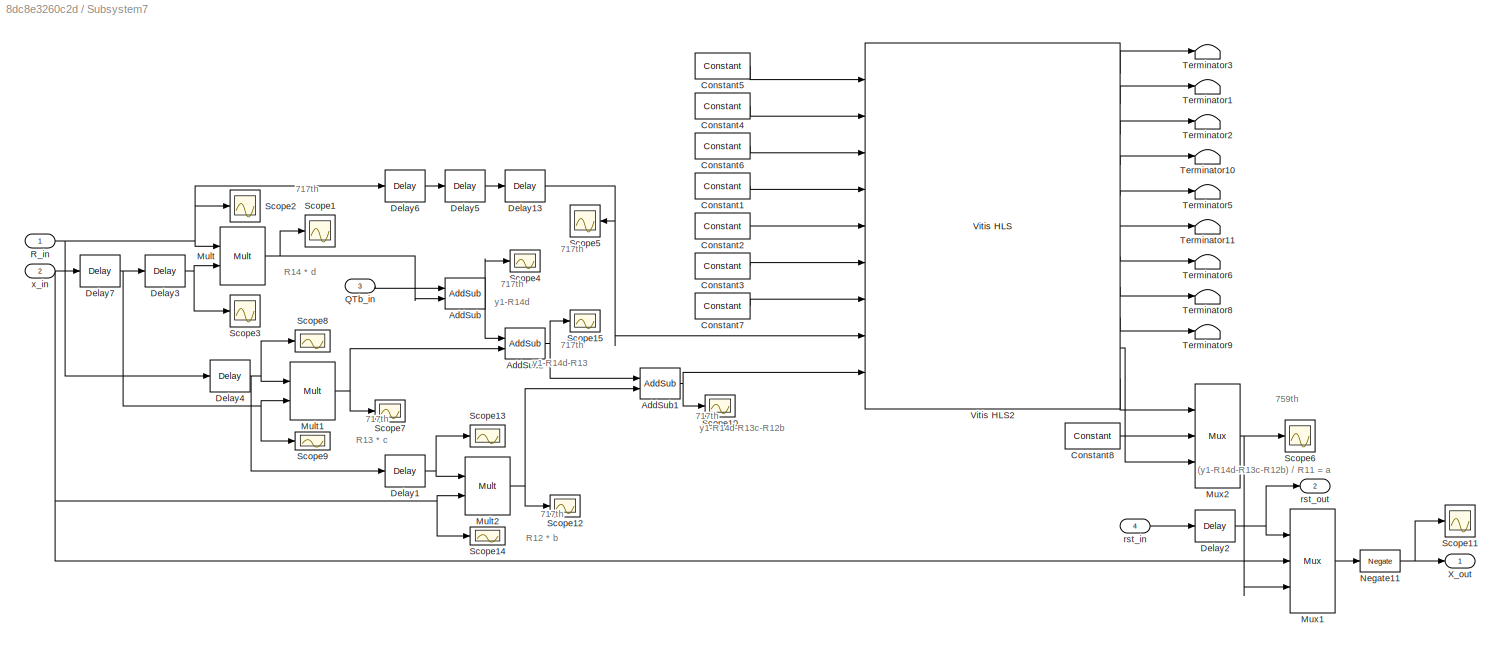
BLOCK [SubSystem] Subsystem7
  Ports = [4, 2]
  RequestExecContextInheritance = off
BLOCK [Reference] Subsystem7/AddSub  REF=hdlBasic/AddSub
  Ports = [2, 1]
  SourceBlock = hdlBasic/AddSub
  SourceType = Adder/Subtracter Block
BLOCK [Reference] Subsystem7/AddSub1  REF=hdlBasic/AddSub
  Ports = [2, 1]
  SourceBlock = hdlBasic/AddSub
  SourceType = Adder/Subtracter Block
BLOCK [Reference] Subsystem7/AddSub2  REF=hdlBasic/AddSub
  Ports = [2, 1]
  SourceBlock = hdlBasic/AddSub
  SourceType = Adder/Subtracter Block
BLOCK [Reference] Subsystem7/Constant1  REF=hdlBasic/Constant
  Ports = [0, 1]
  SourceBlock = hdlBasic/Constant
  SourceType = Constant Block Block
BLOCK [Reference] Subsystem7/Constant2  REF=hdlBasic/Constant
  Ports = [0, 1]
  SourceBlock = hdlBasic/Constant
  SourceType = Constant Block Block
BLOCK [Reference] Subsystem7/Constant3  REF=hdlBasic/Constant
  Ports = [0, 1]
  SourceBlock = hdlBasic/Constant
  SourceType = Constant Block Block
BLOCK [Reference] Subsystem7/Constant4  REF=hdlBasic/Constant
  Ports = [0, 1]
  SourceBlock = hdlBasic/Constant
  SourceType = Constant Block Block
BLOCK [Reference] Subsystem7/Constant5  REF=hdlBasic/Constant
  Ports = [0, 1]
  SourceBlock = hdlBasic/Constant
  SourceType = Constant Block Block
BLOCK [Reference] Subsystem7/Constant6  REF=hdlBasic/Constant
  Ports = [0, 1]
  SourceBlock = hdlBasic/Constant
  SourceType = Constant Block Block
BLOCK [Reference] Subsystem7/Constant7  REF=hdlBasic/Constant
  Ports = [0, 1]
  SourceBlock = hdlBasic/Constant
  SourceType = Constant Block Block
BLOCK [Reference] Subsystem7/Constant8  REF=hdlBasic/Constant
  Ports = [0, 1]
  SourceBlock = hdlBasic/Constant
  SourceType = Constant Block Block
BLOCK [Reference] Subsystem7/Delay1  REF=hdlBasic/Delay
  Ports = [1, 1]
  SourceBlock = hdlBasic/Delay
  SourceType = Delay Block
BLOCK [Reference] Subsystem7/Delay13  REF=hdlBasic/Delay
  Ports = [1, 1]
  SourceBlock = hdlBasic/Delay
  SourceType = Delay Block
BLOCK [Reference] Subsystem7/Delay2  REF=hdlBasic/Delay
  Ports = [1, 1]
  SourceBlock = hdlBasic/Delay
  SourceType = Delay Block
BLOCK [Reference] Subsystem7/Delay3  REF=hdlBasic/Delay
  Ports = [1, 1]
  SourceBlock = hdlBasic/Delay
  SourceType = Delay Block
BLOCK [Reference] Subsystem7/Delay4  REF=hdlBasic/Delay
  Ports = [1, 1]
  SourceBlock = hdlBasic/Delay
  SourceType = Delay Block
BLOCK [Reference] Subsystem7/Delay5  REF=hdlBasic/Delay
  Ports = [1, 1]
  SourceBlock = hdlBasic/Delay
  SourceType = Delay Block
BLOCK [Reference] Subsystem7/Delay6  REF=hdlBasic/Delay
  Ports = [1, 1]
  SourceBlock = hdlBasic/Delay
  SourceType = Delay Block
BLOCK [Reference] Subsystem7/Delay7  REF=hdlBasic/Delay
  Ports = [1, 1]
  SourceBlock = hdlBasic/Delay
  SourceType = Delay Block
BLOCK [Reference] Subsystem7/Mult  REF=hdlBasic/Mult
  Ports = [2, 1]
  SourceBlock = hdlBasic/Mult
  SourceType = Multiplier Block
BLOCK [Reference] Subsystem7/Mult1  REF=hdlBasic/Mult
  Ports = [2, 1]
  SourceBlock = hdlBasic/Mult
  SourceType = Multiplier Block
BLOCK [Reference] Subsystem7/Mult2  REF=hdlBasic/Mult
  Ports = [2, 1]
  SourceBlock = hdlBasic/Mult
  SourceType = Multiplier Block
BLOCK [Reference] Subsystem7/Mux1  REF=hdlBasic/Mux
  Ports = [3, 1]
  SourceBlock = hdlBasic/Mux
  SourceType = Bus Multiplexer Block
BLOCK [Reference] Subsystem7/Mux2  REF=hdlBasic/Mux
  Ports = [3, 1]
  SourceBlock = hdlBasic/Mux
  SourceType = Bus Multiplexer Block
BLOCK [Reference] Subsystem7/Negate11  REF=hdlBasic/Negate
  Ports = [1, 1]
  SourceBlock = hdlBasic/Negate
  SourceType = Negate Block Block
BLOCK [Inport] Subsystem7/QTb_in
  Port = 3
BLOCK [Inport] Subsystem7/R_in
BLOCK [Scope] Subsystem7/Scope1
  Floating = off
  NumInputPorts = 1
  Ports = [1]
BLOCK [Scope] Subsystem7/Scope10
  Floating = off
  NumInputPorts = 1
  Ports = [1]
  ScopeSpecificationString = Simulink.scopes.TimeScopeBlockCfg('CurrentConfiguration', extmgr.ConfigurationSet(extmgr.Configuration('Core','General UI',true),extmgr.Configuration('Core','Source UI',true),extmgr.Configuration('Sources','WiredSimulink',true,'DataLoggingVariableName','ScopeData7'),extmgr.Configuration('Visuals','Time Domain',true,'SerializedDisplays',{struct('MinYLimReal','-1.10086','MaxYLimReal','1.0189','YLabe...<+1412ch>
BLOCK [Scope] Subsystem7/Scope11
  Floating = off
  NumInputPorts = 1
  Ports = [1]
  ScopeSpecificationString = Simulink.scopes.TimeScopeBlockCfg('CurrentConfiguration', extmgr.ConfigurationSet(extmgr.Configuration('Core','General UI',true),extmgr.Configuration('Core','Source UI',true),extmgr.Configuration('Sources','WiredSimulink',true,'DataLoggingVariableName','ScopeData8'),extmgr.Configuration('Visuals','Time Domain',true,'SerializedDisplays',{struct('MinYLimReal','-4.21214','MaxYLimReal','1.6837','YLabe...<+1436ch>
BLOCK [Scope] Subsystem7/Scope12
  Floating = off
  NumInputPorts = 1
  Ports = [1]
  ScopeSpecificationString = Simulink.scopes.TimeScopeBlockCfg('CurrentConfiguration', extmgr.ConfigurationSet(extmgr.Configuration('Core','General UI',true),extmgr.Configuration('Core','Source UI',true),extmgr.Configuration('Sources','WiredSimulink',true,'DataLoggingVariableName','ScopeData11'),extmgr.Configuration('Visuals','Time Domain',true,'SerializedDisplays',{struct('MinYLimReal','-1.10086','MaxYLimReal','1.0189','YLab...<+1411ch>
BLOCK [Scope] Subsystem7/Scope13
  Floating = off
  NumInputPorts = 1
  Ports = [1]
  ScopeSpecificationString = Simulink.scopes.TimeScopeBlockCfg('CurrentConfiguration', extmgr.ConfigurationSet(extmgr.Configuration('Core','General UI',true),extmgr.Configuration('Core','Source UI',true),extmgr.Configuration('Sources','WiredSimulink',true,'DataLoggingVariableName','ScopeData12'),extmgr.Configuration('Visuals','Time Domain',true,'SerializedDisplays',{struct('MinYLimReal','-1.10086','MaxYLimReal','1.0189','YLab...<+1412ch>
BLOCK [Scope] Subsystem7/Scope14
  Floating = off
  NumInputPorts = 1
  Ports = [1]
  ScopeSpecificationString = Simulink.scopes.TimeScopeBlockCfg('CurrentConfiguration', extmgr.ConfigurationSet(extmgr.Configuration('Core','General UI',true),extmgr.Configuration('Core','Source UI',true),extmgr.Configuration('Sources','WiredSimulink',true,'DataLoggingVariableName','ScopeData13'),extmgr.Configuration('Visuals','Time Domain',true,'SerializedDisplays',{struct('MinYLimReal','-1.10086','MaxYLimReal','1.0189','YLab...<+1410ch>
BLOCK [Scope] Subsystem7/Scope15
  Floating = off
  NumInputPorts = 1
  Ports = [1]
  ScopeSpecificationString = Simulink.scopes.TimeScopeBlockCfg('CurrentConfiguration', extmgr.ConfigurationSet(extmgr.Configuration('Core','General UI',true),extmgr.Configuration('Core','Source UI',true),extmgr.Configuration('Sources','WiredSimulink',true,'DataLoggingVariableName','ScopeData14'),extmgr.Configuration('Visuals','Time Domain',true,'SerializedDisplays',{struct('MinYLimReal','-1.10086','MaxYLimReal','1.0189','YLab...<+1413ch>
BLOCK [Scope] Subsystem7/Scope2
  Floating = off
  NumInputPorts = 1
  Ports = [1]
BLOCK [Scope] Subsystem7/Scope3
  Floating = off
  NumInputPorts = 1
  Ports = [1]
BLOCK [Scope] Subsystem7/Scope4
  Floating = off
  NumInputPorts = 1
  Ports = [1]
BLOCK [Scope] Subsystem7/Scope5
  Floating = off
  NameLocation = top
  NumInputPorts = 1
  Ports = [1]
BLOCK [Scope] Subsystem7/Scope6
  Floating = off
  NumInputPorts = 1
  Ports = [1]
BLOCK [Scope] Subsystem7/Scope7
  Floating = off
  NumInputPorts = 1
  Ports = [1]
  ScopeSpecificationString = Simulink.scopes.TimeScopeBlockCfg('CurrentConfiguration', extmgr.ConfigurationSet(extmgr.Configuration('Core','General UI',true),extmgr.Configuration('Core','Source UI',true),extmgr.Configuration('Sources','WiredSimulink',true,'DataLoggingVariableName','ScopeData4'),extmgr.Configuration('Visuals','Time Domain',true,'SerializedDisplays',{struct('MinYLimReal','-1.10086','MaxYLimReal','1.0189','YLabe...<+1410ch>
BLOCK [Scope] Subsystem7/Scope8
  Floating = off
  NumInputPorts = 1
  Ports = [1]
  ScopeSpecificationString = Simulink.scopes.TimeScopeBlockCfg('CurrentConfiguration', extmgr.ConfigurationSet(extmgr.Configuration('Core','General UI',true),extmgr.Configuration('Core','Source UI',true),extmgr.Configuration('Sources','WiredSimulink',true,'DataLoggingVariableName','ScopeData5'),extmgr.Configuration('Visuals','Time Domain',true,'SerializedDisplays',{struct('MinYLimReal','-1.10086','MaxYLimReal','1.0189','YLabe...<+1411ch>
BLOCK [Scope] Subsystem7/Scope9
  Floating = off
  NumInputPorts = 1
  Ports = [1]
BLOCK [Terminator] Subsystem7/Terminator1
BLOCK [Terminator] Subsystem7/Terminator10
BLOCK [Terminator] Subsystem7/Terminator11
BLOCK [Terminator] Subsystem7/Terminator2
BLOCK [Terminator] Subsystem7/Terminator3
BLOCK [Terminator] Subsystem7/Terminator5
BLOCK [Terminator] Subsystem7/Terminator6
BLOCK [Terminator] Subsystem7/Terminator8
BLOCK [Terminator] Subsystem7/Terminator9
BLOCK [Reference] Subsystem7/Vitis HLS2  REF=hdlBasic/Vitis HLS
  Ports = [9, 11]
  SourceBlock = hdlBasic/Vitis HLS
  SourceType = Xilinx High Level Synthesis Block
BLOCK [Outport] Subsystem7/X_out
BLOCK [Inport] Subsystem7/rst_in
  Port = 4
BLOCK [Outport] Subsystem7/rst_out
  Port = 2
BLOCK [Inport] Subsystem7/x_in
  Port = 2
BLOCK [Terminator] Terminator4
BLOCK [Terminator] Terminator7
BLOCK [ToWorkspace] To Workspace1
  FixptAsFi = on
  MaxDataPoints = inf
  Ports = [1]
  SampleTime = -1
  VariableName = out_x_col
BLOCK [Reference] b_In  REF=hdlBasic/Gateway In
  Ports = [1, 1]
  SourceBlock = hdlBasic/Gateway In
  SourceType = Gateway In Block
BLOCK [Reference] rst_In  REF=hdlBasic/Gateway In
  Ports = [1, 1]
  SourceBlock = hdlBasic/Gateway In
  SourceType = Gateway In Block
BLOCK [Reference] x_col_out  REF=hdlBasic/Gateway Out
  Ports = [1, 1]
  SourceBlock = hdlBasic/Gateway Out
  SourceType = Gateway Out Block
ANNOTATION (root): 591th
ANNOTATION (root): 633th
ANNOTATION (root): 675th
ANNOTATION (root): 717th
ANNOTATION (root): Back Substitution 1
ANNOTATION (root): Back Substitution 2
ANNOTATION (root): Back Substitution 3
ANNOTATION (root): Back Substitution 4
ANNOTATION (root): Calculate Back Substitution
ANNOTATION (root): Calculate Q Array
ANNOTATION (root): Calculate QT * b
ANNOTATION (root): Calculate R Array
ANNOTATION (root): Get y2 value
ANNOTATION (root): Get y3 value
ANNOTATION (root): Q_col1_out
ANNOTATION (root): Q_col2_out
ANNOTATION (root): Q_col3_out
ANNOTATION (root): Q_col4_out
ANNOTATION (root): R_row1_out
ANNOTATION (root): R_row2_out
ANNOTATION (root): R_row3_out
ANNOTATION (root): R_row4_out
ANNOTATION (root): y_out
ANNOTATION ArcTan1: Depends on latency after synthesis from Vitis HLS (In this case, we have 42 latency)
ANNOTATION Subsystem4: 633th
ANNOTATION Subsystem4: y4 / R44 = d
ANNOTATION Subsystem5: (y3-R34d) / R33 = c
ANNOTATION Subsystem5: 633th
ANNOTATION Subsystem5: 675th
ANNOTATION Subsystem5: R34 * d
ANNOTATION Subsystem5: y3-R34d
ANNOTATION Subsystem6: (y2-R24d-R23c) / R22 = b
ANNOTATION Subsystem6: 675th
ANNOTATION Subsystem6: 717th
ANNOTATION Subsystem6: R23 * c
ANNOTATION Subsystem6: R24 * d
ANNOTATION Subsystem6: y2-R24d
ANNOTATION Subsystem6: y2-R24d-R23c
ANNOTATION Subsystem7: (y1-R14d-R13c-R12b) / R11 = a
ANNOTATION Subsystem7: 717th
ANNOTATION Subsystem7: 759th
ANNOTATION Subsystem7: R12 * b
ANNOTATION Subsystem7: R13 * c
ANNOTATION Subsystem7: R14 * d
ANNOTATION Subsystem7: y1-R14d
ANNOTATION Subsystem7: y1-R14d-R13
ANNOTATION Subsystem7: y1-R14d-R13c-R12b
NET A_col1_In:1 -> ArcTan1:1, Scope13:1
NET A_col2_In:1 -> Rotation1:1, Scope13:2
NET A_col3_In:1 -> Rotation2:1, Scope13:3
NET A_col4_In:1 -> Rotation4:1, Scope13:4
LINE ArcTan1/Constant3:1 -> ArcTan1/Mux:2
LINE ArcTan1/Constant4:1 -> ArcTan1/Vitis HLS2:2
LINE ArcTan1/Constant5:1 -> ArcTan1/Vitis HLS2:1
LINE ArcTan1/Constant6:1 -> ArcTan1/Vitis HLS2:3
LINE ArcTan1/Constant7:1 -> ArcTan1/Vitis HLS2:7
LINE ArcTan1/Constant8:1 -> ArcTan1/Vitis HLS2:6
LINE ArcTan1/Constant:1 -> ArcTan1/Mux2:2
LINE ArcTan1/Delay5:1 -> ArcTan1/rst_out:1
NET ArcTan1/Mux2:1 -> ArcTan1/R_out:1, ArcTan1/Scope6:1
NET ArcTan1/Mux:1 -> ArcTan1/Mux2:3, ArcTan1/Register:1, ArcTan1/Scope3:1
NET ArcTan1/Register:1 -> ArcTan1/Scope4:1, ArcTan1/Vitis HLS2:4
LINE ArcTan1/Vitis HLS2:1 -> ArcTan1/Terminator6:1
LINE ArcTan1/Vitis HLS2:2 -> ArcTan1/Terminator7:1
LINE ArcTan1/Vitis HLS2:3 -> ArcTan1/Terminator8:1
NET ArcTan1/Vitis HLS2:4 -> ArcTan1/Mux:3, ArcTan1/x_out:1
NET ArcTan1/Vitis HLS2:5 -> ArcTan1/Mux:1, ArcTan1/Scope1:1, ArcTan1/ready:1
LINE ArcTan1/Vitis HLS2:6 -> ArcTan1/Terminator10:1
LINE ArcTan1/Vitis HLS2:7 -> ArcTan1/Terminator11:1
NET ArcTan1/Vitis HLS2:8 -> ArcTan1/Scope2:1, ArcTan1/theta_out:1
LINE ArcTan1/Vitis HLS2:9 -> ArcTan1/Terminator12:1
NET ArcTan1/rst:1 -> ArcTan1/Delay5:1, ArcTan1/Mux2:1, ArcTan1/Register:2, ArcTan1/Scope5:1
LINE ArcTan1/y_in:1 -> ArcTan1/Vitis HLS2:5
LINE ArcTan1:1 -> Rotation1:2
LINE ArcTan1:3 -> ArcTan2:2
LINE ArcTan1:4 -> Rotation1:4
LINE ArcTan1:5 -> Rotation1:3
LINE ArcTan2/Constant1:1 -> ArcTan2/Mux2:2
LINE ArcTan2/Constant3:1 -> ArcTan2/Mux:2
LINE ArcTan2/Constant4:1 -> ArcTan2/Vitis HLS2:2
LINE ArcTan2/Constant5:1 -> ArcTan2/Vitis HLS2:1
LINE ArcTan2/Constant6:1 -> ArcTan2/Vitis HLS2:3
LINE ArcTan2/Constant7:1 -> ArcTan2/Vitis HLS2:7
LINE ArcTan2/Constant8:1 -> ArcTan2/Vitis HLS2:6
NET ArcTan2/Delay:1 -> ArcTan2/Mux:1, ArcTan2/ready:1
NET ArcTan2/Mux2:1 -> ArcTan2/R_out:1, ArcTan2/Scope6:1
NET ArcTan2/Mux:1 -> ArcTan2/Mux2:3, ArcTan2/Register:1
LINE ArcTan2/Negate1:1 -> ArcTan2/Scope:1
LINE ArcTan2/Register:1 -> ArcTan2/Vitis HLS2:4
LINE ArcTan2/Vitis HLS2:1 -> ArcTan2/Terminator2:1
LINE ArcTan2/Vitis HLS2:2 -> ArcTan2/Terminator1:1
LINE ArcTan2/Vitis HLS2:3 -> ArcTan2/Terminator6:1
NET ArcTan2/Vitis HLS2:4 -> ArcTan2/Mux:3, ArcTan2/Negate1:1, ArcTan2/x_out:1
LINE ArcTan2/Vitis HLS2:5 -> ArcTan2/Terminator3:1
LINE ArcTan2/Vitis HLS2:6 -> ArcTan2/Terminator4:1
LINE ArcTan2/Vitis HLS2:7 -> ArcTan2/Terminator7:1
LINE ArcTan2/Vitis HLS2:8 -> ArcTan2/theta_out:1
LINE ArcTan2/Vitis HLS2:9 -> ArcTan2/Terminator5:1
NET ArcTan2/rst:1 -> ArcTan2/Mux2:1, ArcTan2/Register:2
LINE ArcTan2/sel:1 -> ArcTan2/Delay:1
LINE ArcTan2/y_in:1 -> ArcTan2/Vitis HLS2:5
LINE ArcTan2:1 -> Rotation3:2
LINE ArcTan2:3 -> ArcTan3:2
LINE ArcTan2:4 -> Rotation3:5
LINE ArcTan3/Constant1:1 -> ArcTan3/Mux2:2
LINE ArcTan3/Constant3:1 -> ArcTan3/Mux:2
LINE ArcTan3/Constant4:1 -> ArcTan3/Vitis HLS2:2
LINE ArcTan3/Constant5:1 -> ArcTan3/Vitis HLS2:1
LINE ArcTan3/Constant6:1 -> ArcTan3/Vitis HLS2:3
LINE ArcTan3/Constant7:1 -> ArcTan3/Vitis HLS2:7
LINE ArcTan3/Constant8:1 -> ArcTan3/Vitis HLS2:6
NET ArcTan3/Delay:1 -> ArcTan3/Mux:1, ArcTan3/ready:1
NET ArcTan3/Mux2:1 -> ArcTan3/R_out:1, ArcTan3/Scope6:1
NET ArcTan3/Mux:1 -> ArcTan3/Mux2:3, ArcTan3/Register:1, ArcTan3/Scope:1
NET ArcTan3/Register:1 -> ArcTan3/Scope1:1, ArcTan3/Vitis HLS2:4
LINE ArcTan3/Vitis HLS2:1 -> ArcTan3/Terminator4:1
LINE ArcTan3/Vitis HLS2:2 -> ArcTan3/Terminator3:1
LINE ArcTan3/Vitis HLS2:3 -> ArcTan3/Terminator1:1
NET ArcTan3/Vitis HLS2:4 -> ArcTan3/Mux:3, ArcTan3/x_out:1
LINE ArcTan3/Vitis HLS2:5 -> ArcTan3/Terminator2:1
LINE ArcTan3/Vitis HLS2:6 -> ArcTan3/Terminator7:1
LINE ArcTan3/Vitis HLS2:7 -> ArcTan3/Terminator5:1
LINE ArcTan3/Vitis HLS2:8 -> ArcTan3/theta_out:1
LINE ArcTan3/Vitis HLS2:9 -> ArcTan3/Terminator6:1
NET ArcTan3/rst:1 -> ArcTan3/Mux2:1, ArcTan3/Register:2
LINE ArcTan3/sel:1 -> ArcTan3/Delay:1
LINE ArcTan3/y_in:1 -> ArcTan3/Vitis HLS2:5
LINE ArcTan3:1 -> Rotation6:2
LINE ArcTan3:4 -> Rotation6:5
LINE Delay10:1 -> Delay9:1
NET Delay11:1 -> Scope18:1, Subsystem5:1
NET Delay12:1 -> Delay23:1, Scope20:1, Subsystem5:3
LINE Delay13:1 -> Delay12:1
LINE Delay14:1 -> Delay19:1
LINE Delay15:1 -> Delay20:1
LINE Delay16:1 -> Delay17:1
LINE Delay17:1 -> Delay18:1
LINE Delay18:1 -> Delay15:1
LINE Delay19:1 -> Delay16:1
LINE Delay1:1 -> Delay2:1
LINE Delay20:1 -> Delay21:1
NET Delay21:1 -> Scope21:1, Subsystem6:1
NET Delay22:1 -> Delay35:1, Scope22:1, Subsystem6:3
LINE Delay23:1 -> Delay22:1
NET Delay24:1 -> Scope23:1, Subsystem7:3
LINE Delay25:1 -> Delay30:1
LINE Delay26:1 -> Delay31:1
LINE Delay27:1 -> Delay28:1
LINE Delay28:1 -> Delay29:1
LINE Delay29:1 -> Delay26:1
LINE Delay2:1 -> Delay3:1
LINE Delay30:1 -> Delay27:1
LINE Delay31:1 -> Delay32:1
LINE Delay32:1 -> Delay33:1
LINE Delay33:1 -> Delay34:1
NET Delay34:1 -> Scope24:1, Subsystem7:1
LINE Delay35:1 -> Delay24:1
NET Delay3:1 -> Scope19:1, Subsystem4:1
LINE Delay4:1 -> Delay1:1
LINE Delay5:1 -> Delay4:1
LINE Delay6:1 -> Delay7:1
LINE Delay7:1 -> Delay8:1
LINE Delay8:1 -> Delay11:1
LINE Delay9:1 -> Delay6:1
LINE From Workspace10:1 -> b_In:1
LINE From Workspace1:1 -> I_col1_In:1
LINE From Workspace2:1 -> rst_In:1
LINE From Workspace3:1 -> A_col1_In:1
LINE From Workspace4:1 -> A_col2_In:1
LINE From Workspace5:1 -> A_col3_In:1
LINE From Workspace6:1 -> A_col4_In:1
LINE From Workspace7:1 -> I_col2_In:1
LINE From Workspace8:1 -> I_col3_In:1
LINE From Workspace9:1 -> I_col4_In:1
LINE From1:1 -> Subsystem:2
NET From27:1 -> Delay14:1, Scope1:6
NET From28:1 -> Delay25:1, Scope1:5
NET From29:1 -> Delay10:1, Scope1:7
LINE From2:1 -> Subsystem5:4
NET From30:1 -> Delay5:1, Scope1:8
NET I_col1_In:1 -> Rotation7:1, Scope13:5
NET I_col2_In:1 -> Rotation10:1, Scope13:6
NET I_col3_In:1 -> Rotation13:1, Scope13:7
NET I_col4_In:1 -> Rotation16:1, Scope13:8
LINE Rotation1/Constant3:1 -> Rotation1/Mux:2
LINE Rotation1/Constant4:1 -> Rotation1/Vitis HLS2:2
LINE Rotation1/Constant5:1 -> Rotation1/Vitis HLS2:1
LINE Rotation1/Constant6:1 -> Rotation1/Vitis HLS2:3
LINE Rotation1/Constant7:1 -> Rotation1/Vitis HLS2:7
LINE Rotation1/Delay1:1 -> Rotation1/rst_out:1
NET Rotation1/Delay5:1 -> Rotation1/Vitis HLS2:6, Rotation1/theta_out:1
NET Rotation1/Mux2:1 -> Rotation1/R_out:1, Rotation1/Scope6:1
NET Rotation1/Mux:1 -> Rotation1/Mux2:3, Rotation1/Register:1, Rotation1/Scope:1
LINE Rotation1/R_in:1 -> Rotation1/Mux2:2
LINE Rotation1/Register:1 -> Rotation1/Vitis HLS2:4
LINE Rotation1/Vitis HLS2:1 -> Rotation1/Terminator5:1
LINE Rotation1/Vitis HLS2:2 -> Rotation1/Terminator4:1
LINE Rotation1/Vitis HLS2:3 -> Rotation1/Terminator2:1
NET Rotation1/Vitis HLS2:4 -> Rotation1/Mux:3, Rotation1/Scope2:1, Rotation1/x_out:1
LINE Rotation1/Vitis HLS2:5 -> Rotation1/Mux:1
LINE Rotation1/Vitis HLS2:6 -> Rotation1/y_out:1
LINE Rotation1/Vitis HLS2:7 -> Rotation1/Terminator6:1
LINE Rotation1/Vitis HLS2:8 -> Rotation1/Terminator3:1
LINE Rotation1/Vitis HLS2:9 -> Rotation1/Terminator1:1
NET Rotation1/rst:1 -> Rotation1/Delay1:1, Rotation1/Mux2:1, Rotation1/Register:2, Rotation1/Scope1:1
LINE Rotation1/theta_in:1 -> Rotation1/Delay5:1
LINE Rotation1/y_in:1 -> Rotation1/Vitis HLS2:5
LINE Rotation10/Constant3:1 -> Rotation10/Mux:2
LINE Rotation10/Constant4:1 -> Rotation10/Vitis HLS2:2
LINE Rotation10/Constant5:1 -> Rotation10/Vitis HLS2:1
LINE Rotation10/Constant6:1 -> Rotation10/Vitis HLS2:3
LINE Rotation10/Constant7:1 -> Rotation10/Vitis HLS2:7
LINE Rotation10/Delay1:1 -> Rotation10/rst_out:1
NET Rotation10/Delay5:1 -> Rotation10/Vitis HLS2:6, Rotation10/theta_out:1
NET Rotation10/Mux2:1 -> Rotation10/Q_out:1, Rotation10/Scope6:1
NET Rotation10/Mux:1 -> Rotation10/Mux2:3, Rotation10/Register:1
LINE Rotation10/Q_in:1 -> Rotation10/Mux2:2
LINE Rotation10/Register:1 -> Rotation10/Vitis HLS2:4
LINE Rotation10/Vitis HLS2:1 -> Rotation10/Terminator3:1
LINE Rotation10/Vitis HLS2:2 -> Rotation10/Terminator1:1
LINE Rotation10/Vitis HLS2:3 -> Rotation10/Terminator6:1
NET Rotation10/Vitis HLS2:4 -> Rotation10/Mux:3, Rotation10/x_out:1
NET Rotation10/Vitis HLS2:5 -> Rotation10/Mux:1, Rotation10/sel_out:1
LINE Rotation10/Vitis HLS2:6 -> Rotation10/y_out:1
LINE Rotation10/Vitis HLS2:7 -> Rotation10/Terminator2:1
LINE Rotation10/Vitis HLS2:8 -> Rotation10/Terminator5:1
LINE Rotation10/Vitis HLS2:9 -> Rotation10/Terminator4:1
NET Rotation10/rst:1 -> Rotation10/Delay1:1, Rotation10/Mux2:1, Rotation10/Register:2
LINE Rotation10/theta_in:1 -> Rotation10/Delay5:1
LINE Rotation10/y_in:1 -> Rotation10/Vitis HLS2:5
LINE Rotation10:1 -> Rotation13:2
LINE Rotation10:2 -> Rotation11:1
LINE Rotation10:4 -> Terminator4:1
LINE Rotation10:5 -> Rotation13:4
NET Rotation10:6 -> Rotation11:4, Rotation13:3
LINE Rotation11/Constant3:1 -> Rotation11/Mux:2
LINE Rotation11/Constant4:1 -> Rotation11/Vitis HLS2:2
LINE Rotation11/Constant5:1 -> Rotation11/Vitis HLS2:1
LINE Rotation11/Constant6:1 -> Rotation11/Vitis HLS2:3
LINE Rotation11/Constant7:1 -> Rotation11/Vitis HLS2:7
LINE Rotation11/Delay1:1 -> Rotation11/rst_out:1
NET Rotation11/Delay2:1 -> Rotation11/Mux:1, Rotation11/sel_out:1
NET Rotation11/Delay5:1 -> Rotation11/Vitis HLS2:6, Rotation11/theta_out:1
NET Rotation11/Mux2:1 -> Rotation11/Q_out:1, Rotation11/Scope6:1
NET Rotation11/Mux:1 -> Rotation11/Mux2:3, Rotation11/Register:1
LINE Rotation11/Q_in:1 -> Rotation11/Mux2:2
LINE Rotation11/Register:1 -> Rotation11/Vitis HLS2:4
LINE Rotation11/Vitis HLS2:1 -> Rotation11/Terminator3:1
LINE Rotation11/Vitis HLS2:2 -> Rotation11/Terminator1:1
LINE Rotation11/Vitis HLS2:3 -> Rotation11/Terminator2:1
NET Rotation11/Vitis HLS2:4 -> Rotation11/Mux:3, Rotation11/x_out:1
LINE Rotation11/Vitis HLS2:5 -> Rotation11/Terminator4:1
LINE Rotation11/Vitis HLS2:6 -> Rotation11/y_out:1
LINE Rotation11/Vitis HLS2:7 -> Rotation11/Terminator5:1
LINE Rotation11/Vitis HLS2:8 -> Rotation11/Terminator6:1
LINE Rotation11/Vitis HLS2:9 -> Rotation11/Terminator7:1
NET Rotation11/rst:1 -> Rotation11/Delay1:1, Rotation11/Mux2:1, Rotation11/Register:2
LINE Rotation11/sel_in:1 -> Rotation11/Delay2:1
LINE Rotation11/theta_in:1 -> Rotation11/Delay5:1
LINE Rotation11/y_in:1 -> Rotation11/Vitis HLS2:5
LINE Rotation11:1 -> Rotation14:2
LINE Rotation11:2 -> Rotation12:1
LINE Rotation11:4 -> Rotation12:3
LINE Rotation11:5 -> Rotation14:5
LINE Rotation11:6 -> Rotation12:4
LINE Rotation12/Constant3:1 -> Rotation12/Mux:2
LINE Rotation12/Constant4:1 -> Rotation12/Vitis HLS2:2
LINE Rotation12/Constant5:1 -> Rotation12/Vitis HLS2:1
LINE Rotation12/Constant6:1 -> Rotation12/Vitis HLS2:3
LINE Rotation12/Constant7:1 -> Rotation12/Vitis HLS2:7
NET Rotation12/Delay2:1 -> Rotation12/Mux:1, Rotation12/sel_out:1
NET Rotation12/Delay5:1 -> Rotation12/Vitis HLS2:6, Rotation12/theta_out:1
NET Rotation12/Mux1:1 -> Rotation12/Q_row4_out:1, Rotation12/Scope1:1
NET Rotation12/Mux2:1 -> Rotation12/Q_out:1, Rotation12/Scope6:1
NET Rotation12/Mux:1 -> Rotation12/Mux2:3, Rotation12/Register:1
LINE Rotation12/Q_in:1 -> Rotation12/Mux2:2
LINE Rotation12/Q_row4_in:1 -> Rotation12/Mux1:2
LINE Rotation12/Register:1 -> Rotation12/Vitis HLS2:4
LINE Rotation12/Vitis HLS2:1 -> Rotation12/Terminator3:1
LINE Rotation12/Vitis HLS2:2 -> Rotation12/Terminator1:1
LINE Rotation12/Vitis HLS2:3 -> Rotation12/Terminator2:1
NET Rotation12/Vitis HLS2:4 -> Rotation12/Mux:3, Rotation12/x_out:1
LINE Rotation12/Vitis HLS2:5 -> Rotation12/Terminator4:1
NET Rotation12/Vitis HLS2:6 -> Rotation12/Mux1:3, Rotation12/y_out:1
LINE Rotation12/Vitis HLS2:7 -> Rotation12/Terminator5:1
LINE Rotation12/Vitis HLS2:8 -> Rotation12/Terminator6:1
LINE Rotation12/Vitis HLS2:9 -> Rotation12/Terminator7:1
NET Rotation12/rst:1 -> Rotation12/Mux1:1, Rotation12/Mux2:1, Rotation12/Register:2
LINE Rotation12/sel_in:1 -> Rotation12/Delay2:1
LINE Rotation12/theta_in:1 -> Rotation12/Delay5:1
LINE Rotation12/y_in:1 -> Rotation12/Vitis HLS2:5
LINE Rotation12:1 -> Rotation15:2
LINE Rotation12:5 -> Rotation15:5
LINE Rotation12:6 -> Rotation15:6
LINE Rotation13/Constant3:1 -> Rotation13/Mux:2
LINE Rotation13/Constant4:1 -> Rotation13/Vitis HLS2:2
LINE Rotation13/Constant5:1 -> Rotation13/Vitis HLS2:1
LINE Rotation13/Constant6:1 -> Rotation13/Vitis HLS2:3
LINE Rotation13/Constant7:1 -> Rotation13/Vitis HLS2:7
LINE Rotation13/Delay1:1 -> Rotation13/rst_out:1
NET Rotation13/Delay5:1 -> Rotation13/Vitis HLS2:6, Rotation13/theta_out:1
NET Rotation13/Mux2:1 -> Rotation13/Q_out:1, Rotation13/Scope6:1
NET Rotation13/Mux:1 -> Rotation13/Mux2:3, Rotation13/Register:1
LINE Rotation13/Q_in:1 -> Rotation13/Mux2:2
LINE Rotation13/Register:1 -> Rotation13/Vitis HLS2:4
LINE Rotation13/Vitis HLS2:1 -> Rotation13/Terminator3:1
LINE Rotation13/Vitis HLS2:2 -> Rotation13/Terminator1:1
LINE Rotation13/Vitis HLS2:3 -> Rotation13/Terminator6:1
NET Rotation13/Vitis HLS2:4 -> Rotation13/Mux:3, Rotation13/x_out:1
NET Rotation13/Vitis HLS2:5 -> Rotation13/Mux:1, Rotation13/sel_out:1
LINE Rotation13/Vitis HLS2:6 -> Rotation13/y_out:1
LINE Rotation13/Vitis HLS2:7 -> Rotation13/Terminator2:1
LINE Rotation13/Vitis HLS2:8 -> Rotation13/Terminator5:1
LINE Rotation13/Vitis HLS2:9 -> Rotation13/Terminator4:1
NET Rotation13/rst:1 -> Rotation13/Delay1:1, Rotation13/Mux2:1, Rotation13/Register:2
LINE Rotation13/theta_in:1 -> Rotation13/Delay5:1
LINE Rotation13/y_in:1 -> Rotation13/Vitis HLS2:5
LINE Rotation13:1 -> Rotation16:2
LINE Rotation13:2 -> Rotation14:1
NET Rotation13:4 -> Rotation14:3, Rotation17:3
LINE Rotation13:5 -> Rotation16:4
NET Rotation13:6 -> Rotation14:4, Rotation16:3
LINE Rotation14/Constant3:1 -> Rotation14/Mux:2
LINE Rotation14/Constant4:1 -> Rotation14/Vitis HLS2:2
LINE Rotation14/Constant5:1 -> Rotation14/Vitis HLS2:1
LINE Rotation14/Constant6:1 -> Rotation14/Vitis HLS2:3
LINE Rotation14/Constant7:1 -> Rotation14/Vitis HLS2:7
LINE Rotation14/Delay1:1 -> Rotation14/rst_out:1
NET Rotation14/Delay2:1 -> Rotation14/Mux:1, Rotation14/sel_out:1
NET Rotation14/Delay5:1 -> Rotation14/Vitis HLS2:6, Rotation14/theta_out:1
NET Rotation14/Mux2:1 -> Rotation14/Q_out:1, Rotation14/Scope6:1
NET Rotation14/Mux:1 -> Rotation14/Mux2:3, Rotation14/Register:1
LINE Rotation14/Q_in:1 -> Rotation14/Mux2:2
LINE Rotation14/Register:1 -> Rotation14/Vitis HLS2:4
LINE Rotation14/Vitis HLS2:1 -> Rotation14/Terminator3:1
LINE Rotation14/Vitis HLS2:2 -> Rotation14/Terminator1:1
LINE Rotation14/Vitis HLS2:3 -> Rotation14/Terminator2:1
NET Rotation14/Vitis HLS2:4 -> Rotation14/Mux:3, Rotation14/x_out:1
LINE Rotation14/Vitis HLS2:5 -> Rotation14/Terminator4:1
LINE Rotation14/Vitis HLS2:6 -> Rotation14/y_out:1
LINE Rotation14/Vitis HLS2:7 -> Rotation14/Terminator5:1
LINE Rotation14/Vitis HLS2:8 -> Rotation14/Terminator6:1
LINE Rotation14/Vitis HLS2:9 -> Rotation14/Terminator7:1
NET Rotation14/rst:1 -> Rotation14/Delay1:1, Rotation14/Mux2:1, Rotation14/Register:2
LINE Rotation14/sel_in:1 -> Rotation14/Delay2:1
LINE Rotation14/theta_in:1 -> Rotation14/Delay5:1
LINE Rotation14/y_in:1 -> Rotation14/Vitis HLS2:5
LINE Rotation14:1 -> Rotation17:2
LINE Rotation14:2 -> Rotation15:1
LINE Rotation14:4 -> Rotation15:3
LINE Rotation14:5 -> Rotation17:5
LINE Rotation14:6 -> Rotation15:4
LINE Rotation15/Constant3:1 -> Rotation15/Mux:2
LINE Rotation15/Constant4:1 -> Rotation15/Vitis HLS2:2
LINE Rotation15/Constant5:1 -> Rotation15/Vitis HLS2:1
LINE Rotation15/Constant6:1 -> Rotation15/Vitis HLS2:3
LINE Rotation15/Constant7:1 -> Rotation15/Vitis HLS2:7
NET Rotation15/Delay21:1 -> Rotation15/Mux:1, Rotation15/sel_out:1
NET Rotation15/Delay5:1 -> Rotation15/Vitis HLS2:6, Rotation15/theta_out:1
NET Rotation15/Mux1:1 -> Rotation15/Q_row4_out:1, Rotation15/Scope1:1
NET Rotation15/Mux2:1 -> Rotation15/Q_out:1, Rotation15/Scope6:1
NET Rotation15/Mux:1 -> Rotation15/Mux2:3, Rotation15/Register:1
LINE Rotation15/Q_in:1 -> Rotation15/Mux2:2
LINE Rotation15/Q_row4_in:1 -> Rotation15/Mux1:2
LINE Rotation15/Register:1 -> Rotation15/Vitis HLS2:4
LINE Rotation15/Vitis HLS2:1 -> Rotation15/Terminator3:1
LINE Rotation15/Vitis HLS2:2 -> Rotation15/Terminator1:1
LINE Rotation15/Vitis HLS2:3 -> Rotation15/Terminator2:1
NET Rotation15/Vitis HLS2:4 -> Rotation15/Mux:3, Rotation15/x_out:1
LINE Rotation15/Vitis HLS2:5 -> Rotation15/Terminator4:1
NET Rotation15/Vitis HLS2:6 -> Rotation15/Mux1:3, Rotation15/y_out:1
LINE Rotation15/Vitis HLS2:7 -> Rotation15/Terminator5:1
LINE Rotation15/Vitis HLS2:8 -> Rotation15/Terminator6:1
LINE Rotation15/Vitis HLS2:9 -> Rotation15/Terminator7:1
NET Rotation15/rst:1 -> Rotation15/Mux1:1, Rotation15/Mux2:1, Rotation15/Register:2
LINE Rotation15/sel_in:1 -> Rotation15/Delay21:1
LINE Rotation15/theta_in:1 -> Rotation15/Delay5:1
LINE Rotation15/y_in:1 -> Rotation15/Vitis HLS2:5
LINE Rotation15:1 -> Rotation18:2
LINE Rotation15:5 -> Rotation18:5
LINE Rotation15:6 -> Rotation18:6
LINE Rotation16/Constant3:1 -> Rotation16/Mux:2
LINE Rotation16/Constant4:1 -> Rotation16/Vitis HLS2:2
LINE Rotation16/Constant5:1 -> Rotation16/Vitis HLS2:1
LINE Rotation16/Constant6:1 -> Rotation16/Vitis HLS2:3
LINE Rotation16/Constant7:1 -> Rotation16/Vitis HLS2:7
LINE Rotation16/Delay1:1 -> Rotation16/rst_out:1
NET Rotation16/Delay5:1 -> Rotation16/Vitis HLS2:6, Rotation16/theta_out:1
NET Rotation16/Mux2:1 -> Rotation16/Q_out:1, Rotation16/Scope6:1
NET Rotation16/Mux:1 -> Rotation16/Mux2:3, Rotation16/Register:1
LINE Rotation16/Q_in:1 -> Rotation16/Mux2:2
LINE Rotation16/Register:1 -> Rotation16/Vitis HLS2:4
LINE Rotation16/Vitis HLS2:1 -> Rotation16/Terminator3:1
LINE Rotation16/Vitis HLS2:2 -> Rotation16/Terminator1:1
LINE Rotation16/Vitis HLS2:3 -> Rotation16/Terminator6:1
NET Rotation16/Vitis HLS2:4 -> Rotation16/Mux:3, Rotation16/x_out:1
NET Rotation16/Vitis HLS2:5 -> Rotation16/Mux:1, Rotation16/sel_out:1
LINE Rotation16/Vitis HLS2:6 -> Rotation16/y_out:1
LINE Rotation16/Vitis HLS2:7 -> Rotation16/Terminator2:1
LINE Rotation16/Vitis HLS2:8 -> Rotation16/Terminator5:1
LINE Rotation16/Vitis HLS2:9 -> Rotation16/Terminator4:1
NET Rotation16/rst:1 -> Rotation16/Delay1:1, Rotation16/Mux2:1, Rotation16/Register:2
LINE Rotation16/theta_in:1 -> Rotation16/Delay5:1
LINE Rotation16/y_in:1 -> Rotation16/Vitis HLS2:5
LINE Rotation16:2 -> Rotation17:1
LINE Rotation16:4 -> Terminator7:1
NET Rotation16:5 -> Scope1:1, Scope9:1, Subsystem:1
LINE Rotation16:6 -> Rotation17:4
LINE Rotation17/Constant3:1 -> Rotation17/Mux:2
LINE Rotation17/Constant4:1 -> Rotation17/Vitis HLS2:2
LINE Rotation17/Constant5:1 -> Rotation17/Vitis HLS2:1
LINE Rotation17/Constant6:1 -> Rotation17/Vitis HLS2:3
LINE Rotation17/Constant7:1 -> Rotation17/Vitis HLS2:7
LINE Rotation17/Delay1:1 -> Rotation17/rst_out:1
NET Rotation17/Delay2:1 -> Rotation17/Mux:1, Rotation17/sel_out:1
NET Rotation17/Delay5:1 -> Rotation17/Vitis HLS2:6, Rotation17/theta_out:1
NET Rotation17/Mux2:1 -> Rotation17/Negate11:1, Rotation17/Scope6:1
NET Rotation17/Mux:1 -> Rotation17/Mux2:3, Rotation17/Register:1
LINE Rotation17/Negate11:1 -> Rotation17/Q_out:1
LINE Rotation17/Q_in:1 -> Rotation17/Mux2:2
LINE Rotation17/Register:1 -> Rotation17/Vitis HLS2:4
LINE Rotation17/Vitis HLS2:1 -> Rotation17/Terminator3:1
LINE Rotation17/Vitis HLS2:2 -> Rotation17/Terminator1:1
LINE Rotation17/Vitis HLS2:3 -> Rotation17/Terminator2:1
NET Rotation17/Vitis HLS2:4 -> Rotation17/Mux:3, Rotation17/x_out:1
LINE Rotation17/Vitis HLS2:5 -> Rotation17/Terminator4:1
LINE Rotation17/Vitis HLS2:6 -> Rotation17/y_out:1
LINE Rotation17/Vitis HLS2:7 -> Rotation17/Terminator5:1
LINE Rotation17/Vitis HLS2:8 -> Rotation17/Terminator6:1
LINE Rotation17/Vitis HLS2:9 -> Rotation17/Terminator7:1
NET Rotation17/rst:1 -> Rotation17/Delay1:1, Rotation17/Mux2:1, Rotation17/Register:2
LINE Rotation17/sel_in:1 -> Rotation17/Delay2:1
LINE Rotation17/theta_in:1 -> Rotation17/Delay5:1
LINE Rotation17/y_in:1 -> Rotation17/Vitis HLS2:5
LINE Rotation17:2 -> Rotation18:1
LINE Rotation17:4 -> Rotation18:3
NET Rotation17:5 -> Scope10:1, Scope1:2, Subsystem1:1
LINE Rotation17:6 -> Rotation18:4
LINE Rotation18/Constant3:1 -> Rotation18/Mux:2
LINE Rotation18/Constant4:1 -> Rotation18/Vitis HLS2:2
LINE Rotation18/Constant5:1 -> Rotation18/Vitis HLS2:1
LINE Rotation18/Constant6:1 -> Rotation18/Vitis HLS2:3
LINE Rotation18/Constant7:1 -> Rotation18/Vitis HLS2:7
NET Rotation18/Delay2:1 -> Rotation18/Mux:1, Rotation18/sel_out:1
NET Rotation18/Delay5:1 -> Rotation18/Vitis HLS2:6, Rotation18/theta_out:1
NET Rotation18/Mux1:1 -> Rotation18/Q_row4_out:1, Rotation18/Scope1:1
NET Rotation18/Mux2:1 -> Rotation18/Negate11:1, Rotation18/Scope6:1
NET Rotation18/Mux:1 -> Rotation18/Mux2:3, Rotation18/Register:1
LINE Rotation18/Negate11:1 -> Rotation18/Q_out:1
LINE Rotation18/Q_in:1 -> Rotation18/Mux2:2
LINE Rotation18/Q_row4_in:1 -> Rotation18/Mux1:2
LINE Rotation18/Register:1 -> Rotation18/Vitis HLS2:4
LINE Rotation18/Vitis HLS2:1 -> Rotation18/Terminator3:1
LINE Rotation18/Vitis HLS2:2 -> Rotation18/Terminator1:1
LINE Rotation18/Vitis HLS2:3 -> Rotation18/Terminator2:1
NET Rotation18/Vitis HLS2:4 -> Rotation18/Mux:3, Rotation18/x_out:1
LINE Rotation18/Vitis HLS2:5 -> Rotation18/Terminator4:1
NET Rotation18/Vitis HLS2:6 -> Rotation18/Mux1:3, Rotation18/y_out:1
LINE Rotation18/Vitis HLS2:7 -> Rotation18/Terminator5:1
LINE Rotation18/Vitis HLS2:8 -> Rotation18/Terminator6:1
LINE Rotation18/Vitis HLS2:9 -> Rotation18/Terminator7:1
NET Rotation18/rst:1 -> Rotation18/Mux1:1, Rotation18/Mux2:1, Rotation18/Register:2
LINE Rotation18/sel_in:1 -> Rotation18/Delay2:1
LINE Rotation18/theta_in:1 -> Rotation18/Delay5:1
LINE Rotation18/y_in:1 -> Rotation18/Vitis HLS2:5
NET Rotation18:5 -> Scope11:1, Scope1:3, Subsystem2:1
NET Rotation18:6 -> Scope12:1, Scope1:4, Subsystem3:1
LINE Rotation1:1 -> Rotation2:2
LINE Rotation1:2 -> ArcTan2:1
LINE Rotation1:4 -> Rotation2:4
NET Rotation1:5 -> ArcTan2:3, Rotation2:3
LINE Rotation2/Constant3:1 -> Rotation2/Mux:2
LINE Rotation2/Constant4:1 -> Rotation2/Vitis HLS2:2
LINE Rotation2/Constant5:1 -> Rotation2/Vitis HLS2:1
LINE Rotation2/Constant6:1 -> Rotation2/Vitis HLS2:3
LINE Rotation2/Constant7:1 -> Rotation2/Vitis HLS2:7
LINE Rotation2/Delay1:1 -> Rotation2/rst_out:1
NET Rotation2/Delay5:1 -> Rotation2/Vitis HLS2:6, Rotation2/theta_out:1
NET Rotation2/Mux2:1 -> Rotation2/R_out:1, Rotation2/Scope6:1
NET Rotation2/Mux:1 -> Rotation2/Mux2:3, Rotation2/Register:1
LINE Rotation2/R_in:1 -> Rotation2/Mux2:2
LINE Rotation2/Register:1 -> Rotation2/Vitis HLS2:4
LINE Rotation2/Vitis HLS2:1 -> Rotation2/Terminator3:1
LINE Rotation2/Vitis HLS2:2 -> Rotation2/Terminator1:1
LINE Rotation2/Vitis HLS2:3 -> Rotation2/Terminator6:1
NET Rotation2/Vitis HLS2:4 -> Rotation2/Mux:3, Rotation2/x_out:1
NET Rotation2/Vitis HLS2:5 -> Rotation2/Mux:1, Rotation2/sel_out:1
LINE Rotation2/Vitis HLS2:6 -> Rotation2/y_out:1
LINE Rotation2/Vitis HLS2:7 -> Rotation2/Terminator2:1
LINE Rotation2/Vitis HLS2:8 -> Rotation2/Terminator5:1
LINE Rotation2/Vitis HLS2:9 -> Rotation2/Terminator4:1
NET Rotation2/rst:1 -> Rotation2/Delay1:1, Rotation2/Mux2:1, Rotation2/Register:2
LINE Rotation2/theta_in:1 -> Rotation2/Delay5:1
LINE Rotation2/y_in:1 -> Rotation2/Vitis HLS2:5
LINE Rotation2:1 -> Rotation4:2
LINE Rotation2:2 -> Rotation3:1
LINE Rotation2:4 -> Rotation3:3
LINE Rotation2:5 -> Rotation4:4
NET Rotation2:6 -> Goto1:1, Rotation3:4, Rotation4:3
LINE Rotation3/Constant3:1 -> Rotation3/Mux:2
LINE Rotation3/Constant4:1 -> Rotation3/Vitis HLS2:2
LINE Rotation3/Constant5:1 -> Rotation3/Vitis HLS2:1
LINE Rotation3/Constant6:1 -> Rotation3/Vitis HLS2:3
LINE Rotation3/Constant7:1 -> Rotation3/Vitis HLS2:7
LINE Rotation3/Delay1:1 -> Rotation3/rst_out:1
LINE Rotation3/Delay2:1 -> Rotation3/Mux:1
NET Rotation3/Delay5:1 -> Rotation3/Vitis HLS2:6, Rotation3/theta_out:1
NET Rotation3/Mux2:1 -> Rotation3/R_out:1, Rotation3/Scope6:1
NET Rotation3/Mux:1 -> Rotation3/Mux2:3, Rotation3/Register:1
LINE Rotation3/R_in:1 -> Rotation3/Mux2:2
LINE Rotation3/Register:1 -> Rotation3/Vitis HLS2:4
LINE Rotation3/Vitis HLS2:1 -> Rotation3/Terminator3:1
LINE Rotation3/Vitis HLS2:2 -> Rotation3/Terminator1:1
LINE Rotation3/Vitis HLS2:3 -> Rotation3/Terminator2:1
NET Rotation3/Vitis HLS2:4 -> Rotation3/Mux:3, Rotation3/x_out:1
LINE Rotation3/Vitis HLS2:5 -> Rotation3/Terminator4:1
LINE Rotation3/Vitis HLS2:6 -> Rotation3/y_out:1
LINE Rotation3/Vitis HLS2:7 -> Rotation3/Terminator5:1
LINE Rotation3/Vitis HLS2:8 -> Rotation3/Terminator6:1
LINE Rotation3/Vitis HLS2:9 -> Rotation3/Terminator7:1
NET Rotation3/rst:1 -> Rotation3/Delay1:1, Rotation3/Mux2:1, Rotation3/Register:2
LINE Rotation3/sel_in:1 -> Rotation3/Delay2:1
LINE Rotation3/theta_in:1 -> Rotation3/Delay5:1
LINE Rotation3/y_in:1 -> Rotation3/Vitis HLS2:5
LINE Rotation3:1 -> Rotation5:2
LINE Rotation3:2 -> ArcTan3:1
LINE Rotation3:4 -> Rotation5:5
LINE Rotation3:5 -> ArcTan3:3
LINE Rotation4/Constant3:1 -> Rotation4/Mux:2
LINE Rotation4/Constant4:1 -> Rotation4/Vitis HLS2:2
LINE Rotation4/Constant5:1 -> Rotation4/Vitis HLS2:1
LINE Rotation4/Constant6:1 -> Rotation4/Vitis HLS2:3
LINE Rotation4/Constant7:1 -> Rotation4/Vitis HLS2:7
LINE Rotation4/Delay1:1 -> Rotation4/rst_out:1
NET Rotation4/Delay5:1 -> Rotation4/Vitis HLS2:6, Rotation4/theta_out:1
NET Rotation4/Mux2:1 -> Rotation4/R_out:1, Rotation4/Scope6:1
NET Rotation4/Mux:1 -> Rotation4/Mux2:3, Rotation4/Register:1
LINE Rotation4/R_in:1 -> Rotation4/Mux2:2
LINE Rotation4/Register:1 -> Rotation4/Vitis HLS2:4
LINE Rotation4/Vitis HLS2:1 -> Rotation4/Terminator3:1
LINE Rotation4/Vitis HLS2:2 -> Rotation4/Terminator1:1
LINE Rotation4/Vitis HLS2:3 -> Rotation4/Terminator6:1
NET Rotation4/Vitis HLS2:4 -> Rotation4/Mux:3, Rotation4/x_out:1
NET Rotation4/Vitis HLS2:5 -> Rotation4/Mux:1, Rotation4/sel_out:1
LINE Rotation4/Vitis HLS2:6 -> Rotation4/y_out:1
LINE Rotation4/Vitis HLS2:7 -> Rotation4/Terminator2:1
LINE Rotation4/Vitis HLS2:8 -> Rotation4/Terminator5:1
LINE Rotation4/Vitis HLS2:9 -> Rotation4/Terminator4:1
NET Rotation4/rst:1 -> Rotation4/Delay1:1, Rotation4/Mux2:1, Rotation4/Register:2
LINE Rotation4/theta_in:1 -> Rotation4/Delay5:1
LINE Rotation4/y_in:1 -> Rotation4/Vitis HLS2:5
LINE Rotation4:1 -> Rotation7:2
LINE Rotation4:2 -> Rotation5:1
LINE Rotation4:4 -> Rotation5:3
LINE Rotation4:5 -> Goto27:1
NET Rotation4:6 -> Rotation5:4, Rotation7:3
LINE Rotation5/Constant3:1 -> Rotation5/Mux:2
LINE Rotation5/Constant4:1 -> Rotation5/Vitis HLS2:2
LINE Rotation5/Constant5:1 -> Rotation5/Vitis HLS2:1
LINE Rotation5/Constant6:1 -> Rotation5/Vitis HLS2:3
LINE Rotation5/Constant7:1 -> Rotation5/Vitis HLS2:7
LINE Rotation5/Delay1:1 -> Rotation5/rst_out:1
NET Rotation5/Delay2:1 -> Rotation5/Mux:1, Rotation5/sel_out:1
NET Rotation5/Delay5:1 -> Rotation5/Vitis HLS2:6, Rotation5/theta_out:1
NET Rotation5/Mux2:1 -> Rotation5/R_out:1, Rotation5/Scope6:1
NET Rotation5/Mux:1 -> Rotation5/Mux2:3, Rotation5/Register:1
LINE Rotation5/R_in:1 -> Rotation5/Mux2:2
LINE Rotation5/Register:1 -> Rotation5/Vitis HLS2:4
LINE Rotation5/Vitis HLS2:1 -> Rotation5/Terminator3:1
LINE Rotation5/Vitis HLS2:2 -> Rotation5/Terminator1:1
LINE Rotation5/Vitis HLS2:3 -> Rotation5/Terminator2:1
NET Rotation5/Vitis HLS2:4 -> Rotation5/Mux:3, Rotation5/x_out:1
LINE Rotation5/Vitis HLS2:5 -> Rotation5/Terminator4:1
LINE Rotation5/Vitis HLS2:6 -> Rotation5/y_out:1
LINE Rotation5/Vitis HLS2:7 -> Rotation5/Terminator5:1
LINE Rotation5/Vitis HLS2:8 -> Rotation5/Terminator6:1
LINE Rotation5/Vitis HLS2:9 -> Rotation5/Terminator7:1
NET Rotation5/rst:1 -> Rotation5/Delay1:1, Rotation5/Mux2:1, Rotation5/Register:2
LINE Rotation5/sel_in:1 -> Rotation5/Delay2:1
LINE Rotation5/theta_in:1 -> Rotation5/Delay5:1
LINE Rotation5/y_in:1 -> Rotation5/Vitis HLS2:5
LINE Rotation5:1 -> Rotation8:2
LINE Rotation5:2 -> Rotation6:1
LINE Rotation5:4 -> Rotation6:3
LINE Rotation5:5 -> Goto28:1
LINE Rotation5:6 -> Rotation6:4
LINE Rotation6/Constant3:1 -> Rotation6/Mux:2
LINE Rotation6/Constant4:1 -> Rotation6/Vitis HLS2:2
LINE Rotation6/Constant5:1 -> Rotation6/Vitis HLS2:1
LINE Rotation6/Constant6:1 -> Rotation6/Vitis HLS2:3
LINE Rotation6/Constant7:1 -> Rotation6/Vitis HLS2:7
NET Rotation6/Delay2:1 -> Rotation6/Mux:1, Rotation6/sel_out:1
NET Rotation6/Delay5:1 -> Rotation6/Vitis HLS2:6, Rotation6/theta_out:1
NET Rotation6/Mux2:1 -> Rotation6/R_out:1, Rotation6/Scope6:1
NET Rotation6/Mux:1 -> Rotation6/Mux2:3, Rotation6/Register:1
LINE Rotation6/R_in:1 -> Rotation6/Mux2:2
LINE Rotation6/Register:1 -> Rotation6/Vitis HLS2:4
LINE Rotation6/Vitis HLS2:1 -> Rotation6/Terminator3:1
LINE Rotation6/Vitis HLS2:2 -> Rotation6/Terminator1:1
LINE Rotation6/Vitis HLS2:3 -> Rotation6/Terminator2:1
NET Rotation6/Vitis HLS2:4 -> Rotation6/Mux:3, Rotation6/x_out:1
LINE Rotation6/Vitis HLS2:5 -> Rotation6/Terminator4:1
LINE Rotation6/Vitis HLS2:6 -> Rotation6/y_out:1
LINE Rotation6/Vitis HLS2:7 -> Rotation6/Terminator5:1
LINE Rotation6/Vitis HLS2:8 -> Rotation6/Terminator6:1
LINE Rotation6/Vitis HLS2:9 -> Rotation6/Terminator7:1
NET Rotation6/rst:1 -> Rotation6/Mux2:1, Rotation6/Register:2
LINE Rotation6/sel_in:1 -> Rotation6/Delay2:1
LINE Rotation6/theta_in:1 -> Rotation6/Delay5:1
LINE Rotation6/y_in:1 -> Rotation6/Vitis HLS2:5
LINE Rotation6:1 -> Rotation9:2
LINE Rotation6:2 -> Goto10:1
LINE Rotation6:5 -> Goto29:1
LINE Rotation7/Constant1:1 -> Rotation7/Mux2:2
LINE Rotation7/Constant3:1 -> Rotation7/Mux:2
LINE Rotation7/Constant4:1 -> Rotation7/Vitis HLS2:2
LINE Rotation7/Constant5:1 -> Rotation7/Vitis HLS2:1
LINE Rotation7/Constant6:1 -> Rotation7/Vitis HLS2:3
LINE Rotation7/Constant7:1 -> Rotation7/Vitis HLS2:7
LINE Rotation7/Delay1:1 -> Rotation7/rst_out:1
NET Rotation7/Delay5:1 -> Rotation7/Vitis HLS2:6, Rotation7/theta_out:1
NET Rotation7/Mux2:1 -> Rotation7/Q_out:1, Rotation7/Scope6:1
NET Rotation7/Mux:1 -> Rotation7/Mux2:3, Rotation7/Register:1
LINE Rotation7/Register:1 -> Rotation7/Vitis HLS2:4
LINE Rotation7/Vitis HLS2:1 -> Rotation7/Terminator3:1
LINE Rotation7/Vitis HLS2:2 -> Rotation7/Terminator1:1
LINE Rotation7/Vitis HLS2:3 -> Rotation7/Terminator6:1
NET Rotation7/Vitis HLS2:4 -> Rotation7/Mux:3, Rotation7/x_out:1
NET Rotation7/Vitis HLS2:5 -> Rotation7/Mux:1, Rotation7/sel_out:1
LINE Rotation7/Vitis HLS2:6 -> Rotation7/y_out:1
LINE Rotation7/Vitis HLS2:7 -> Rotation7/Terminator2:1
LINE Rotation7/Vitis HLS2:8 -> Rotation7/Terminator5:1
LINE Rotation7/Vitis HLS2:9 -> Rotation7/Terminator4:1
NET Rotation7/rst:1 -> Rotation7/Delay1:1, Rotation7/Mux2:1, Rotation7/Register:2
LINE Rotation7/theta_in:1 -> Rotation7/Delay5:1
LINE Rotation7/y_in:1 -> Rotation7/Vitis HLS2:5
LINE Rotation7:1 -> Rotation10:2
LINE Rotation7:2 -> Rotation8:1
NET Rotation7:4 -> Rotation11:3, Rotation8:3
LINE Rotation7:5 -> Rotation10:4
NET Rotation7:6 -> Rotation10:3, Rotation8:4
LINE Rotation8/Constant1:1 -> Rotation8/Mux2:2
LINE Rotation8/Constant3:1 -> Rotation8/Mux:2
LINE Rotation8/Constant4:1 -> Rotation8/Vitis HLS2:2
LINE Rotation8/Constant5:1 -> Rotation8/Vitis HLS2:1
LINE Rotation8/Constant6:1 -> Rotation8/Vitis HLS2:3
LINE Rotation8/Constant7:1 -> Rotation8/Vitis HLS2:7
LINE Rotation8/Delay1:1 -> Rotation8/rst_out:1
NET Rotation8/Delay2:1 -> Rotation8/Mux:1, Rotation8/sel_out:1
NET Rotation8/Delay5:1 -> Rotation8/Vitis HLS2:6, Rotation8/theta_out:1
NET Rotation8/Mux2:1 -> Rotation8/Q_out:1, Rotation8/Scope6:1
NET Rotation8/Mux:1 -> Rotation8/Mux2:3, Rotation8/Register:1
LINE Rotation8/Register:1 -> Rotation8/Vitis HLS2:4
LINE Rotation8/Vitis HLS2:1 -> Rotation8/Terminator3:1
LINE Rotation8/Vitis HLS2:2 -> Rotation8/Terminator1:1
LINE Rotation8/Vitis HLS2:3 -> Rotation8/Terminator2:1
NET Rotation8/Vitis HLS2:4 -> Rotation8/Mux:3, Rotation8/x_out:1
LINE Rotation8/Vitis HLS2:5 -> Rotation8/Terminator4:1
LINE Rotation8/Vitis HLS2:6 -> Rotation8/y_out:1
LINE Rotation8/Vitis HLS2:7 -> Rotation8/Terminator5:1
LINE Rotation8/Vitis HLS2:8 -> Rotation8/Terminator6:1
LINE Rotation8/Vitis HLS2:9 -> Rotation8/Terminator7:1
NET Rotation8/rst:1 -> Rotation8/Delay1:1, Rotation8/Mux2:1, Rotation8/Register:2
LINE Rotation8/sel_in:1 -> Rotation8/Delay2:1
LINE Rotation8/theta_in:1 -> Rotation8/Delay5:1
LINE Rotation8/y_in:1 -> Rotation8/Vitis HLS2:5
LINE Rotation8:1 -> Rotation11:2
LINE Rotation8:2 -> Rotation9:1
LINE Rotation8:4 -> Rotation9:3
LINE Rotation8:5 -> Rotation11:5
LINE Rotation8:6 -> Rotation9:4
LINE Rotation9/Constant1:1 -> Rotation9/Mux2:2
LINE Rotation9/Constant2:1 -> Rotation9/Mux1:2
LINE Rotation9/Constant3:1 -> Rotation9/Mux:2
LINE Rotation9/Constant4:1 -> Rotation9/Vitis HLS2:2
LINE Rotation9/Constant5:1 -> Rotation9/Vitis HLS2:1
LINE Rotation9/Constant6:1 -> Rotation9/Vitis HLS2:3
LINE Rotation9/Constant7:1 -> Rotation9/Vitis HLS2:7
NET Rotation9/Delay21:1 -> Rotation9/Mux:1, Rotation9/sel_out:1
NET Rotation9/Delay5:1 -> Rotation9/Vitis HLS2:6, Rotation9/theta_out:1
NET Rotation9/Mux1:1 -> Rotation9/Q_row4_out:1, Rotation9/Scope2:1
NET Rotation9/Mux2:1 -> Rotation9/Q_out:1, Rotation9/Scope6:1
NET Rotation9/Mux:1 -> Rotation9/Mux2:3, Rotation9/Register:1
LINE Rotation9/Register:1 -> Rotation9/Vitis HLS2:4
LINE Rotation9/Vitis HLS2:1 -> Rotation9/Terminator3:1
LINE Rotation9/Vitis HLS2:2 -> Rotation9/Terminator1:1
LINE Rotation9/Vitis HLS2:3 -> Rotation9/Terminator2:1
NET Rotation9/Vitis HLS2:4 -> Rotation9/Mux:3, Rotation9/x_out:1
LINE Rotation9/Vitis HLS2:5 -> Rotation9/Terminator4:1
NET Rotation9/Vitis HLS2:6 -> Rotation9/Mux1:3, Rotation9/y_out:1
LINE Rotation9/Vitis HLS2:7 -> Rotation9/Terminator5:1
LINE Rotation9/Vitis HLS2:8 -> Rotation9/Terminator6:1
LINE Rotation9/Vitis HLS2:9 -> Rotation9/Terminator7:1
NET Rotation9/rst:1 -> Rotation9/Mux1:1, Rotation9/Mux2:1, Rotation9/Register:2
LINE Rotation9/sel_in:1 -> Rotation9/Delay21:1
LINE Rotation9/theta_in:1 -> Rotation9/Delay5:1
LINE Rotation9/y_in:1 -> Rotation9/Vitis HLS2:5
LINE Rotation9:1 -> Rotation12:2
LINE Rotation9:5 -> Rotation12:5
LINE Rotation9:6 -> Rotation12:6
NET Subsystem/AddSub1:1 -> Subsystem/AddSub2:2, Subsystem/Scope1:1
NET Subsystem/AddSub2:1 -> Subsystem/Mux2:3, Subsystem/Scope3:1
NET Subsystem/AddSub:1 -> Subsystem/AddSub1:2, Subsystem/Scope4:1
LINE Subsystem/Delay1:1 -> Subsystem/Delay2:1
LINE Subsystem/Delay2:1 -> Subsystem/Delay5:1
NET Subsystem/Delay3:1 -> Subsystem/AddSub1:1, Subsystem/Delay4:1
LINE Subsystem/Delay4:1 -> Subsystem/AddSub2:1
LINE Subsystem/Delay5:1 -> Subsystem/Delay6:1
NET Subsystem/Delay6:1 -> Subsystem/Mux2:1, Subsystem/Scope2:1, Subsystem/rst_b_out:1
NET Subsystem/Delay:1 -> Subsystem/AddSub:1, Subsystem/Delay3:1
LINE Subsystem/Init Boolean1:1 -> Subsystem/Mux2:2
NET Subsystem/Mult:1 -> Subsystem/AddSub:2, Subsystem/Delay:1, Subsystem/Scope23:1
NET Subsystem/Mux2:1 -> Subsystem/Scope5:1, Subsystem/y_out:1
LINE Subsystem/QT_row1_In:1 -> Subsystem/Mult:1
NET Subsystem/b_col_In:1 -> Subsystem/Mult:2, Subsystem/b_col_out:1
LINE Subsystem/rst_b_In:1 -> Subsystem/Delay1:1
NET Subsystem1/AddSub1:1 -> Subsystem1/AddSub2:2, Subsystem1/Scope1:1
NET Subsystem1/AddSub2:1 -> Subsystem1/Negate11:1, Subsystem1/Scope3:1
NET Subsystem1/AddSub:1 -> Subsystem1/AddSub1:2, Subsystem1/Scope4:1
NET Subsystem1/Delay1:1 -> Subsystem1/Mult:2, Subsystem1/b_col_out:1
NET Subsystem1/Delay3:1 -> Subsystem1/AddSub1:1, Subsystem1/Delay4:1
LINE Subsystem1/Delay4:1 -> Subsystem1/AddSub2:1
NET Subsystem1/Delay5:1 -> Subsystem1/Mux2:1, Subsystem1/Scope2:1, Subsystem1/rst_b_out:1
NET Subsystem1/Delay:1 -> Subsystem1/AddSub:1, Subsystem1/Delay3:1
NET Subsystem1/Mult:1 -> Subsystem1/AddSub:2, Subsystem1/Delay:1, Subsystem1/Scope23:1
NET Subsystem1/Mux2:1 -> Subsystem1/Scope5:1, Subsystem1/y_out:1
LINE Subsystem1/Negate11:1 -> Subsystem1/Mux2:3
LINE Subsystem1/QT_row2_In:1 -> Subsystem1/Mult:1
LINE Subsystem1/Qb_In:1 -> Subsystem1/Mux2:2
LINE Subsystem1/b_col_In:1 -> Subsystem1/Delay1:1
LINE Subsystem1/rst_b_In:1 -> Subsystem1/Delay5:1
LINE Subsystem1:1 -> Subsystem2:2
LINE Subsystem1:2 -> Subsystem2:3
LINE Subsystem1:3 -> Subsystem2:4
NET Subsystem2/AddSub1:1 -> Subsystem2/AddSub2:2, Subsystem2/Scope1:1
NET Subsystem2/AddSub2:1 -> Subsystem2/Mux2:3, Subsystem2/Scope3:1
NET Subsystem2/AddSub:1 -> Subsystem2/AddSub1:2, Subsystem2/Scope4:1
NET Subsystem2/Delay1:1 -> Subsystem2/Mult:2, Subsystem2/b_col_out:1
NET Subsystem2/Delay3:1 -> Subsystem2/AddSub1:1, Subsystem2/Delay4:1
LINE Subsystem2/Delay4:1 -> Subsystem2/AddSub2:1
NET Subsystem2/Delay5:1 -> Subsystem2/Mux2:1, Subsystem2/Scope2:1, Subsystem2/rst_b_out:1
NET Subsystem2/Delay:1 -> Subsystem2/AddSub:1, Subsystem2/Delay3:1
NET Subsystem2/Mult:1 -> Subsystem2/AddSub:2, Subsystem2/Delay:1, Subsystem2/Scope23:1
NET Subsystem2/Mux2:1 -> Subsystem2/Scope5:1, Subsystem2/y_out:1
LINE Subsystem2/QT_row3_In:1 -> Subsystem2/Mult:1
LINE Subsystem2/Qb_In:1 -> Subsystem2/Mux2:2
LINE Subsystem2/b_col_In:1 -> Subsystem2/Delay1:1
LINE Subsystem2/rst_b_In:1 -> Subsystem2/Delay5:1
LINE Subsystem2:1 -> Subsystem3:2
LINE Subsystem2:2 -> Subsystem3:3
LINE Subsystem2:3 -> Subsystem3:4
NET Subsystem3/AddSub1:1 -> Subsystem3/AddSub2:2, Subsystem3/Scope1:1
NET Subsystem3/AddSub2:1 -> Subsystem3/Negate11:1, Subsystem3/Scope3:1
NET Subsystem3/AddSub:1 -> Subsystem3/AddSub1:2, Subsystem3/Scope4:1
NET Subsystem3/Delay3:1 -> Subsystem3/AddSub1:1, Subsystem3/Delay4:1
LINE Subsystem3/Delay4:1 -> Subsystem3/AddSub2:1
NET Subsystem3/Delay5:1 -> Subsystem3/Mux2:1, Subsystem3/Scope2:1, Subsystem3/rst_b_out:1
NET Subsystem3/Delay:1 -> Subsystem3/AddSub:1, Subsystem3/Delay3:1
NET Subsystem3/Mult:1 -> Subsystem3/AddSub:2, Subsystem3/Delay:1, Subsystem3/Scope23:1
NET Subsystem3/Mux2:1 -> Subsystem3/Scope5:1, Subsystem3/y_out:1
LINE Subsystem3/Negate11:1 -> Subsystem3/Mux2:3
NET Subsystem3/QT_row4_In:1 -> Subsystem3/Mult:1, Subsystem3/Scope7:1
LINE Subsystem3/Qb_In:1 -> Subsystem3/Mux2:2
NET Subsystem3/b_col_In:1 -> Subsystem3/Mult:2, Subsystem3/Scope6:1, Subsystem3/b_col_out:1
LINE Subsystem3/rst_b_In:1 -> Subsystem3/Delay5:1
LINE Subsystem3:1 -> Goto2:1
NET Subsystem3:3 -> Delay13:1, Subsystem4:2
LINE Subsystem4/Constant1:1 -> Subsystem4/Vitis HLS2:4
LINE Subsystem4/Constant2:1 -> Subsystem4/Vitis HLS2:5
LINE Subsystem4/Constant3:1 -> Subsystem4/Vitis HLS2:6
LINE Subsystem4/Constant4:1 -> Subsystem4/Vitis HLS2:2
LINE Subsystem4/Constant5:1 -> Subsystem4/Vitis HLS2:1
LINE Subsystem4/Constant6:1 -> Subsystem4/Vitis HLS2:3
LINE Subsystem4/Constant7:1 -> Subsystem4/Vitis HLS2:7
LINE Subsystem4/Constant8:1 -> Subsystem4/Mux2:2
NET Subsystem4/Mux2:1 -> Subsystem4/Scope1:1, Subsystem4/X_out:1
LINE Subsystem4/QTb_in:1 -> Subsystem4/Vitis HLS2:9
LINE Subsystem4/R_in:1 -> Subsystem4/Vitis HLS2:8
LINE Subsystem4/Vitis HLS2:1 -> Subsystem4/Terminator3:1
LINE Subsystem4/Vitis HLS2:10 -> Subsystem4/Mux2:3
LINE Subsystem4/Vitis HLS2:11 -> Subsystem4/Mux2:1
LINE Subsystem4/Vitis HLS2:2 -> Subsystem4/Terminator1:1
LINE Subsystem4/Vitis HLS2:3 -> Subsystem4/Terminator2:1
LINE Subsystem4/Vitis HLS2:4 -> Subsystem4/Terminator10:1
LINE Subsystem4/Vitis HLS2:5 -> Subsystem4/Terminator5:1
LINE Subsystem4/Vitis HLS2:6 -> Subsystem4/Terminator11:1
LINE Subsystem4/Vitis HLS2:7 -> Subsystem4/Terminator6:1
LINE Subsystem4/Vitis HLS2:8 -> Subsystem4/Terminator8:1
LINE Subsystem4/Vitis HLS2:9 -> Subsystem4/Terminator9:1
LINE Subsystem4:1 -> Subsystem5:2
NET Subsystem5/AddSub:1 -> Subsystem5/Scope4:1, Subsystem5/Vitis HLS2:9
LINE Subsystem5/Constant1:1 -> Subsystem5/Vitis HLS2:4
LINE Subsystem5/Constant2:1 -> Subsystem5/Vitis HLS2:5
LINE Subsystem5/Constant3:1 -> Subsystem5/Vitis HLS2:6
LINE Subsystem5/Constant4:1 -> Subsystem5/Vitis HLS2:2
LINE Subsystem5/Constant5:1 -> Subsystem5/Vitis HLS2:1
LINE Subsystem5/Constant6:1 -> Subsystem5/Vitis HLS2:3
LINE Subsystem5/Constant7:1 -> Subsystem5/Vitis HLS2:7
LINE Subsystem5/Constant8:1 -> Subsystem5/Mux2:2
NET Subsystem5/Delay13:1 -> Subsystem5/Scope5:1, Subsystem5/Vitis HLS2:8
LINE Subsystem5/Delay1:1 -> Subsystem5/Delay2:1
NET Subsystem5/Delay2:1 -> Subsystem5/Mux1:1, Subsystem5/rst_out:1
NET Subsystem5/Mult:1 -> Subsystem5/AddSub:2, Subsystem5/Scope1:1
NET Subsystem5/Mux1:1 -> Subsystem5/Scope7:1, Subsystem5/X_out:1
NET Subsystem5/Mux2:1 -> Subsystem5/Negate11:1, Subsystem5/Scope6:1
LINE Subsystem5/Negate11:1 -> Subsystem5/Mux1:3
LINE Subsystem5/QTb_in:1 -> Subsystem5/AddSub:1
NET Subsystem5/R_in:1 -> Subsystem5/Delay13:1, Subsystem5/Mult:1, Subsystem5/Scope2:1
LINE Subsystem5/Vitis HLS2:1 -> Subsystem5/Terminator3:1
LINE Subsystem5/Vitis HLS2:10 -> Subsystem5/Mux2:3
LINE Subsystem5/Vitis HLS2:11 -> Subsystem5/Mux2:1
LINE Subsystem5/Vitis HLS2:2 -> Subsystem5/Terminator1:1
LINE Subsystem5/Vitis HLS2:3 -> Subsystem5/Terminator2:1
LINE Subsystem5/Vitis HLS2:4 -> Subsystem5/Terminator10:1
LINE Subsystem5/Vitis HLS2:5 -> Subsystem5/Terminator5:1
LINE Subsystem5/Vitis HLS2:6 -> Subsystem5/Terminator11:1
LINE Subsystem5/Vitis HLS2:7 -> Subsystem5/Terminator6:1
LINE Subsystem5/Vitis HLS2:8 -> Subsystem5/Terminator8:1
LINE Subsystem5/Vitis HLS2:9 -> Subsystem5/Terminator9:1
LINE Subsystem5/rst_in:1 -> Subsystem5/Delay1:1
NET Subsystem5/x_in:1 -> Subsystem5/Mult:2, Subsystem5/Mux1:2, Subsystem5/Scope3:1
LINE Subsystem5:1 -> Subsystem6:2
LINE Subsystem5:2 -> Subsystem6:4
NET Subsystem6/AddSub1:1 -> Subsystem6/Scope10:1, Subsystem6/Vitis HLS2:9
NET Subsystem6/AddSub:1 -> Subsystem6/AddSub1:1, Subsystem6/Scope4:1
LINE Subsystem6/Constant1:1 -> Subsystem6/Vitis HLS2:4
LINE Subsystem6/Constant2:1 -> Subsystem6/Vitis HLS2:5
LINE Subsystem6/Constant3:1 -> Subsystem6/Vitis HLS2:6
LINE Subsystem6/Constant4:1 -> Subsystem6/Vitis HLS2:2
LINE Subsystem6/Constant5:1 -> Subsystem6/Vitis HLS2:1
LINE Subsystem6/Constant6:1 -> Subsystem6/Vitis HLS2:3
LINE Subsystem6/Constant7:1 -> Subsystem6/Vitis HLS2:7
LINE Subsystem6/Constant8:1 -> Subsystem6/Mux2:2
NET Subsystem6/Delay13:1 -> Subsystem6/Scope5:1, Subsystem6/Vitis HLS2:8
NET Subsystem6/Delay2:1 -> Subsystem6/Mux1:1, Subsystem6/rst_out:1
NET Subsystem6/Delay3:1 -> Subsystem6/Mult:2, Subsystem6/Scope3:1
NET Subsystem6/Delay4:1 -> Subsystem6/Mult1:1, Subsystem6/Scope8:1
LINE Subsystem6/Delay5:1 -> Subsystem6/Delay13:1
NET Subsystem6/Mult1:1 -> Subsystem6/AddSub1:2, Subsystem6/Scope7:1
NET Subsystem6/Mult:1 -> Subsystem6/AddSub:2, Subsystem6/Scope1:1
NET Subsystem6/Mux1:1 -> Subsystem6/Scope11:1, Subsystem6/X_out:1
NET Subsystem6/Mux2:1 -> Subsystem6/Negate11:1, Subsystem6/Scope6:1
LINE Subsystem6/Negate11:1 -> Subsystem6/Mux1:3
LINE Subsystem6/QTb_in:1 -> Subsystem6/AddSub:1
NET Subsystem6/R_in:1 -> Subsystem6/Delay4:1, Subsystem6/Delay5:1, Subsystem6/Mult:1, Subsystem6/Scope2:1
LINE Subsystem6/Vitis HLS2:1 -> Subsystem6/Terminator3:1
LINE Subsystem6/Vitis HLS2:10 -> Subsystem6/Mux2:3
LINE Subsystem6/Vitis HLS2:11 -> Subsystem6/Mux2:1
LINE Subsystem6/Vitis HLS2:2 -> Subsystem6/Terminator1:1
LINE Subsystem6/Vitis HLS2:3 -> Subsystem6/Terminator2:1
LINE Subsystem6/Vitis HLS2:4 -> Subsystem6/Terminator10:1
LINE Subsystem6/Vitis HLS2:5 -> Subsystem6/Terminator5:1
LINE Subsystem6/Vitis HLS2:6 -> Subsystem6/Terminator11:1
LINE Subsystem6/Vitis HLS2:7 -> Subsystem6/Terminator6:1
LINE Subsystem6/Vitis HLS2:8 -> Subsystem6/Terminator8:1
LINE Subsystem6/Vitis HLS2:9 -> Subsystem6/Terminator9:1
LINE Subsystem6/rst_in:1 -> Subsystem6/Delay2:1
NET Subsystem6/x_in:1 -> Subsystem6/Delay3:1, Subsystem6/Mult1:2, Subsystem6/Mux1:2, Subsystem6/Scope9:1
LINE Subsystem6:1 -> Subsystem7:2
LINE Subsystem6:2 -> Subsystem7:4
NET Subsystem7/AddSub1:1 -> Subsystem7/Scope10:1, Subsystem7/Vitis HLS2:9
NET Subsystem7/AddSub2:1 -> Subsystem7/AddSub1:1, Subsystem7/Scope15:1
NET Subsystem7/AddSub:1 -> Subsystem7/AddSub2:1, Subsystem7/Scope4:1
LINE Subsystem7/Constant1:1 -> Subsystem7/Vitis HLS2:4
LINE Subsystem7/Constant2:1 -> Subsystem7/Vitis HLS2:5
LINE Subsystem7/Constant3:1 -> Subsystem7/Vitis HLS2:6
LINE Subsystem7/Constant4:1 -> Subsystem7/Vitis HLS2:2
LINE Subsystem7/Constant5:1 -> Subsystem7/Vitis HLS2:1
LINE Subsystem7/Constant6:1 -> Subsystem7/Vitis HLS2:3
LINE Subsystem7/Constant7:1 -> Subsystem7/Vitis HLS2:7
LINE Subsystem7/Constant8:1 -> Subsystem7/Mux2:2
NET Subsystem7/Delay13:1 -> Subsystem7/Scope5:1, Subsystem7/Vitis HLS2:8
NET Subsystem7/Delay1:1 -> Subsystem7/Mult2:1, Subsystem7/Scope13:1
NET Subsystem7/Delay2:1 -> Subsystem7/Mux1:1, Subsystem7/rst_out:1
NET Subsystem7/Delay3:1 -> Subsystem7/Mult:2, Subsystem7/Scope3:1
NET Subsystem7/Delay4:1 -> Subsystem7/Delay1:1, Subsystem7/Mult1:1, Subsystem7/Scope8:1
LINE Subsystem7/Delay5:1 -> Subsystem7/Delay13:1
LINE Subsystem7/Delay6:1 -> Subsystem7/Delay5:1
NET Subsystem7/Delay7:1 -> Subsystem7/Delay3:1, Subsystem7/Mult1:2, Subsystem7/Scope9:1
NET Subsystem7/Mult1:1 -> Subsystem7/AddSub2:2, Subsystem7/Scope7:1
NET Subsystem7/Mult2:1 -> Subsystem7/AddSub1:2, Subsystem7/Scope12:1
NET Subsystem7/Mult:1 -> Subsystem7/AddSub:2, Subsystem7/Scope1:1
LINE Subsystem7/Mux1:1 -> Subsystem7/Negate11:1
NET Subsystem7/Mux2:1 -> Subsystem7/Mux1:3, Subsystem7/Scope6:1
NET Subsystem7/Negate11:1 -> Subsystem7/Scope11:1, Subsystem7/X_out:1
LINE Subsystem7/QTb_in:1 -> Subsystem7/AddSub:1
NET Subsystem7/R_in:1 -> Subsystem7/Delay4:1, Subsystem7/Delay6:1, Subsystem7/Mult:1, Subsystem7/Scope2:1
LINE Subsystem7/Vitis HLS2:1 -> Subsystem7/Terminator3:1
LINE Subsystem7/Vitis HLS2:10 -> Subsystem7/Mux2:3
LINE Subsystem7/Vitis HLS2:11 -> Subsystem7/Mux2:1
LINE Subsystem7/Vitis HLS2:2 -> Subsystem7/Terminator1:1
LINE Subsystem7/Vitis HLS2:3 -> Subsystem7/Terminator2:1
LINE Subsystem7/Vitis HLS2:4 -> Subsystem7/Terminator10:1
LINE Subsystem7/Vitis HLS2:5 -> Subsystem7/Terminator5:1
LINE Subsystem7/Vitis HLS2:6 -> Subsystem7/Terminator11:1
LINE Subsystem7/Vitis HLS2:7 -> Subsystem7/Terminator6:1
LINE Subsystem7/Vitis HLS2:8 -> Subsystem7/Terminator8:1
LINE Subsystem7/Vitis HLS2:9 -> Subsystem7/Terminator9:1
LINE Subsystem7/rst_in:1 -> Subsystem7/Delay2:1
NET Subsystem7/x_in:1 -> Subsystem7/Delay7:1, Subsystem7/Mult2:2, Subsystem7/Mux1:2, Subsystem7/Scope14:1
LINE Subsystem7:1 -> x_col_out:1
LINE Subsystem:1 -> Subsystem1:2
LINE Subsystem:2 -> Subsystem1:3
LINE Subsystem:3 -> Subsystem1:4
NET b_In:1 -> Scope17:1, Subsystem:3
NET rst_In:1 -> ArcTan1:2, Scope2:1
NET x_col_out:1 -> Scope25:1, To Workspace1:1
note: NET lines group one-source signal fan-out (src -> all destinations, sorted); 1:1 wires keep LINE
